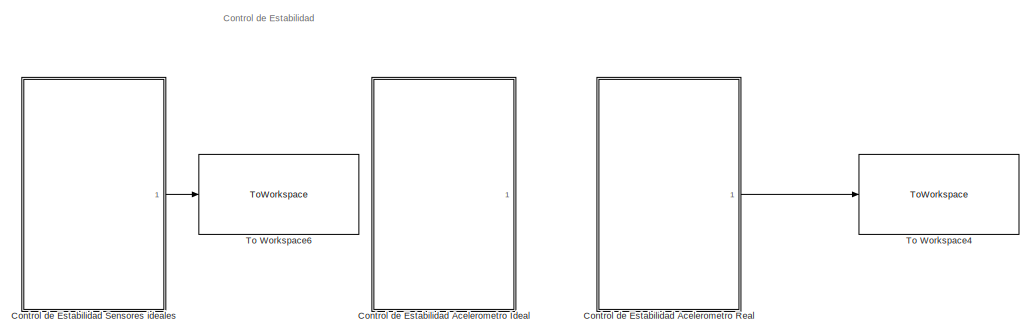
[diagram: root canvas - part 1/2, top left region]
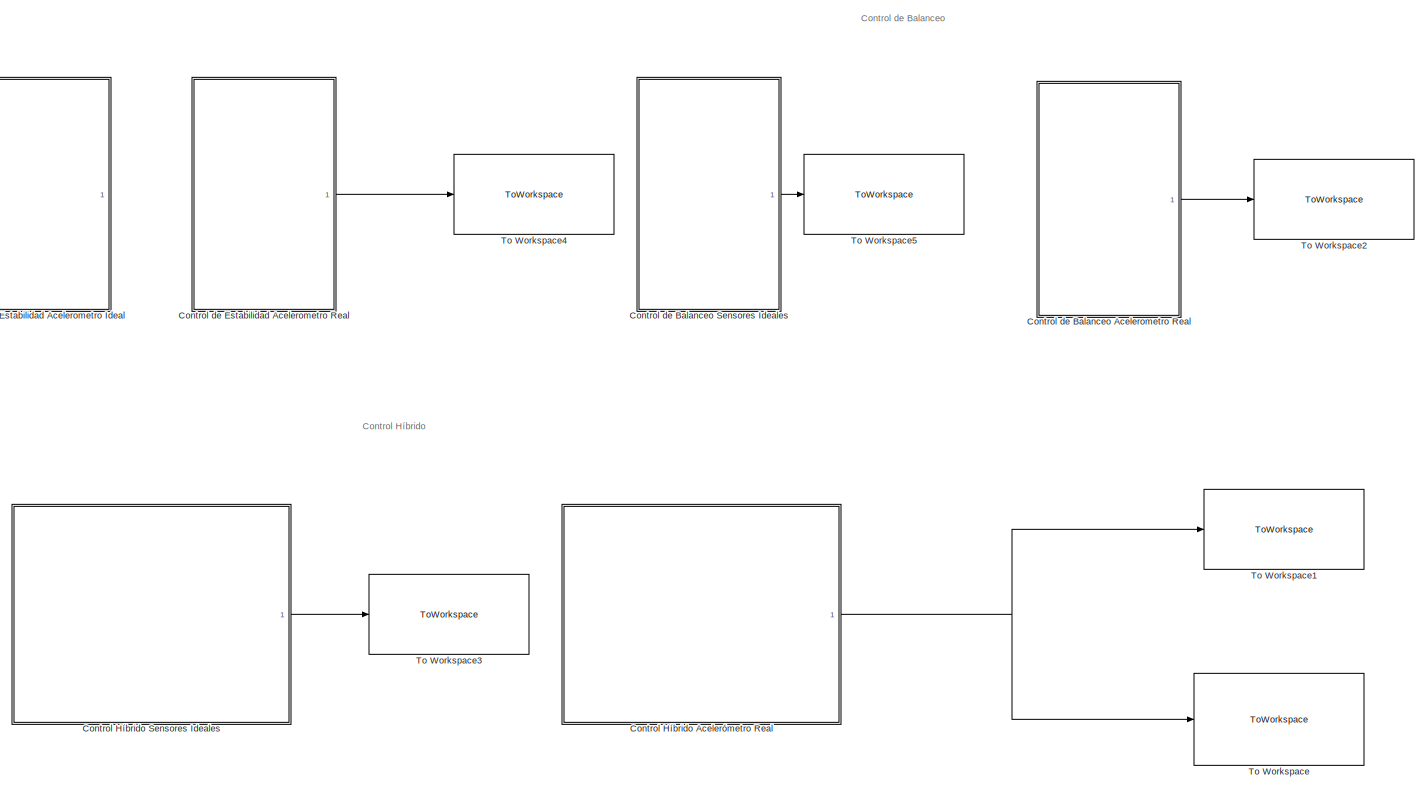
[diagram: root canvas - part 2/2, most of the canvas]
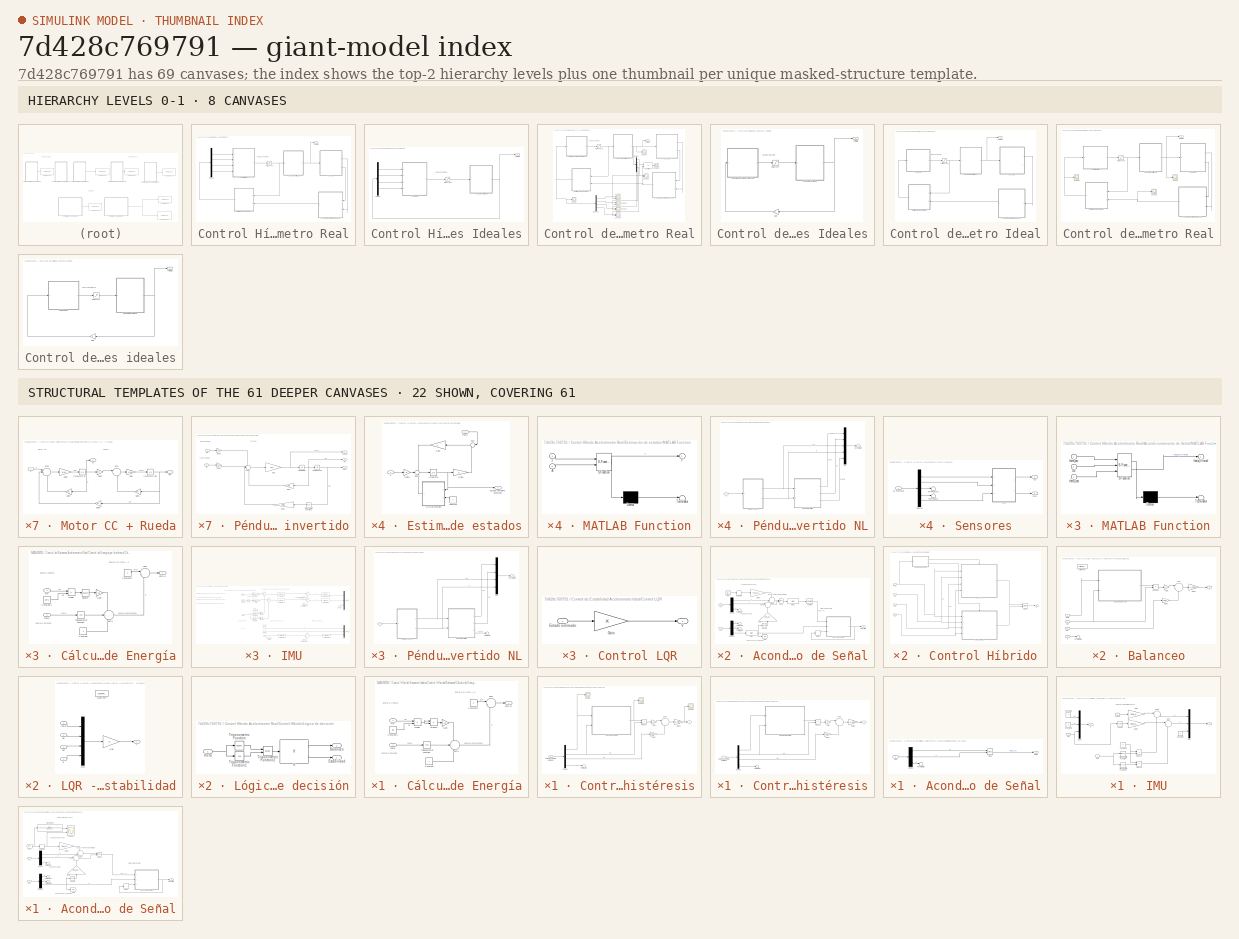
[diagram: thumbnail index - top-2 hierarchy levels (8 canvases) + 22 structural-template representatives of the remaining 61 canvases]
MODEL slx_7d428c769791
KIND model
CONFIG AbsTol = auto
CONFIG EnableMultiTasking = off
CONFIG FixedStep = 0.001
CONFIG MaxStep = 0.0001
CONFIG MinStep = auto
CONFIG RelTol = 1e-3
CONFIG SampleTimeConstraint = Unconstrained
CONFIG SolverName = VariableStepAuto
CONFIG StartTime = 0.0
CONFIG StopTime = 5
BLOCK [SubSystem] Control Híbrido Acelerómetro Real
  Ports = [0, 1]
  RequestExecContextInheritance = off
BLOCK [SubSystem] Control Híbrido Acelerómetro Real/Acondicionamiento de Señal
  Ports = [2, 1]
  RequestExecContextInheritance = off
BLOCK [Inport] Control Híbrido Acelerómetro Real/Acondicionamiento de Señal/Acc
  Port = 2
BLOCK [Trigonometry] Control Híbrido Acelerómetro Real/Acondicionamiento de Señal/Atan2
  Operator = atan2
  Ports = [2, 1]
BLOCK [Bias] Control Híbrido Acelerómetro Real/Acondicionamiento de Señal/Bias
  Bias = -gyro_bias
  SaturateOnIntegerOverflow = off
BLOCK [Bias] Control Híbrido Acelerómetro Real/Acondicionamiento de Señal/Bias1
  Bias = -acc_bias
  SaturateOnIntegerOverflow = off
BLOCK [Delay] Control Híbrido Acelerómetro Real/Acondicionamiento de Señal/Delay
  DelayLength = 1
  InitialCondition = x0_sw(1)
  InputPortMap = u0
  NameLocation = top
  Ports = [1, 1]
  SampleTime = 1/fs_IMU
BLOCK [Demux] Control Híbrido Acelerómetro Real/Acondicionamiento de Señal/Demux
  Outputs = 3
  Ports = [1, 3]
BLOCK [Demux] Control Híbrido Acelerómetro Real/Acondicionamiento de Señal/Demux1
  Outputs = 3
  Ports = [1, 3]
BLOCK [Derivative] Control Híbrido Acelerómetro Real/Acondicionamiento de Señal/Derivative
BLOCK [From] Control Híbrido Acelerómetro Real/Acondicionamiento de Señal/From
  GotoTag = Gz
BLOCK [Gain] Control Híbrido Acelerómetro Real/Acondicionamiento de Señal/Gain
  Gain = real_acc_height
  NameLocation = right
BLOCK [Gain] Control Híbrido Acelerómetro Real/Acondicionamiento de Señal/Gain3
  Gain = real_acc_height
BLOCK [Goto] Control Híbrido Acelerómetro Real/Acondicionamiento de Señal/Goto
  GotoTag = Gz
BLOCK [Inport] Control Híbrido Acelerómetro Real/Acondicionamiento de Señal/Gyro
BLOCK [SubSystem] Control Híbrido Acelerómetro Real/Acondicionamiento de Señal/MATLAB Function
  ErrorFcn = Stateflow.Translate.translate
  PermitHierarchicalResolution = ExplicitOnly
  Ports = [3, 1]
  RequestExecContextInheritance = off
  SFBlockType = MATLAB Function
  TreatAsAtomicUnit = on
BLOCK [Demux] Control Híbrido Acelerómetro Real/Acondicionamiento de Señal/MATLAB Function/ Demux 
  Outputs = 1
  Ports = [1, 1]
BLOCK [S-Function] Control Híbrido Acelerómetro Real/Acondicionamiento de Señal/MATLAB Function/ SFunction 
  EnableBusSupport = on
  FunctionName = sf_sfun
  PortCounts = [3 2]
  Ports = [3, 2]
  SFcnIsStateOwnerBlock = off
  SFunctionDeploymentMode = off
  Tag = Stateflow S-Function 6
BLOCK [Terminator] Control Híbrido Acelerómetro Real/Acondicionamiento de Señal/MATLAB Function/ Terminator 
BLOCK [Inport] Control Híbrido Acelerómetro Real/Acondicionamiento de Señal/MATLAB Function/Gz
  Port = 2
BLOCK [Inport] Control Híbrido Acelerómetro Real/Acondicionamiento de Señal/MATLAB Function/theta_acc
BLOCK [Outport] Control Híbrido Acelerómetro Real/Acondicionamiento de Señal/MATLAB Function/theta_filtered
BLOCK [Inport] Control Híbrido Acelerómetro Real/Acondicionamiento de Señal/MATLAB Function/theta_last
  Port = 3
BLOCK [Math] Control Híbrido Acelerómetro Real/Acondicionamiento de Señal/Square
  Operator = square
  Ports = [1, 1]
BLOCK [Sum] Control Híbrido Acelerómetro Real/Acondicionamiento de Señal/Sum
  Inputs = -+|
  Ports = [2, 1]
BLOCK [Sum] Control Híbrido Acelerómetro Real/Acondicionamiento de Señal/Sum1
  Inputs = |+-
  Ports = [2, 1]
BLOCK [Terminator] Control Híbrido Acelerómetro Real/Acondicionamiento de Señal/Terminator
BLOCK [Terminator] Control Híbrido Acelerómetro Real/Acondicionamiento de Señal/Terminator1
BLOCK [Terminator] Control Híbrido Acelerómetro Real/Acondicionamiento de Señal/Terminator2
BLOCK [Reference] Control Híbrido Acelerómetro Real/Acondicionamiento de Señal/Unwrap  REF=dspsigops/Unwrap
  Ports = [1, 1]
  SourceBlock = dspsigops/Unwrap
  SourceProductBaseCode = DS
  SourceType = Unwrap
  UserDataPersistent = on
BLOCK [Outport] Control Híbrido Acelerómetro Real/Acondicionamiento de Señal/theta_filter
BLOCK [SubSystem] Control Híbrido Acelerómetro Real/Control Híbrido
  Ports = [4, 1]
  RequestExecContextInheritance = off
BLOCK [SubSystem] Control Híbrido Acelerómetro Real/Control Híbrido/Balanceo
  Ports = [4, 1, 0, 0, 0, 0, 0, 1]
  RequestExecContextInheritance = off
BLOCK [ActionPort] Control Híbrido Acelerómetro Real/Control Híbrido/Balanceo/Action Port
  ActionPortLabel = if(u1 > 0.5 | u1 < -0.5)
BLOCK [SubSystem] Control Híbrido Acelerómetro Real/Control Híbrido/Balanceo/Cálculo de Energía
  Ports = [2, 1]
  RequestExecContextInheritance = off
BLOCK [Constant] Control Híbrido Acelerómetro Real/Control Híbrido/Balanceo/Cálculo de Energía/Constant
BLOCK [Constant] Control Híbrido Acelerómetro Real/Control Híbrido/Balanceo/Cálculo de Energía/Constant1
  Value = wn^2
BLOCK [Constant] Control Híbrido Acelerómetro Real/Control Híbrido/Balanceo/Cálculo de Energía/Constant2
  Value = 2
BLOCK [Product] Control Híbrido Acelerómetro Real/Control Híbrido/Balanceo/Cálculo de Energía/Divide
  Inputs = */
  Ports = [2, 1]
BLOCK [Outport] Control Híbrido Acelerómetro Real/Control Híbrido/Balanceo/Cálculo de Energía/Eref-E
BLOCK [Gain] Control Híbrido Acelerómetro Real/Control Híbrido/Balanceo/Cálculo de Energía/Gain
  Gain = 1/2
BLOCK [Math] Control Híbrido Acelerómetro Real/Control Híbrido/Balanceo/Cálculo de Energía/Square
  Operator = square
  Ports = [1, 1]
BLOCK [Sum] Control Híbrido Acelerómetro Real/Control Híbrido/Balanceo/Cálculo de Energía/Sum
  Inputs = |+-
  Ports = [2, 1]
BLOCK [Sum] Control Híbrido Acelerómetro Real/Control Híbrido/Balanceo/Cálculo de Energía/Sum1
  Inputs = +++
  Ports = [3, 1]
BLOCK [Trigonometry] Control Híbrido Acelerómetro Real/Control Híbrido/Balanceo/Cálculo de Energía/Trigonometric Function
  Operator = cos
  Ports = [1, 1]
BLOCK [Inport] Control Híbrido Acelerómetro Real/Control Híbrido/Balanceo/Cálculo de Energía/theta
BLOCK [Inport] Control Híbrido Acelerómetro Real/Control Híbrido/Balanceo/Cálculo de Energía/wp
  Port = 2
BLOCK [Gain] Control Híbrido Acelerómetro Real/Control Híbrido/Balanceo/Gain
BLOCK [Gain] Control Híbrido Acelerómetro Real/Control Híbrido/Balanceo/Gain1
  Gain = Ksw
BLOCK [Gain] Control Híbrido Acelerómetro Real/Control Híbrido/Balanceo/Gain2
  Gain = -V_nom
BLOCK [Product] Control Híbrido Acelerómetro Real/Control Híbrido/Balanceo/Product
  Ports = [2, 1]
BLOCK [Sum] Control Híbrido Acelerómetro Real/Control Híbrido/Balanceo/Sum
  Inputs = |+-
  Ports = [2, 1]
BLOCK [Terminator] Control Híbrido Acelerómetro Real/Control Híbrido/Balanceo/Terminator
BLOCK [Outport] Control Híbrido Acelerómetro Real/Control Híbrido/Balanceo/V
BLOCK [Inport] Control Híbrido Acelerómetro Real/Control Híbrido/Balanceo/ia
  OutDataTypeStr = double
  Port = 4
  PortDimensions = 1
  SignalType = real
  VarSizeSig = No
BLOCK [Inport] Control Híbrido Acelerómetro Real/Control Híbrido/Balanceo/theta
  OutDataTypeStr = double
  PortDimensions = 1
  SignalType = real
  VarSizeSig = No
BLOCK [Inport] Control Híbrido Acelerómetro Real/Control Híbrido/Balanceo/wm
  OutDataTypeStr = double
  Port = 3
  PortDimensions = 1
  SignalType = real
  VarSizeSig = No
BLOCK [Inport] Control Híbrido Acelerómetro Real/Control Híbrido/Balanceo/wp
  OutDataTypeStr = double
  Port = 2
  PortDimensions = 1
  SignalType = real
  VarSizeSig = No
BLOCK [SubSystem] Control Híbrido Acelerómetro Real/Control Híbrido/LQR - Estabilidad
  Ports = [4, 1, 0, 0, 0, 0, 0, 1]
  RequestExecContextInheritance = off
BLOCK [ActionPort] Control Híbrido Acelerómetro Real/Control Híbrido/LQR - Estabilidad/Action Port
  ActionPortLabel = else
BLOCK [Gain] Control Híbrido Acelerómetro Real/Control Híbrido/LQR - Estabilidad/Gain
  Gain = -K
  Multiplication = Matrix(K*u)
BLOCK [Mux] Control Híbrido Acelerómetro Real/Control Híbrido/LQR - Estabilidad/Mux
  DisplayOption = bar
  Ports = [4, 1]
BLOCK [Outport] Control Híbrido Acelerómetro Real/Control Híbrido/LQR - Estabilidad/V
BLOCK [Inport] Control Híbrido Acelerómetro Real/Control Híbrido/LQR - Estabilidad/ia
  Port = 4
BLOCK [Inport] Control Híbrido Acelerómetro Real/Control Híbrido/LQR - Estabilidad/theta
BLOCK [Inport] Control Híbrido Acelerómetro Real/Control Híbrido/LQR - Estabilidad/wm
  Port = 3
BLOCK [Inport] Control Híbrido Acelerómetro Real/Control Híbrido/LQR - Estabilidad/wp
  Port = 2
BLOCK [SubSystem] Control Híbrido Acelerómetro Real/Control Híbrido/Lógica de decisión
  Ports = [1, 2]
  RequestExecContextInheritance = off
BLOCK [Outport] Control Híbrido Acelerómetro Real/Control Híbrido/Lógica de decisión/Balanceo
BLOCK [Outport] Control Híbrido Acelerómetro Real/Control Híbrido/Lógica de decisión/Estabilidad
  Port = 2
BLOCK [If] Control Híbrido Acelerómetro Real/Control Híbrido/Lógica de decisión/If
  IfExpression = u1 > 0.5 | u1 < -0.5
  Ports = [1, 2]
BLOCK [Trigonometry] Control Híbrido Acelerómetro Real/Control Híbrido/Lógica de decisión/Trigonometric Function
  Ports = [1, 1]
BLOCK [Trigonometry] Control Híbrido Acelerómetro Real/Control Híbrido/Lógica de decisión/Trigonometric Function1
  Operator = cos
  Ports = [1, 1]
BLOCK [Trigonometry] Control Híbrido Acelerómetro Real/Control Híbrido/Lógica de decisión/Trigonometric Function2
  Operator = atan2
  Ports = [2, 1]
BLOCK [Inport] Control Híbrido Acelerómetro Real/Control Híbrido/Lógica de decisión/theta
BLOCK [Merge] Control Híbrido Acelerómetro Real/Control Híbrido/Merge
  Ports = [2, 1]
BLOCK [Outport] Control Híbrido Acelerómetro Real/Control Híbrido/V
BLOCK [Inport] Control Híbrido Acelerómetro Real/Control Híbrido/ia
  OutDataTypeStr = double
  Port = 4
  PortDimensions = 1
  SignalType = real
  VarSizeSig = No
BLOCK [Inport] Control Híbrido Acelerómetro Real/Control Híbrido/theta
  OutDataTypeStr = double
  PortDimensions = 1
  SignalType = real
  VarSizeSig = No
BLOCK [Inport] Control Híbrido Acelerómetro Real/Control Híbrido/wm
  OutDataTypeStr = double
  Port = 3
  PortDimensions = 1
  SignalType = real
  VarSizeSig = No
BLOCK [Inport] Control Híbrido Acelerómetro Real/Control Híbrido/wp
  OutDataTypeStr = double
  Port = 2
  PortDimensions = 1
  SignalType = real
  VarSizeSig = No
BLOCK [Demux] Control Híbrido Acelerómetro Real/Demux
  Ports = [1, 4]
BLOCK [SubSystem] Control Híbrido Acelerómetro Real/Estimación de estados
  Ports = [2, 1]
  RequestExecContextInheritance = off
BLOCK [Constant] Control Híbrido Acelerómetro Real/Estimación de estados/Constant
  Value = A
BLOCK [Outport] Control Híbrido Acelerómetro Real/Estimación de estados/Estado completo estimado
BLOCK [Gain] Control Híbrido Acelerómetro Real/Estimación de estados/Gain
  Gain = L
  Multiplication = Matrix(K*u)
BLOCK [Gain] Control Híbrido Acelerómetro Real/Estimación de estados/Gain1
  Gain = C
  Multiplication = Matrix(K*u)
BLOCK [Gain] Control Híbrido Acelerómetro Real/Estimación de estados/Gain3
  Gain = B
  Multiplication = Matrix(K*u)
BLOCK [Integrator] Control Híbrido Acelerómetro Real/Estimación de estados/Integrator
  InitialCondition = x0_sw
  Ports = [1, 1]
BLOCK [SubSystem] Control Híbrido Acelerómetro Real/Estimación de estados/MATLAB Function
  ErrorFcn = Stateflow.Translate.translate
  PermitHierarchicalResolution = ExplicitOnly
  Ports = [2, 1]
  RequestExecContextInheritance = off
  SFBlockType = MATLAB Function
  TreatAsAtomicUnit = on
BLOCK [Demux] Control Híbrido Acelerómetro Real/Estimación de estados/MATLAB Function/ Demux 
  Outputs = 1
  Ports = [1, 1]
BLOCK [S-Function] Control Híbrido Acelerómetro Real/Estimación de estados/MATLAB Function/ SFunction 
  EnableBusSupport = on
  FunctionName = sf_sfun
  PortCounts = [2 2]
  Ports = [2, 2]
  SFcnIsStateOwnerBlock = off
  SFunctionDeploymentMode = off
  Tag = Stateflow S-Function 7
BLOCK [Terminator] Control Híbrido Acelerómetro Real/Estimación de estados/MATLAB Function/ Terminator 
BLOCK [Inport] Control Híbrido Acelerómetro Real/Estimación de estados/MATLAB Function/A
  Port = 2
BLOCK [Outport] Control Híbrido Acelerómetro Real/Estimación de estados/MATLAB Function/F
BLOCK [Inport] Control Híbrido Acelerómetro Real/Estimación de estados/MATLAB Function/x
BLOCK [Sum] Control Híbrido Acelerómetro Real/Estimación de estados/Sum
  Inputs = |+-
  Ports = [2, 1]
BLOCK [Sum] Control Híbrido Acelerómetro Real/Estimación de estados/Sum1
  Inputs = +++
  Ports = [3, 1]
BLOCK [Inport] Control Híbrido Acelerómetro Real/Estimación de estados/V
BLOCK [Inport] Control Híbrido Acelerómetro Real/Estimación de estados/theta
  Port = 2
BLOCK [Outport] Control Híbrido Acelerómetro Real/FullState
BLOCK [SubSystem] Control Híbrido Acelerómetro Real/Péndulo invertido NL
  Ports = [1, 1]
  RequestExecContextInheritance = off
BLOCK [SubSystem] Control Híbrido Acelerómetro Real/Péndulo invertido NL/Motor CC + Rueda
  Ports = [1, 2]
  RequestExecContextInheritance = off
BLOCK [Gain] Control Híbrido Acelerómetro Real/Péndulo invertido NL/Motor CC + Rueda/Gain
  Gain = 1/Jw
BLOCK [Gain] Control Híbrido Acelerómetro Real/Péndulo invertido NL/Motor CC + Rueda/Gain1
  Gain = bm
BLOCK [Gain] Control Híbrido Acelerómetro Real/Péndulo invertido NL/Motor CC + Rueda/Gain2
  Gain = Kt
BLOCK [Gain] Control Híbrido Acelerómetro Real/Péndulo invertido NL/Motor CC + Rueda/Gain3
  Gain = 1/La
BLOCK [Gain] Control Híbrido Acelerómetro Real/Péndulo invertido NL/Motor CC + Rueda/Gain4
  Gain = Ra
BLOCK [Gain] Control Híbrido Acelerómetro Real/Péndulo invertido NL/Motor CC + Rueda/Gain5
  Gain = Ke
BLOCK [Integrator] Control Híbrido Acelerómetro Real/Péndulo invertido NL/Motor CC + Rueda/Integrator ia
  InitialCondition = x0_sw(4)
  Ports = [1, 1]
BLOCK [Integrator] Control Híbrido Acelerómetro Real/Péndulo invertido NL/Motor CC + Rueda/Integrator wm
  InitialCondition = x0_sw(3)
  Ports = [1, 1]
BLOCK [Sum] Control Híbrido Acelerómetro Real/Péndulo invertido NL/Motor CC + Rueda/Sum
  Inputs = |+-
  Ports = [2, 1]
BLOCK [Sum] Control Híbrido Acelerómetro Real/Péndulo invertido NL/Motor CC + Rueda/Sum1
  Inputs = |+--
  Ports = [3, 1]
BLOCK [Inport] Control Híbrido Acelerómetro Real/Péndulo invertido NL/Motor CC + Rueda/V
BLOCK [Outport] Control Híbrido Acelerómetro Real/Péndulo invertido NL/Motor CC + Rueda/ia
  Port = 2
BLOCK [Outport] Control Híbrido Acelerómetro Real/Péndulo invertido NL/Motor CC + Rueda/wm
BLOCK [Mux] Control Híbrido Acelerómetro Real/Péndulo invertido NL/Mux
  DisplayOption = bar
  Inputs = 5
  Ports = [5, 1]
BLOCK [Outport] Control Híbrido Acelerómetro Real/Péndulo invertido NL/NL Full State
BLOCK [SubSystem] Control Híbrido Acelerómetro Real/Péndulo invertido NL/Péndulo invertido
  Ports = [2, 3]
  RequestExecContextInheritance = off
BLOCK [Gain] Control Híbrido Acelerómetro Real/Péndulo invertido NL/Péndulo invertido/Gain
  Gain = 1/J1
BLOCK [Gain] Control Híbrido Acelerómetro Real/Péndulo invertido NL/Péndulo invertido/Gain1
  Gain = beta
BLOCK [Gain] Control Híbrido Acelerómetro Real/Péndulo invertido NL/Péndulo invertido/Gain2
  Gain = Kt
BLOCK [Gain] Control Híbrido Acelerómetro Real/Péndulo invertido NL/Péndulo invertido/Gain3
  Gain = bp
BLOCK [Gain] Control Híbrido Acelerómetro Real/Péndulo invertido NL/Péndulo invertido/Gain4
  Gain = bm
BLOCK [Integrator] Control Híbrido Acelerómetro Real/Péndulo invertido NL/Péndulo invertido/Integrator Theta
  InitialCondition = x0_sw(1)
  Ports = [1, 1]
  WrappedStateLowerValue = 0
  WrappedStateUpperValue = 2*pi
BLOCK [Integrator] Control Híbrido Acelerómetro Real/Péndulo invertido NL/Péndulo invertido/Integrator wp
  InitialCondition = x0_sw(2)
  Ports = [1, 1]
BLOCK [Sum] Control Híbrido Acelerómetro Real/Péndulo invertido NL/Péndulo invertido/Sum
  Inputs = +-+-
  Ports = [4, 1]
BLOCK [Trigonometry] Control Híbrido Acelerómetro Real/Péndulo invertido NL/Péndulo invertido/Trigonometric Function1
  Ports = [1, 1]
BLOCK [Outport] Control Híbrido Acelerómetro Real/Péndulo invertido NL/Péndulo invertido/d2theta
  Port = 3
BLOCK [Inport] Control Híbrido Acelerómetro Real/Péndulo invertido NL/Péndulo invertido/ia
  Port = 2
BLOCK [Outport] Control Híbrido Acelerómetro Real/Péndulo invertido NL/Péndulo invertido/theta
BLOCK [Inport] Control Híbrido Acelerómetro Real/Péndulo invertido NL/Péndulo invertido/wm
BLOCK [Outport] Control Híbrido Acelerómetro Real/Péndulo invertido NL/Péndulo invertido/wp
  Port = 2
BLOCK [Inport] Control Híbrido Acelerómetro Real/Péndulo invertido NL/V
BLOCK [SubSystem] Control Híbrido Acelerómetro Real/Sensores
  Ports = [1, 2]
  RequestExecContextInheritance = off
BLOCK [Outport] Control Híbrido Acelerómetro Real/Sensores/Acc
BLOCK [Demux] Control Híbrido Acelerómetro Real/Sensores/Demux
  Outputs = 5
  Ports = [1, 5]
BLOCK [Outport] Control Híbrido Acelerómetro Real/Sensores/Gyro
  Port = 2
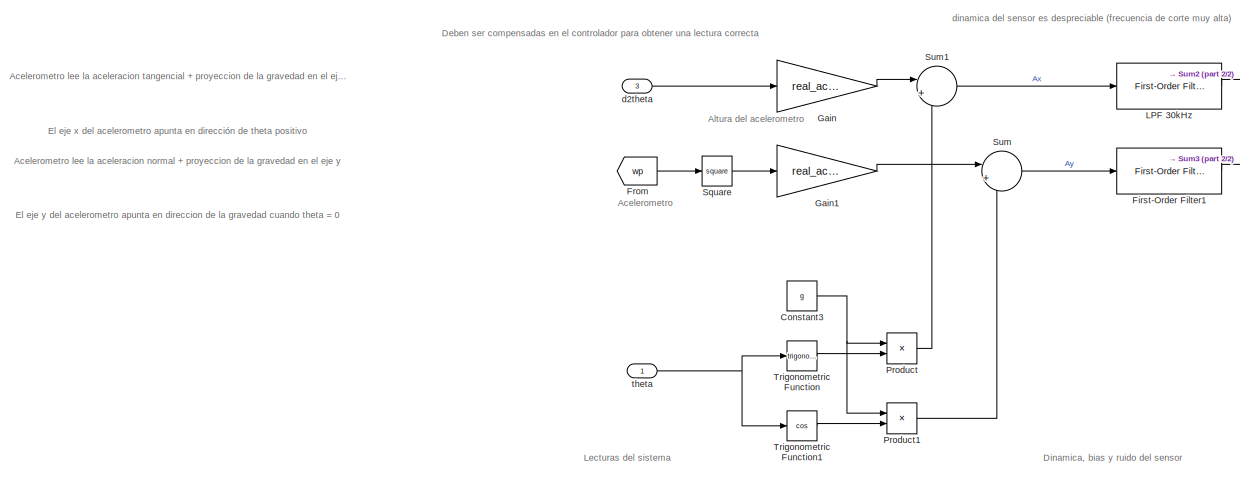
[diagram: Control Híbrido Acelerómetro Real/Sensores/IMU - part 1/2, top left region]
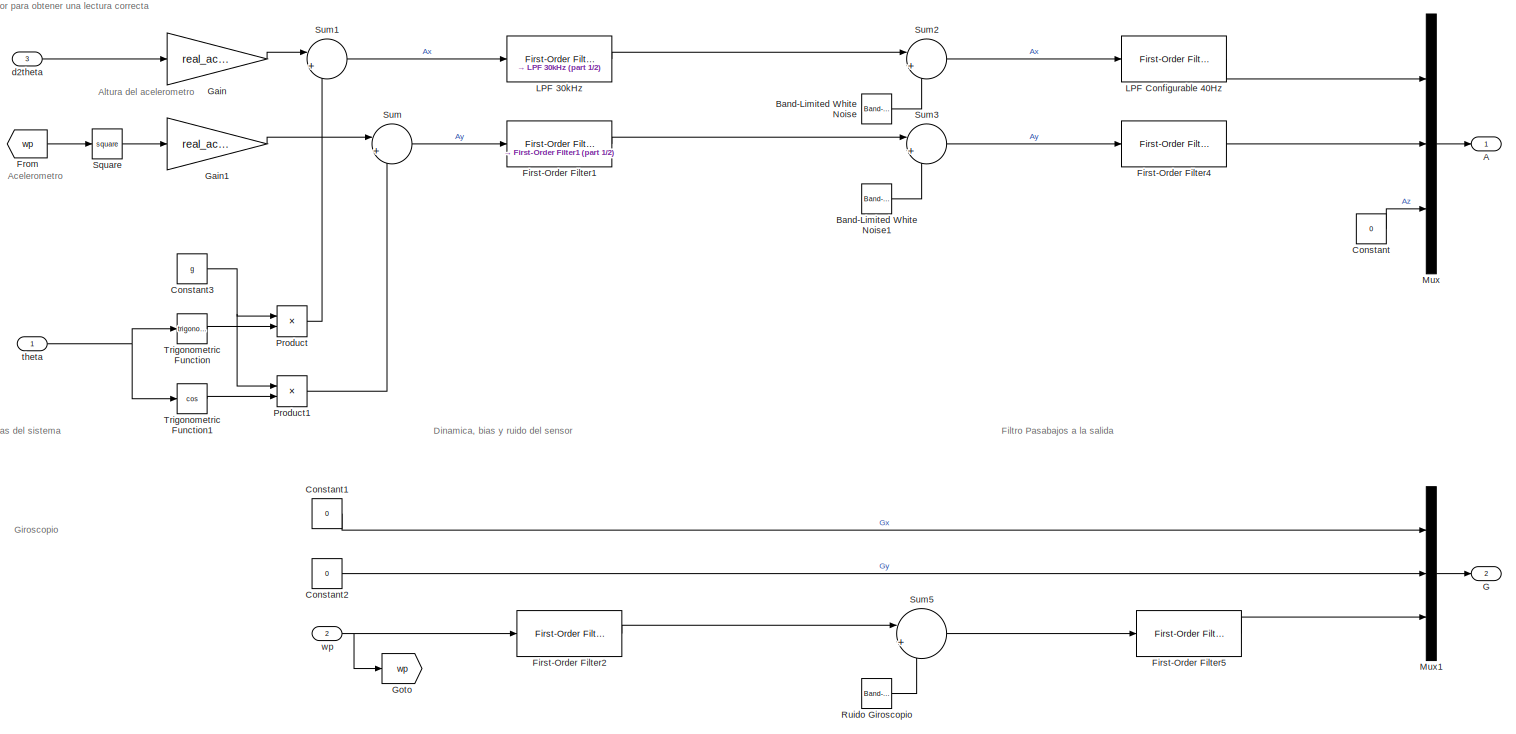
[diagram: Control Híbrido Acelerómetro Real/Sensores/IMU - part 2/2, center side, full height]
BLOCK [SubSystem] Control Híbrido Acelerómetro Real/Sensores/IMU
  Ports = [3, 2]
  RequestExecContextInheritance = off
BLOCK [Outport] Control Híbrido Acelerómetro Real/Sensores/IMU/A
BLOCK [Reference] Control Híbrido Acelerómetro Real/Sensores/IMU/Band-Limited White Noise  REF=simulink/Sources/Band-Limited
White Noise
  Ports = [0, 1]
  SourceBlock = simulink/Sources/Band-Limited\nWhite Noise
  SourceProductBaseCode = SL
  SourceType = Band-Limited White Noise.
BLOCK [Reference] Control Híbrido Acelerómetro Real/Sensores/IMU/Band-Limited White Noise1  REF=simulink/Sources/Band-Limited
White Noise
  Ports = [0, 1]
  SourceBlock = simulink/Sources/Band-Limited\nWhite Noise
  SourceProductBaseCode = SL
  SourceType = Band-Limited White Noise.
BLOCK [Constant] Control Híbrido Acelerómetro Real/Sensores/IMU/Constant
  Value = 0
BLOCK [Constant] Control Híbrido Acelerómetro Real/Sensores/IMU/Constant1
  Value = 0
BLOCK [Constant] Control Híbrido Acelerómetro Real/Sensores/IMU/Constant2
  Value = 0
BLOCK [Constant] Control Híbrido Acelerómetro Real/Sensores/IMU/Constant3
  Value = g
BLOCK [Reference] Control Híbrido Acelerómetro Real/Sensores/IMU/First-Order Filter1  REF=spsFirstOrderFilterLib/First-Order
Filter
  Ports = [1, 1]
  SourceBlock = spsFirstOrderFilterLib/First-Order\nFilter
  SourceProductBaseCode = PS
  SourceType = First-Order Filter
BLOCK [Reference] Control Híbrido Acelerómetro Real/Sensores/IMU/First-Order Filter2  REF=spsFirstOrderFilterLib/First-Order
Filter
  Ports = [1, 1]
  SourceBlock = spsFirstOrderFilterLib/First-Order\nFilter
  SourceProductBaseCode = PS
  SourceType = First-Order Filter
BLOCK [Reference] Control Híbrido Acelerómetro Real/Sensores/IMU/First-Order Filter4  REF=spsFirstOrderFilterLib/First-Order
Filter
  Ports = [1, 1]
  SourceBlock = spsFirstOrderFilterLib/First-Order\nFilter
  SourceProductBaseCode = PS
  SourceType = First-Order Filter
BLOCK [Reference] Control Híbrido Acelerómetro Real/Sensores/IMU/First-Order Filter5  REF=spsFirstOrderFilterLib/First-Order
Filter
  Ports = [1, 1]
  SourceBlock = spsFirstOrderFilterLib/First-Order\nFilter
  SourceProductBaseCode = PS
  SourceType = First-Order Filter
BLOCK [From] Control Híbrido Acelerómetro Real/Sensores/IMU/From
  GotoTag = wp
BLOCK [Outport] Control Híbrido Acelerómetro Real/Sensores/IMU/G
  Port = 2
BLOCK [Gain] Control Híbrido Acelerómetro Real/Sensores/IMU/Gain
  Gain = real_acc_height
BLOCK [Gain] Control Híbrido Acelerómetro Real/Sensores/IMU/Gain1
  Gain = real_acc_height
BLOCK [Goto] Control Híbrido Acelerómetro Real/Sensores/IMU/Goto
  GotoTag = wp
BLOCK [Reference] Control Híbrido Acelerómetro Real/Sensores/IMU/LPF 30kHz  REF=spsFirstOrderFilterLib/First-Order
Filter
  Ports = [1, 1]
  SourceBlock = spsFirstOrderFilterLib/First-Order\nFilter
  SourceProductBaseCode = PS
  SourceType = First-Order Filter
BLOCK [Reference] Control Híbrido Acelerómetro Real/Sensores/IMU/LPF Configurable 40Hz  REF=spsFirstOrderFilterLib/First-Order
Filter
  Ports = [1, 1]
  SourceBlock = spsFirstOrderFilterLib/First-Order\nFilter
  SourceProductBaseCode = PS
  SourceType = First-Order Filter
BLOCK [Mux] Control Híbrido Acelerómetro Real/Sensores/IMU/Mux
  DisplayOption = bar
  Inputs = 3
  Ports = [3, 1]
BLOCK [Mux] Control Híbrido Acelerómetro Real/Sensores/IMU/Mux1
  DisplayOption = bar
  Inputs = 3
  Ports = [3, 1]
BLOCK [Product] Control Híbrido Acelerómetro Real/Sensores/IMU/Product
  Ports = [2, 1]
BLOCK [Product] Control Híbrido Acelerómetro Real/Sensores/IMU/Product1
  Ports = [2, 1]
BLOCK [Reference] Control Híbrido Acelerómetro Real/Sensores/IMU/Ruido Giroscopio  REF=simulink/Sources/Band-Limited
White Noise
  Ports = [0, 1]
  SourceBlock = simulink/Sources/Band-Limited\nWhite Noise
  SourceProductBaseCode = SL
  SourceType = Band-Limited White Noise.
BLOCK [Math] Control Híbrido Acelerómetro Real/Sensores/IMU/Square
  Operator = square
  Ports = [1, 1]
BLOCK [Sum] Control Híbrido Acelerómetro Real/Sensores/IMU/Sum
  Inputs = |++
  Ports = [2, 1]
BLOCK [Sum] Control Híbrido Acelerómetro Real/Sensores/IMU/Sum1
  Inputs = |++
  Ports = [2, 1]
BLOCK [Sum] Control Híbrido Acelerómetro Real/Sensores/IMU/Sum2
  Inputs = |++
  Ports = [2, 1]
BLOCK [Sum] Control Híbrido Acelerómetro Real/Sensores/IMU/Sum3
  Inputs = |++
  Ports = [2, 1]
BLOCK [Sum] Control Híbrido Acelerómetro Real/Sensores/IMU/Sum5
  Inputs = |++
  Ports = [2, 1]
BLOCK [Trigonometry] Control Híbrido Acelerómetro Real/Sensores/IMU/Trigonometric Function
  Ports = [1, 1]
BLOCK [Trigonometry] Control Híbrido Acelerómetro Real/Sensores/IMU/Trigonometric Function1
  Operator = cos
  Ports = [1, 1]
BLOCK [Inport] Control Híbrido Acelerómetro Real/Sensores/IMU/d2theta
  Port = 3
BLOCK [Inport] Control Híbrido Acelerómetro Real/Sensores/IMU/theta
BLOCK [Inport] Control Híbrido Acelerómetro Real/Sensores/IMU/wp
  Port = 2
BLOCK [Inport] Control Híbrido Acelerómetro Real/Sensores/NL Full State
BLOCK [Terminator] Control Híbrido Acelerómetro Real/Sensores/Terminator
BLOCK [Terminator] Control Híbrido Acelerómetro Real/Sensores/Terminator1
BLOCK [Saturate] Control Híbrido Acelerómetro Real/Vmax = 24V
  LowerLimit = -V_nom
  UpperLimit = V_nom
BLOCK [SubSystem] Control Híbrido Sensores Ideales
  Ports = [0, 1]
  RequestExecContextInheritance = off
BLOCK [SubSystem] Control Híbrido Sensores Ideales/Control Híbrido
  Ports = [4, 1]
  RequestExecContextInheritance = off
BLOCK [SubSystem] Control Híbrido Sensores Ideales/Control Híbrido/Balanceo
  Ports = [4, 1, 0, 0, 0, 0, 0, 1]
  RequestExecContextInheritance = off
BLOCK [ActionPort] Control Híbrido Sensores Ideales/Control Híbrido/Balanceo/Action Port
  ActionPortLabel = if(u1 > 0.5 | u1 < -0.5)
BLOCK [SubSystem] Control Híbrido Sensores Ideales/Control Híbrido/Balanceo/Cálculo de Energía
  Ports = [2, 1]
  RequestExecContextInheritance = off
BLOCK [Constant] Control Híbrido Sensores Ideales/Control Híbrido/Balanceo/Cálculo de Energía/Constant
BLOCK [Constant] Control Híbrido Sensores Ideales/Control Híbrido/Balanceo/Cálculo de Energía/Constant1
  Value = wn
BLOCK [Constant] Control Híbrido Sensores Ideales/Control Híbrido/Balanceo/Cálculo de Energía/Constant2
  Value = 2
BLOCK [Product] Control Híbrido Sensores Ideales/Control Híbrido/Balanceo/Cálculo de Energía/Divide
  Inputs = */
  Ports = [2, 1]
BLOCK [Outport] Control Híbrido Sensores Ideales/Control Híbrido/Balanceo/Cálculo de Energía/Eref-E
BLOCK [Gain] Control Híbrido Sensores Ideales/Control Híbrido/Balanceo/Cálculo de Energía/Gain
  Gain = 1/2
BLOCK [Product] Control Híbrido Sensores Ideales/Control Híbrido/Balanceo/Cálculo de Energía/Product
  Ports = [2, 1]
BLOCK [Sum] Control Híbrido Sensores Ideales/Control Híbrido/Balanceo/Cálculo de Energía/Sum
  Inputs = |+-
  Ports = [2, 1]
BLOCK [Sum] Control Híbrido Sensores Ideales/Control Híbrido/Balanceo/Cálculo de Energía/Sum1
  Inputs = +++
  Ports = [3, 1]
BLOCK [Trigonometry] Control Híbrido Sensores Ideales/Control Híbrido/Balanceo/Cálculo de Energía/Trigonometric Function
  Operator = cos
  Ports = [1, 1]
BLOCK [Inport] Control Híbrido Sensores Ideales/Control Híbrido/Balanceo/Cálculo de Energía/theta
BLOCK [Inport] Control Híbrido Sensores Ideales/Control Híbrido/Balanceo/Cálculo de Energía/wp
  Port = 2
BLOCK [Gain] Control Híbrido Sensores Ideales/Control Híbrido/Balanceo/Gain
BLOCK [Gain] Control Híbrido Sensores Ideales/Control Híbrido/Balanceo/Gain1
  Gain = Ksw
BLOCK [Gain] Control Híbrido Sensores Ideales/Control Híbrido/Balanceo/Gain2
  Gain = -V_nom
BLOCK [Product] Control Híbrido Sensores Ideales/Control Híbrido/Balanceo/Product
  Ports = [2, 1]
BLOCK [Sum] Control Híbrido Sensores Ideales/Control Híbrido/Balanceo/Sum
  Inputs = |+-
  Ports = [2, 1]
BLOCK [Terminator] Control Híbrido Sensores Ideales/Control Híbrido/Balanceo/Terminator
BLOCK [Outport] Control Híbrido Sensores Ideales/Control Híbrido/Balanceo/V
BLOCK [Inport] Control Híbrido Sensores Ideales/Control Híbrido/Balanceo/ia
  OutDataTypeStr = double
  Port = 4
  PortDimensions = 1
  SignalType = real
  VarSizeSig = No
BLOCK [Inport] Control Híbrido Sensores Ideales/Control Híbrido/Balanceo/theta
  OutDataTypeStr = double
  PortDimensions = 1
  SignalType = real
  VarSizeSig = No
BLOCK [Inport] Control Híbrido Sensores Ideales/Control Híbrido/Balanceo/wm
  OutDataTypeStr = double
  Port = 3
  PortDimensions = 1
  SignalType = real
  VarSizeSig = No
BLOCK [Inport] Control Híbrido Sensores Ideales/Control Híbrido/Balanceo/wp
  OutDataTypeStr = double
  Port = 2
  PortDimensions = 1
  SignalType = real
  VarSizeSig = No
BLOCK [SubSystem] Control Híbrido Sensores Ideales/Control Híbrido/LQR - Estabilidad
  Ports = [4, 1, 0, 0, 0, 0, 0, 1]
  RequestExecContextInheritance = off
BLOCK [ActionPort] Control Híbrido Sensores Ideales/Control Híbrido/LQR - Estabilidad/Action Port
  ActionPortLabel = else
BLOCK [Gain] Control Híbrido Sensores Ideales/Control Híbrido/LQR - Estabilidad/Gain
  Gain = -K
  Multiplication = Matrix(K*u)
BLOCK [Mux] Control Híbrido Sensores Ideales/Control Híbrido/LQR - Estabilidad/Mux
  DisplayOption = bar
  Ports = [4, 1]
BLOCK [Outport] Control Híbrido Sensores Ideales/Control Híbrido/LQR - Estabilidad/V
BLOCK [Inport] Control Híbrido Sensores Ideales/Control Híbrido/LQR - Estabilidad/ia
  Port = 4
BLOCK [Inport] Control Híbrido Sensores Ideales/Control Híbrido/LQR - Estabilidad/theta
BLOCK [Inport] Control Híbrido Sensores Ideales/Control Híbrido/LQR - Estabilidad/wm
  Port = 3
BLOCK [Inport] Control Híbrido Sensores Ideales/Control Híbrido/LQR - Estabilidad/wp
  Port = 2
BLOCK [SubSystem] Control Híbrido Sensores Ideales/Control Híbrido/Lógica de decisión
  Ports = [1, 2]
  RequestExecContextInheritance = off
BLOCK [Outport] Control Híbrido Sensores Ideales/Control Híbrido/Lógica de decisión/Balanceo
BLOCK [Outport] Control Híbrido Sensores Ideales/Control Híbrido/Lógica de decisión/Estabilidad
  Port = 2
BLOCK [If] Control Híbrido Sensores Ideales/Control Híbrido/Lógica de decisión/If
  IfExpression = u1 > 0.5 | u1 < -0.5
  Ports = [1, 2]
BLOCK [Trigonometry] Control Híbrido Sensores Ideales/Control Híbrido/Lógica de decisión/Trigonometric Function
  Ports = [1, 1]
BLOCK [Trigonometry] Control Híbrido Sensores Ideales/Control Híbrido/Lógica de decisión/Trigonometric Function1
  Operator = cos
  Ports = [1, 1]
BLOCK [Trigonometry] Control Híbrido Sensores Ideales/Control Híbrido/Lógica de decisión/Trigonometric Function2
  Operator = atan2
  Ports = [2, 1]
BLOCK [Inport] Control Híbrido Sensores Ideales/Control Híbrido/Lógica de decisión/theta
BLOCK [Merge] Control Híbrido Sensores Ideales/Control Híbrido/Merge
  Ports = [2, 1]
BLOCK [Outport] Control Híbrido Sensores Ideales/Control Híbrido/V
BLOCK [Inport] Control Híbrido Sensores Ideales/Control Híbrido/ia
  OutDataTypeStr = double
  Port = 4
  PortDimensions = 1
  SignalType = real
  VarSizeSig = No
BLOCK [Inport] Control Híbrido Sensores Ideales/Control Híbrido/theta
  OutDataTypeStr = double
  PortDimensions = 1
  SignalType = real
  VarSizeSig = No
BLOCK [Inport] Control Híbrido Sensores Ideales/Control Híbrido/wm
  OutDataTypeStr = double
  Port = 3
  PortDimensions = 1
  SignalType = real
  VarSizeSig = No
BLOCK [Inport] Control Híbrido Sensores Ideales/Control Híbrido/wp
  OutDataTypeStr = double
  Port = 2
  PortDimensions = 1
  SignalType = real
  VarSizeSig = No
BLOCK [Demux] Control Híbrido Sensores Ideales/Demux
  Ports = [1, 4]
BLOCK [Outport] Control Híbrido Sensores Ideales/FullState
BLOCK [SubSystem] Control Híbrido Sensores Ideales/Péndulo invertido NL
  Ports = [1, 1]
  RequestExecContextInheritance = off
BLOCK [SubSystem] Control Híbrido Sensores Ideales/Péndulo invertido NL/Motor CC + Rueda
  Ports = [1, 2]
  RequestExecContextInheritance = off
BLOCK [Gain] Control Híbrido Sensores Ideales/Péndulo invertido NL/Motor CC + Rueda/Gain
  Gain = 1/Jw
BLOCK [Gain] Control Híbrido Sensores Ideales/Péndulo invertido NL/Motor CC + Rueda/Gain1
  Gain = bm
BLOCK [Gain] Control Híbrido Sensores Ideales/Péndulo invertido NL/Motor CC + Rueda/Gain2
  Gain = Kt
BLOCK [Gain] Control Híbrido Sensores Ideales/Péndulo invertido NL/Motor CC + Rueda/Gain3
  Gain = 1/La
BLOCK [Gain] Control Híbrido Sensores Ideales/Péndulo invertido NL/Motor CC + Rueda/Gain4
  Gain = Ra
BLOCK [Gain] Control Híbrido Sensores Ideales/Péndulo invertido NL/Motor CC + Rueda/Gain5
  Gain = Ke
BLOCK [Integrator] Control Híbrido Sensores Ideales/Péndulo invertido NL/Motor CC + Rueda/Integrator ia
  InitialCondition = x0_sw(4)
  Ports = [1, 1]
BLOCK [Integrator] Control Híbrido Sensores Ideales/Péndulo invertido NL/Motor CC + Rueda/Integrator wm
  InitialCondition = x0_sw(3)
  Ports = [1, 1]
BLOCK [Sum] Control Híbrido Sensores Ideales/Péndulo invertido NL/Motor CC + Rueda/Sum
  Inputs = |+-
  Ports = [2, 1]
BLOCK [Sum] Control Híbrido Sensores Ideales/Péndulo invertido NL/Motor CC + Rueda/Sum1
  Inputs = |+--
  Ports = [3, 1]
BLOCK [Inport] Control Híbrido Sensores Ideales/Péndulo invertido NL/Motor CC + Rueda/V
BLOCK [Outport] Control Híbrido Sensores Ideales/Péndulo invertido NL/Motor CC + Rueda/ia
  Port = 2
BLOCK [Outport] Control Híbrido Sensores Ideales/Péndulo invertido NL/Motor CC + Rueda/wm
BLOCK [Mux] Control Híbrido Sensores Ideales/Péndulo invertido NL/Mux
  DisplayOption = bar
  Ports = [4, 1]
BLOCK [Outport] Control Híbrido Sensores Ideales/Péndulo invertido NL/NL Full State
BLOCK [SubSystem] Control Híbrido Sensores Ideales/Péndulo invertido NL/Péndulo invertido
  Ports = [2, 3]
  RequestExecContextInheritance = off
BLOCK [Gain] Control Híbrido Sensores Ideales/Péndulo invertido NL/Péndulo invertido/Gain
  Gain = 1/J1
BLOCK [Gain] Control Híbrido Sensores Ideales/Péndulo invertido NL/Péndulo invertido/Gain1
  Gain = beta
BLOCK [Gain] Control Híbrido Sensores Ideales/Péndulo invertido NL/Péndulo invertido/Gain2
  Gain = Kt
BLOCK [Gain] Control Híbrido Sensores Ideales/Péndulo invertido NL/Péndulo invertido/Gain3
  Gain = bp
BLOCK [Gain] Control Híbrido Sensores Ideales/Péndulo invertido NL/Péndulo invertido/Gain4
  Gain = bm
BLOCK [Integrator] Control Híbrido Sensores Ideales/Péndulo invertido NL/Péndulo invertido/Integrator Theta
  InitialCondition = x0_sw(1)
  Ports = [1, 1]
  WrappedStateLowerValue = 0
  WrappedStateUpperValue = 2*pi
BLOCK [Integrator] Control Híbrido Sensores Ideales/Péndulo invertido NL/Péndulo invertido/Integrator wp
  InitialCondition = x0_sw(2)
  Ports = [1, 1]
BLOCK [Sum] Control Híbrido Sensores Ideales/Péndulo invertido NL/Péndulo invertido/Sum
  Inputs = +-+-
  Ports = [4, 1]
BLOCK [Trigonometry] Control Híbrido Sensores Ideales/Péndulo invertido NL/Péndulo invertido/Trigonometric Function1
  Ports = [1, 1]
BLOCK [Outport] Control Híbrido Sensores Ideales/Péndulo invertido NL/Péndulo invertido/d2theta
  Port = 3
BLOCK [Inport] Control Híbrido Sensores Ideales/Péndulo invertido NL/Péndulo invertido/ia
  Port = 2
BLOCK [Outport] Control Híbrido Sensores Ideales/Péndulo invertido NL/Péndulo invertido/theta
BLOCK [Inport] Control Híbrido Sensores Ideales/Péndulo invertido NL/Péndulo invertido/wm
BLOCK [Outport] Control Híbrido Sensores Ideales/Péndulo invertido NL/Péndulo invertido/wp
  Port = 2
BLOCK [Terminator] Control Híbrido Sensores Ideales/Péndulo invertido NL/Terminator
BLOCK [Inport] Control Híbrido Sensores Ideales/Péndulo invertido NL/V
BLOCK [Saturate] Control Híbrido Sensores Ideales/Vmax = 24V
  LowerLimit = -V_nom
  UpperLimit = V_nom
BLOCK [SubSystem] Control de Balanceo Acelerometro Real
  Ports = [0, 1]
  RequestExecContextInheritance = off
BLOCK [SubSystem] Control de Balanceo Acelerometro Real/Acondicionamiento de Señal
  Ports = [2, 1]
  RequestExecContextInheritance = off
BLOCK [Inport] Control de Balanceo Acelerometro Real/Acondicionamiento de Señal/Acc
  Port = 2
BLOCK [Trigonometry] Control de Balanceo Acelerometro Real/Acondicionamiento de Señal/Atan2
  Operator = atan2
  Ports = [2, 1]
BLOCK [Bias] Control de Balanceo Acelerometro Real/Acondicionamiento de Señal/Bias
  Bias = -gyro_bias
  SaturateOnIntegerOverflow = off
BLOCK [Bias] Control de Balanceo Acelerometro Real/Acondicionamiento de Señal/Bias1
  Bias = -acc_bias
  SaturateOnIntegerOverflow = off
BLOCK [Delay] Control de Balanceo Acelerometro Real/Acondicionamiento de Señal/Delay
  DelayLength = 1
  InitialCondition = x0_sw(1)
  InputPortMap = u0
  NameLocation = top
  Ports = [1, 1]
  SampleTime = 1/fs_IMU
BLOCK [Demux] Control de Balanceo Acelerometro Real/Acondicionamiento de Señal/Demux
  Outputs = 3
  Ports = [1, 3]
BLOCK [Demux] Control de Balanceo Acelerometro Real/Acondicionamiento de Señal/Demux1
  Outputs = 3
  Ports = [1, 3]
BLOCK [Derivative] Control de Balanceo Acelerometro Real/Acondicionamiento de Señal/Derivative
BLOCK [From] Control de Balanceo Acelerometro Real/Acondicionamiento de Señal/From
  GotoTag = Gz
BLOCK [Gain] Control de Balanceo Acelerometro Real/Acondicionamiento de Señal/Gain
  Gain = real_acc_height
  NameLocation = right
BLOCK [Gain] Control de Balanceo Acelerometro Real/Acondicionamiento de Señal/Gain3
  Gain = real_acc_height
BLOCK [Goto] Control de Balanceo Acelerometro Real/Acondicionamiento de Señal/Goto
  GotoTag = Gz
BLOCK [Inport] Control de Balanceo Acelerometro Real/Acondicionamiento de Señal/Gyro
BLOCK [SubSystem] Control de Balanceo Acelerometro Real/Acondicionamiento de Señal/MATLAB Function
  ErrorFcn = Stateflow.Translate.translate
  PermitHierarchicalResolution = ExplicitOnly
  Ports = [3, 1]
  RequestExecContextInheritance = off
  SFBlockType = MATLAB Function
  TreatAsAtomicUnit = on
BLOCK [Demux] Control de Balanceo Acelerometro Real/Acondicionamiento de Señal/MATLAB Function/ Demux 
  Outputs = 1
  Ports = [1, 1]
BLOCK [S-Function] Control de Balanceo Acelerometro Real/Acondicionamiento de Señal/MATLAB Function/ SFunction 
  EnableBusSupport = on
  FunctionName = sf_sfun
  PortCounts = [3 2]
  Ports = [3, 2]
  SFcnIsStateOwnerBlock = off
  SFunctionDeploymentMode = off
  Tag = Stateflow S-Function 3
BLOCK [Terminator] Control de Balanceo Acelerometro Real/Acondicionamiento de Señal/MATLAB Function/ Terminator 
BLOCK [Inport] Control de Balanceo Acelerometro Real/Acondicionamiento de Señal/MATLAB Function/Gz
  Port = 2
BLOCK [Inport] Control de Balanceo Acelerometro Real/Acondicionamiento de Señal/MATLAB Function/theta_acc
BLOCK [Outport] Control de Balanceo Acelerometro Real/Acondicionamiento de Señal/MATLAB Function/theta_filtered
BLOCK [Inport] Control de Balanceo Acelerometro Real/Acondicionamiento de Señal/MATLAB Function/theta_last
  Port = 3
BLOCK [Math] Control de Balanceo Acelerometro Real/Acondicionamiento de Señal/Square
  Operator = square
  Ports = [1, 1]
BLOCK [Sum] Control de Balanceo Acelerometro Real/Acondicionamiento de Señal/Sum
  Inputs = -+|
  Ports = [2, 1]
BLOCK [Sum] Control de Balanceo Acelerometro Real/Acondicionamiento de Señal/Sum1
  Inputs = |+-
  Ports = [2, 1]
BLOCK [Terminator] Control de Balanceo Acelerometro Real/Acondicionamiento de Señal/Terminator
BLOCK [Terminator] Control de Balanceo Acelerometro Real/Acondicionamiento de Señal/Terminator1
BLOCK [Terminator] Control de Balanceo Acelerometro Real/Acondicionamiento de Señal/Terminator2
BLOCK [Reference] Control de Balanceo Acelerometro Real/Acondicionamiento de Señal/Unwrap  REF=dspsigops/Unwrap
  Ports = [1, 1]
  SourceBlock = dspsigops/Unwrap
  SourceProductBaseCode = DS
  SourceType = Unwrap
  UserDataPersistent = on
BLOCK [Outport] Control de Balanceo Acelerometro Real/Acondicionamiento de Señal/theta_filter
BLOCK [SubSystem] Control de Balanceo Acelerometro Real/Control de Energía por histéresis
  Ports = [1, 1]
  RequestExecContextInheritance = off
BLOCK [SubSystem] Control de Balanceo Acelerometro Real/Control de Energía por histéresis/Cálculo de Energía
  Ports = [2, 1]
  RequestExecContextInheritance = off
BLOCK [Constant] Control de Balanceo Acelerometro Real/Control de Energía por histéresis/Cálculo de Energía/Constant
BLOCK [Constant] Control de Balanceo Acelerometro Real/Control de Energía por histéresis/Cálculo de Energía/Constant1
  Value = wn^2
BLOCK [Constant] Control de Balanceo Acelerometro Real/Control de Energía por histéresis/Cálculo de Energía/Constant2
  Value = 2
BLOCK [Product] Control de Balanceo Acelerometro Real/Control de Energía por histéresis/Cálculo de Energía/Divide
  Inputs = */
  Ports = [2, 1]
BLOCK [Outport] Control de Balanceo Acelerometro Real/Control de Energía por histéresis/Cálculo de Energía/Eref-E
BLOCK [Gain] Control de Balanceo Acelerometro Real/Control de Energía por histéresis/Cálculo de Energía/Gain
  Gain = 1/2
BLOCK [Math] Control de Balanceo Acelerometro Real/Control de Energía por histéresis/Cálculo de Energía/Square
  Operator = square
  Ports = [1, 1]
BLOCK [Sum] Control de Balanceo Acelerometro Real/Control de Energía por histéresis/Cálculo de Energía/Sum
  Inputs = |+-
  Ports = [2, 1]
BLOCK [Sum] Control de Balanceo Acelerometro Real/Control de Energía por histéresis/Cálculo de Energía/Sum1
  Inputs = +++
  Ports = [3, 1]
BLOCK [Trigonometry] Control de Balanceo Acelerometro Real/Control de Energía por histéresis/Cálculo de Energía/Trigonometric Function
  Operator = cos
  Ports = [1, 1]
BLOCK [Inport] Control de Balanceo Acelerometro Real/Control de Energía por histéresis/Cálculo de Energía/theta
BLOCK [Inport] Control de Balanceo Acelerometro Real/Control de Energía por histéresis/Cálculo de Energía/wp
  Port = 2
BLOCK [Demux] Control de Balanceo Acelerometro Real/Control de Energía por histéresis/Demux
  Ports = [1, 4]
BLOCK [Inport] Control de Balanceo Acelerometro Real/Control de Energía por histéresis/Estado completo estimado
BLOCK [Gain] Control de Balanceo Acelerometro Real/Control de Energía por histéresis/Gain
BLOCK [Gain] Control de Balanceo Acelerometro Real/Control de Energía por histéresis/Gain1
  Gain = Ksw
BLOCK [Gain] Control de Balanceo Acelerometro Real/Control de Energía por histéresis/Gain2
  Gain = -V_nom
BLOCK [Product] Control de Balanceo Acelerometro Real/Control de Energía por histéresis/Product
  Ports = [2, 1]
BLOCK [Scope] Control de Balanceo Acelerometro Real/Control de Energía por histéresis/Scope
  Floating = off
  NumInputPorts = 1
  Ports = [1]
  ScopeSpecificationString = Simulink.scopes.TimeScopeBlockCfg('CurrentConfiguration', extmgr.ConfigurationSet(extmgr.Configuration('Core','General UI',true),extmgr.Configuration('Core','Source UI',true),extmgr.Configuration('Sources','WiredSimulink',true,'DataLoggingVariableName','ScopeData1'),extmgr.Configuration('Visuals','Time Domain',true,'SerializedDisplays',{struct('MinYLimReal','2.73558','MaxYLimReal','6.79567','YLabe...<+1483ch>
BLOCK [Scope] Control de Balanceo Acelerometro Real/Control de Energía por histéresis/Scope1
  Floating = off
  NumInputPorts = 1
  Ports = [1]
  ScopeSpecificationString = Simulink.scopes.TimeScopeBlockCfg('CurrentConfiguration', extmgr.ConfigurationSet(extmgr.Configuration('Core','General UI',true),extmgr.Configuration('Core','Source UI',true),extmgr.Configuration('Sources','WiredSimulink',true,'DataLoggingVariableName','ScopeData2'),extmgr.Configuration('Visuals','Time Domain',true,'SerializedDisplays',{struct('MinYLimReal','-2.38285','MaxYLimReal','2.48698','YLab...<+1496ch>
BLOCK [Scope] Control de Balanceo Acelerometro Real/Control de Energía por histéresis/Scope2
  Floating = off
  NumInputPorts = 1
  Ports = [1]
  ScopeSpecificationString = Simulink.scopes.TimeScopeBlockCfg('CurrentConfiguration', extmgr.ConfigurationSet(extmgr.Configuration('Core','General UI',true),extmgr.Configuration('Core','Source UI',true),extmgr.Configuration('Sources','WiredSimulink',true,'DataLoggingVariableName','ScopeData3'),extmgr.Configuration('Visuals','Time Domain',true,'SerializedDisplays',{struct('MinYLimReal','-761.14954','MaxYLimReal','1776.71963',...<+1417ch>
BLOCK [Sum] Control de Balanceo Acelerometro Real/Control de Energía por histéresis/Sum
  Inputs = |+-
  Ports = [2, 1]
BLOCK [Terminator] Control de Balanceo Acelerometro Real/Control de Energía por histéresis/Terminator
BLOCK [Outport] Control de Balanceo Acelerometro Real/Control de Energía por histéresis/V
BLOCK [Demux] Control de Balanceo Acelerometro Real/Demux
  Outputs = 5
  Ports = [1, 5]
BLOCK [Demux] Control de Balanceo Acelerometro Real/Demux1
  Ports = [1, 4]
BLOCK [SubSystem] Control de Balanceo Acelerometro Real/Estimación de estados
  Ports = [2, 1]
  RequestExecContextInheritance = off
BLOCK [Constant] Control de Balanceo Acelerometro Real/Estimación de estados/Constant
  Value = A
BLOCK [Outport] Control de Balanceo Acelerometro Real/Estimación de estados/Estado completo estimado
BLOCK [Gain] Control de Balanceo Acelerometro Real/Estimación de estados/Gain
  Gain = L
  Multiplication = Matrix(K*u)
BLOCK [Gain] Control de Balanceo Acelerometro Real/Estimación de estados/Gain1
  Gain = C
  Multiplication = Matrix(K*u)
BLOCK [Gain] Control de Balanceo Acelerometro Real/Estimación de estados/Gain3
  Gain = B
  Multiplication = Matrix(K*u)
BLOCK [Integrator] Control de Balanceo Acelerometro Real/Estimación de estados/Integrator
  InitialCondition = x0_sw
  Ports = [1, 1]
BLOCK [SubSystem] Control de Balanceo Acelerometro Real/Estimación de estados/MATLAB Function
  ErrorFcn = Stateflow.Translate.translate
  PermitHierarchicalResolution = ExplicitOnly
  Ports = [2, 1]
  RequestExecContextInheritance = off
  SFBlockType = MATLAB Function
  TreatAsAtomicUnit = on
BLOCK [Demux] Control de Balanceo Acelerometro Real/Estimación de estados/MATLAB Function/ Demux 
  Outputs = 1
  Ports = [1, 1]
BLOCK [S-Function] Control de Balanceo Acelerometro Real/Estimación de estados/MATLAB Function/ SFunction 
  EnableBusSupport = on
  FunctionName = sf_sfun
  PortCounts = [2 2]
  Ports = [2, 2]
  SFcnIsStateOwnerBlock = off
  SFunctionDeploymentMode = off
  Tag = Stateflow S-Function 1
BLOCK [Terminator] Control de Balanceo Acelerometro Real/Estimación de estados/MATLAB Function/ Terminator 
BLOCK [Inport] Control de Balanceo Acelerometro Real/Estimación de estados/MATLAB Function/A
  Port = 2
BLOCK [Outport] Control de Balanceo Acelerometro Real/Estimación de estados/MATLAB Function/F
BLOCK [Inport] Control de Balanceo Acelerometro Real/Estimación de estados/MATLAB Function/x
BLOCK [Sum] Control de Balanceo Acelerometro Real/Estimación de estados/Sum
  Inputs = |+-
  Ports = [2, 1]
BLOCK [Sum] Control de Balanceo Acelerometro Real/Estimación de estados/Sum1
  Inputs = +++
  Ports = [3, 1]
BLOCK [Inport] Control de Balanceo Acelerometro Real/Estimación de estados/V
BLOCK [Inport] Control de Balanceo Acelerometro Real/Estimación de estados/theta
  Port = 2
BLOCK [Outport] Control de Balanceo Acelerometro Real/FullState
BLOCK [SubSystem] Control de Balanceo Acelerometro Real/Péndulo invertido NL
  Ports = [1, 1]
  RequestExecContextInheritance = off
BLOCK [SubSystem] Control de Balanceo Acelerometro Real/Péndulo invertido NL/Motor CC + Rueda
  Ports = [1, 2]
  RequestExecContextInheritance = off
BLOCK [Gain] Control de Balanceo Acelerometro Real/Péndulo invertido NL/Motor CC + Rueda/Gain
  Gain = 1/Jw
BLOCK [Gain] Control de Balanceo Acelerometro Real/Péndulo invertido NL/Motor CC + Rueda/Gain1
  Gain = bm
BLOCK [Gain] Control de Balanceo Acelerometro Real/Péndulo invertido NL/Motor CC + Rueda/Gain2
  Gain = Kt
BLOCK [Gain] Control de Balanceo Acelerometro Real/Péndulo invertido NL/Motor CC + Rueda/Gain3
  Gain = 1/La
BLOCK [Gain] Control de Balanceo Acelerometro Real/Péndulo invertido NL/Motor CC + Rueda/Gain4
  Gain = Ra
BLOCK [Gain] Control de Balanceo Acelerometro Real/Péndulo invertido NL/Motor CC + Rueda/Gain5
  Gain = Ke
BLOCK [Integrator] Control de Balanceo Acelerometro Real/Péndulo invertido NL/Motor CC + Rueda/Integrator ia
  InitialCondition = x0_sw(4)
  Ports = [1, 1]
BLOCK [Integrator] Control de Balanceo Acelerometro Real/Péndulo invertido NL/Motor CC + Rueda/Integrator wm
  InitialCondition = x0_sw(3)
  Ports = [1, 1]
BLOCK [Sum] Control de Balanceo Acelerometro Real/Péndulo invertido NL/Motor CC + Rueda/Sum
  Inputs = |+-
  Ports = [2, 1]
BLOCK [Sum] Control de Balanceo Acelerometro Real/Péndulo invertido NL/Motor CC + Rueda/Sum1
  Inputs = |+--
  Ports = [3, 1]
BLOCK [Inport] Control de Balanceo Acelerometro Real/Péndulo invertido NL/Motor CC + Rueda/V
BLOCK [Outport] Control de Balanceo Acelerometro Real/Péndulo invertido NL/Motor CC + Rueda/ia
  Port = 2
BLOCK [Outport] Control de Balanceo Acelerometro Real/Péndulo invertido NL/Motor CC + Rueda/wm
BLOCK [Mux] Control de Balanceo Acelerometro Real/Péndulo invertido NL/Mux
  DisplayOption = bar
  Inputs = 5
  Ports = [5, 1]
BLOCK [Outport] Control de Balanceo Acelerometro Real/Péndulo invertido NL/NL Full State
BLOCK [SubSystem] Control de Balanceo Acelerometro Real/Péndulo invertido NL/Péndulo invertido
  Ports = [2, 3]
  RequestExecContextInheritance = off
BLOCK [Gain] Control de Balanceo Acelerometro Real/Péndulo invertido NL/Péndulo invertido/Gain
  Gain = 1/J1
BLOCK [Gain] Control de Balanceo Acelerometro Real/Péndulo invertido NL/Péndulo invertido/Gain1
  Gain = beta
BLOCK [Gain] Control de Balanceo Acelerometro Real/Péndulo invertido NL/Péndulo invertido/Gain2
  Gain = Kt
BLOCK [Gain] Control de Balanceo Acelerometro Real/Péndulo invertido NL/Péndulo invertido/Gain3
  Gain = bp
BLOCK [Gain] Control de Balanceo Acelerometro Real/Péndulo invertido NL/Péndulo invertido/Gain4
  Gain = bm
BLOCK [Integrator] Control de Balanceo Acelerometro Real/Péndulo invertido NL/Péndulo invertido/Integrator Theta
  InitialCondition = x0_sw(1)
  Ports = [1, 1]
  WrappedStateLowerValue = 0
  WrappedStateUpperValue = 2*pi
BLOCK [Integrator] Control de Balanceo Acelerometro Real/Péndulo invertido NL/Péndulo invertido/Integrator wp
  InitialCondition = x0_sw(2)
  Ports = [1, 1]
BLOCK [Sum] Control de Balanceo Acelerometro Real/Péndulo invertido NL/Péndulo invertido/Sum
  Inputs = +-+-
  Ports = [4, 1]
BLOCK [Trigonometry] Control de Balanceo Acelerometro Real/Péndulo invertido NL/Péndulo invertido/Trigonometric Function1
  Ports = [1, 1]
BLOCK [Outport] Control de Balanceo Acelerometro Real/Péndulo invertido NL/Péndulo invertido/d2theta
  Port = 3
BLOCK [Inport] Control de Balanceo Acelerometro Real/Péndulo invertido NL/Péndulo invertido/ia
  Port = 2
BLOCK [Outport] Control de Balanceo Acelerometro Real/Péndulo invertido NL/Péndulo invertido/theta
BLOCK [Inport] Control de Balanceo Acelerometro Real/Péndulo invertido NL/Péndulo invertido/wm
BLOCK [Outport] Control de Balanceo Acelerometro Real/Péndulo invertido NL/Péndulo invertido/wp
  Port = 2
BLOCK [Inport] Control de Balanceo Acelerometro Real/Péndulo invertido NL/V
BLOCK [Scope] Control de Balanceo Acelerometro Real/Scope
  Floating = off
  NumInputPorts = 1
  Ports = [1]
  ScopeSpecificationString = Simulink.scopes.TimeScopeBlockCfg('CurrentConfiguration', extmgr.ConfigurationSet(extmgr.Configuration('Core','General UI',true),extmgr.Configuration('Core','Source UI',true),extmgr.Configuration('Sources','WiredSimulink',true,'DataLoggingVariableName','ScopeData4'),extmgr.Configuration('Visuals','Time Domain',true,'SerializedDisplays',{struct('MinYLimReal','-39.81039','MaxYLimReal','39.8663','YLa...<+1543ch>
BLOCK [Scope] Control de Balanceo Acelerometro Real/Scope1
  Floating = off
  NumInputPorts = 1
  Ports = [1]
  ScopeSpecificationString = Simulink.scopes.TimeScopeBlockCfg('CurrentConfiguration', extmgr.ConfigurationSet(extmgr.Configuration('Core','General UI',true),extmgr.Configuration('Core','Source UI',true),extmgr.Configuration('Sources','WiredSimulink',true,'DataLoggingVariableName','ScopeData5'),extmgr.Configuration('Visuals','Time Domain',true,'SerializedDisplays',{struct('MinYLimReal','-39.90233','MaxYLimReal','41.72971','YL...<+1683ch>
BLOCK [Scope] Control de Balanceo Acelerometro Real/Scope2
  Floating = off
  NumInputPorts = 1
  Ports = [1]
  ScopeSpecificationString = Simulink.scopes.TimeScopeBlockCfg('CurrentConfiguration', extmgr.ConfigurationSet(extmgr.Configuration('Core','General UI',true),extmgr.Configuration('Core','Source UI',true),extmgr.Configuration('Sources','WiredSimulink',true,'DataLoggingVariableName','ScopeData6'),extmgr.Configuration('Visuals','Time Domain',true,'SerializedDisplays',{struct('MinYLimReal','-0.34534','MaxYLimReal','0.35288','YLab...<+1365ch>
BLOCK [Scope] Control de Balanceo Acelerometro Real/Scope3
  Floating = off
  NumInputPorts = 2
  Ports = [2]
  ScopeSpecificationString = Simulink.scopes.TimeScopeBlockCfg('CurrentConfiguration', extmgr.ConfigurationSet(extmgr.Configuration('Core','General UI',true),extmgr.Configuration('Core','Source UI',true),extmgr.Configuration('Sources','WiredSimulink',true,'DataLoggingVariableName','ScopeData7'),extmgr.Configuration('Visuals','Time Domain',true,'SerializedDisplays',{struct('MinYLimReal','-1.05405','MaxYLimReal','13.49646','YLa...<+1525ch>
BLOCK [Scope] Control de Balanceo Acelerometro Real/Scope4
  Floating = off
  NumInputPorts = 2
  Ports = [2]
  ScopeSpecificationString = Simulink.scopes.TimeScopeBlockCfg('CurrentConfiguration', extmgr.ConfigurationSet(extmgr.Configuration('Core','General UI',true),extmgr.Configuration('Core','Source UI',true),extmgr.Configuration('Sources','WiredSimulink',true,'DataLoggingVariableName','ScopeData1'),extmgr.Configuration('Visuals','Time Domain',true,'SerializedDisplays',{struct('MinYLimReal','-1.05353','MaxYLimReal','13.49177','YLa...<+1479ch>
BLOCK [Scope] Control de Balanceo Acelerometro Real/Scope5
  Floating = off
  NumInputPorts = 2
  Ports = [2]
  ScopeSpecificationString = Simulink.scopes.TimeScopeBlockCfg('CurrentConfiguration', extmgr.ConfigurationSet(extmgr.Configuration('Core','General UI',true),extmgr.Configuration('Core','Source UI',true),extmgr.Configuration('Sources','WiredSimulink',true,'DataLoggingVariableName','ScopeData2'),extmgr.Configuration('Visuals','Time Domain',true,'SerializedDisplays',{struct('MinYLimReal','-17.55637','MaxYLimReal','17.75462','YL...<+1464ch>
BLOCK [Scope] Control de Balanceo Acelerometro Real/Scope6
  Floating = off
  NumInputPorts = 2
  Ports = [2]
  ScopeSpecificationString = Simulink.scopes.TimeScopeBlockCfg('CurrentConfiguration', extmgr.ConfigurationSet(extmgr.Configuration('Core','General UI',true),extmgr.Configuration('Core','Source UI',true),extmgr.Configuration('Sources','WiredSimulink',true,'DataLoggingVariableName','ScopeData3'),extmgr.Configuration('Visuals','Time Domain',true,'SerializedDisplays',{struct('MinYLimReal','-39.81039','MaxYLimReal','39.8663','YLa...<+1447ch>
BLOCK [Scope] Control de Balanceo Acelerometro Real/Scope7
  Floating = off
  NumInputPorts = 2
  Ports = [2]
  ScopeSpecificationString = Simulink.scopes.TimeScopeBlockCfg('CurrentConfiguration', extmgr.ConfigurationSet(extmgr.Configuration('Core','General UI',true),extmgr.Configuration('Core','Source UI',true),extmgr.Configuration('Sources','WiredSimulink',true,'DataLoggingVariableName','ScopeData4'),extmgr.Configuration('Visuals','Time Domain',true,'SerializedDisplays',{struct('MinYLimReal','-0.74502','MaxYLimReal','0.74462','YLab...<+1377ch>
BLOCK [SubSystem] Control de Balanceo Acelerometro Real/Sensores
  Ports = [1, 2]
  RequestExecContextInheritance = off
BLOCK [Outport] Control de Balanceo Acelerometro Real/Sensores/Acc
BLOCK [Demux] Control de Balanceo Acelerometro Real/Sensores/Demux
  Outputs = 5
  Ports = [1, 5]
BLOCK [Outport] Control de Balanceo Acelerometro Real/Sensores/Gyro
  Port = 2
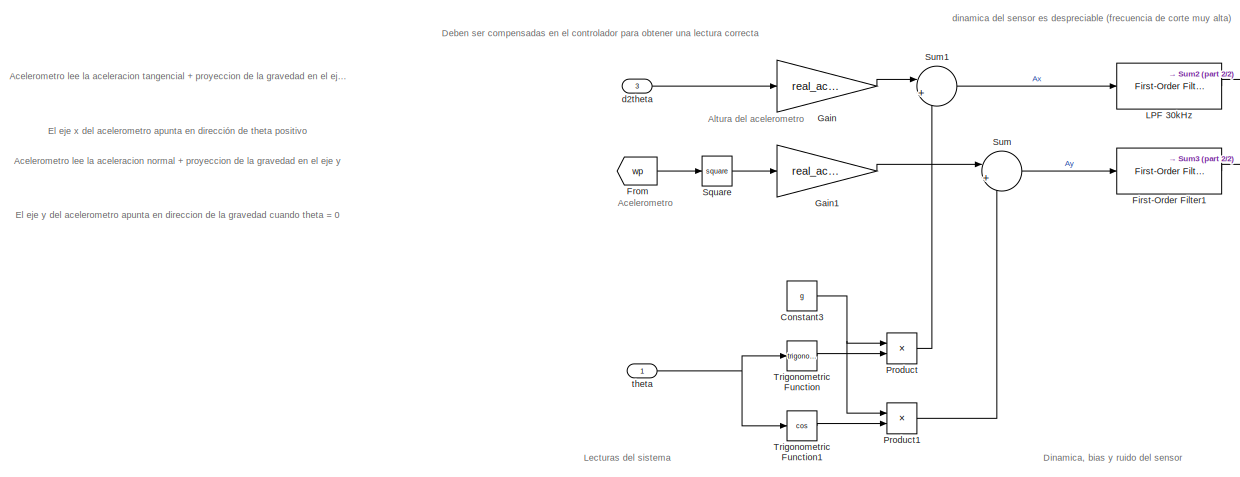
[diagram: Control de Balanceo Acelerometro Real/Sensores/IMU - part 1/2, top left region]
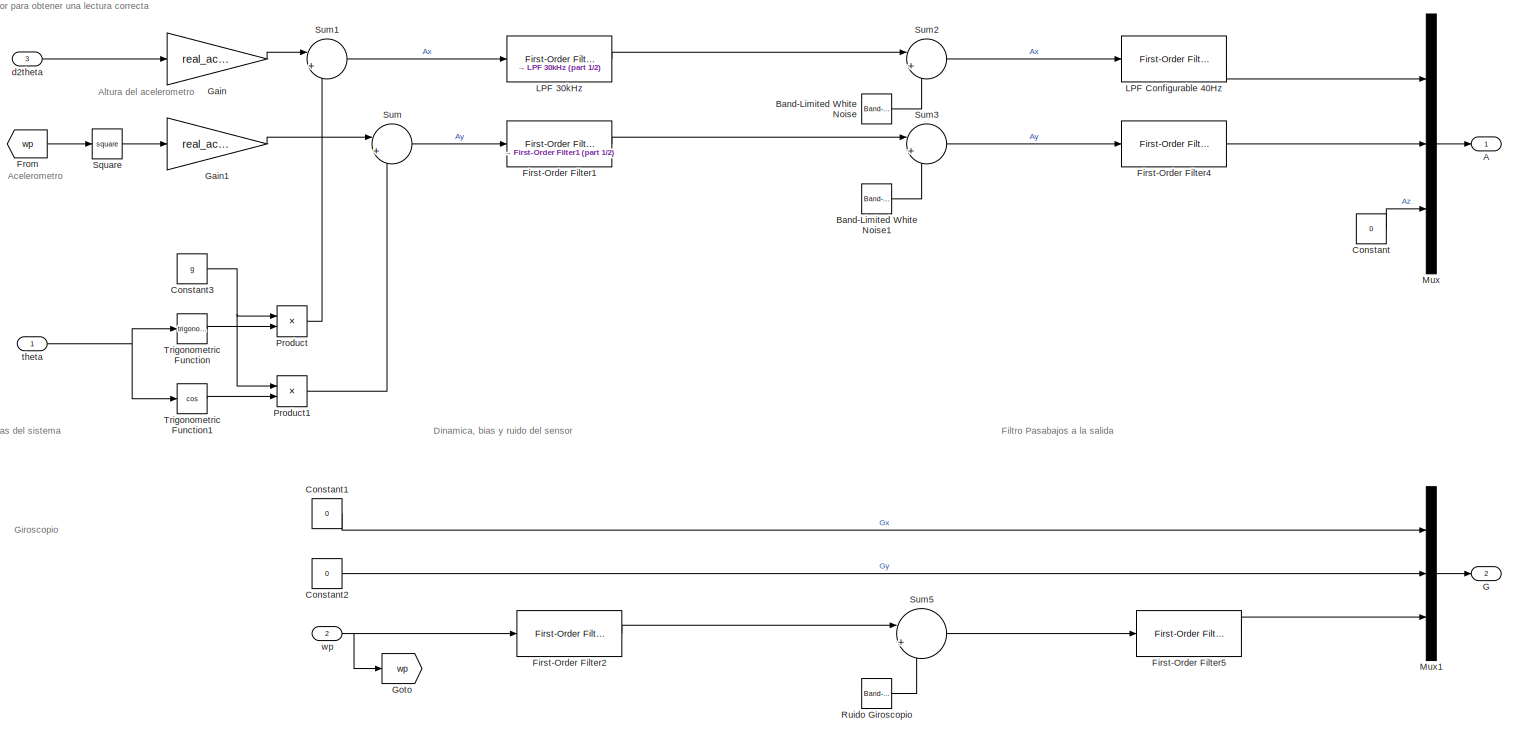
[diagram: Control de Balanceo Acelerometro Real/Sensores/IMU - part 2/2, center side, full height]
BLOCK [SubSystem] Control de Balanceo Acelerometro Real/Sensores/IMU
  Ports = [3, 2]
  RequestExecContextInheritance = off
BLOCK [Outport] Control de Balanceo Acelerometro Real/Sensores/IMU/A
BLOCK [Reference] Control de Balanceo Acelerometro Real/Sensores/IMU/Band-Limited White Noise  REF=simulink/Sources/Band-Limited
White Noise
  Ports = [0, 1]
  SourceBlock = simulink/Sources/Band-Limited\nWhite Noise
  SourceProductBaseCode = SL
  SourceType = Band-Limited White Noise.
BLOCK [Reference] Control de Balanceo Acelerometro Real/Sensores/IMU/Band-Limited White Noise1  REF=simulink/Sources/Band-Limited
White Noise
  Ports = [0, 1]
  SourceBlock = simulink/Sources/Band-Limited\nWhite Noise
  SourceProductBaseCode = SL
  SourceType = Band-Limited White Noise.
BLOCK [Constant] Control de Balanceo Acelerometro Real/Sensores/IMU/Constant
  Value = 0
BLOCK [Constant] Control de Balanceo Acelerometro Real/Sensores/IMU/Constant1
  Value = 0
BLOCK [Constant] Control de Balanceo Acelerometro Real/Sensores/IMU/Constant2
  Value = 0
BLOCK [Constant] Control de Balanceo Acelerometro Real/Sensores/IMU/Constant3
  Value = g
BLOCK [Reference] Control de Balanceo Acelerometro Real/Sensores/IMU/First-Order Filter1  REF=spsFirstOrderFilterLib/First-Order
Filter
  Ports = [1, 1]
  SourceBlock = spsFirstOrderFilterLib/First-Order\nFilter
  SourceProductBaseCode = PS
  SourceType = First-Order Filter
BLOCK [Reference] Control de Balanceo Acelerometro Real/Sensores/IMU/First-Order Filter2  REF=spsFirstOrderFilterLib/First-Order
Filter
  Ports = [1, 1]
  SourceBlock = spsFirstOrderFilterLib/First-Order\nFilter
  SourceProductBaseCode = PS
  SourceType = First-Order Filter
BLOCK [Reference] Control de Balanceo Acelerometro Real/Sensores/IMU/First-Order Filter4  REF=spsFirstOrderFilterLib/First-Order
Filter
  Ports = [1, 1]
  SourceBlock = spsFirstOrderFilterLib/First-Order\nFilter
  SourceProductBaseCode = PS
  SourceType = First-Order Filter
BLOCK [Reference] Control de Balanceo Acelerometro Real/Sensores/IMU/First-Order Filter5  REF=spsFirstOrderFilterLib/First-Order
Filter
  Ports = [1, 1]
  SourceBlock = spsFirstOrderFilterLib/First-Order\nFilter
  SourceProductBaseCode = PS
  SourceType = First-Order Filter
BLOCK [From] Control de Balanceo Acelerometro Real/Sensores/IMU/From
  GotoTag = wp
BLOCK [Outport] Control de Balanceo Acelerometro Real/Sensores/IMU/G
  Port = 2
BLOCK [Gain] Control de Balanceo Acelerometro Real/Sensores/IMU/Gain
  Gain = real_acc_height
BLOCK [Gain] Control de Balanceo Acelerometro Real/Sensores/IMU/Gain1
  Gain = real_acc_height
BLOCK [Goto] Control de Balanceo Acelerometro Real/Sensores/IMU/Goto
  GotoTag = wp
BLOCK [Reference] Control de Balanceo Acelerometro Real/Sensores/IMU/LPF 30kHz  REF=spsFirstOrderFilterLib/First-Order
Filter
  Ports = [1, 1]
  SourceBlock = spsFirstOrderFilterLib/First-Order\nFilter
  SourceProductBaseCode = PS
  SourceType = First-Order Filter
BLOCK [Reference] Control de Balanceo Acelerometro Real/Sensores/IMU/LPF Configurable 40Hz  REF=spsFirstOrderFilterLib/First-Order
Filter
  Ports = [1, 1]
  SourceBlock = spsFirstOrderFilterLib/First-Order\nFilter
  SourceProductBaseCode = PS
  SourceType = First-Order Filter
BLOCK [Mux] Control de Balanceo Acelerometro Real/Sensores/IMU/Mux
  DisplayOption = bar
  Inputs = 3
  Ports = [3, 1]
BLOCK [Mux] Control de Balanceo Acelerometro Real/Sensores/IMU/Mux1
  DisplayOption = bar
  Inputs = 3
  Ports = [3, 1]
BLOCK [Product] Control de Balanceo Acelerometro Real/Sensores/IMU/Product
  Ports = [2, 1]
BLOCK [Product] Control de Balanceo Acelerometro Real/Sensores/IMU/Product1
  Ports = [2, 1]
BLOCK [Reference] Control de Balanceo Acelerometro Real/Sensores/IMU/Ruido Giroscopio  REF=simulink/Sources/Band-Limited
White Noise
  Ports = [0, 1]
  SourceBlock = simulink/Sources/Band-Limited\nWhite Noise
  SourceProductBaseCode = SL
  SourceType = Band-Limited White Noise.
BLOCK [Math] Control de Balanceo Acelerometro Real/Sensores/IMU/Square
  Operator = square
  Ports = [1, 1]
BLOCK [Sum] Control de Balanceo Acelerometro Real/Sensores/IMU/Sum
  Inputs = |++
  Ports = [2, 1]
BLOCK [Sum] Control de Balanceo Acelerometro Real/Sensores/IMU/Sum1
  Inputs = |++
  Ports = [2, 1]
BLOCK [Sum] Control de Balanceo Acelerometro Real/Sensores/IMU/Sum2
  Inputs = |++
  Ports = [2, 1]
BLOCK [Sum] Control de Balanceo Acelerometro Real/Sensores/IMU/Sum3
  Inputs = |++
  Ports = [2, 1]
BLOCK [Sum] Control de Balanceo Acelerometro Real/Sensores/IMU/Sum5
  Inputs = |++
  Ports = [2, 1]
BLOCK [Trigonometry] Control de Balanceo Acelerometro Real/Sensores/IMU/Trigonometric Function
  Ports = [1, 1]
BLOCK [Trigonometry] Control de Balanceo Acelerometro Real/Sensores/IMU/Trigonometric Function1
  Operator = cos
  Ports = [1, 1]
BLOCK [Inport] Control de Balanceo Acelerometro Real/Sensores/IMU/d2theta
  Port = 3
BLOCK [Inport] Control de Balanceo Acelerometro Real/Sensores/IMU/theta
BLOCK [Inport] Control de Balanceo Acelerometro Real/Sensores/IMU/wp
  Port = 2
BLOCK [Inport] Control de Balanceo Acelerometro Real/Sensores/NL Full State
BLOCK [Terminator] Control de Balanceo Acelerometro Real/Sensores/Terminator
BLOCK [Terminator] Control de Balanceo Acelerometro Real/Sensores/Terminator1
BLOCK [Sum] Control de Balanceo Acelerometro Real/Subtract
  IconShape = rectangular
  Inputs = +-
  Ports = [2, 1]
BLOCK [Saturate] Control de Balanceo Acelerometro Real/Vmax = 24V
  LowerLimit = -V_nom
  UpperLimit = V_nom
BLOCK [SubSystem] Control de Balanceo Sensores Ideales
  Ports = [0, 1]
  RequestExecContextInheritance = off
BLOCK [SubSystem] Control de Balanceo Sensores Ideales/Control de Energía por histéresis
  Ports = [1, 1]
  RequestExecContextInheritance = off
BLOCK [SubSystem] Control de Balanceo Sensores Ideales/Control de Energía por histéresis/Cálculo de Energía
  Ports = [2, 1]
  RequestExecContextInheritance = off
BLOCK [Constant] Control de Balanceo Sensores Ideales/Control de Energía por histéresis/Cálculo de Energía/Constant
BLOCK [Constant] Control de Balanceo Sensores Ideales/Control de Energía por histéresis/Cálculo de Energía/Constant1
  Value = wn^2
BLOCK [Constant] Control de Balanceo Sensores Ideales/Control de Energía por histéresis/Cálculo de Energía/Constant2
  Value = 2
BLOCK [Product] Control de Balanceo Sensores Ideales/Control de Energía por histéresis/Cálculo de Energía/Divide
  Inputs = */
  Ports = [2, 1]
BLOCK [Outport] Control de Balanceo Sensores Ideales/Control de Energía por histéresis/Cálculo de Energía/Eref-E
BLOCK [Gain] Control de Balanceo Sensores Ideales/Control de Energía por histéresis/Cálculo de Energía/Gain
  Gain = 1/2
BLOCK [Math] Control de Balanceo Sensores Ideales/Control de Energía por histéresis/Cálculo de Energía/Square
  Operator = square
  Ports = [1, 1]
BLOCK [Sum] Control de Balanceo Sensores Ideales/Control de Energía por histéresis/Cálculo de Energía/Sum
  Inputs = |+-
  Ports = [2, 1]
BLOCK [Sum] Control de Balanceo Sensores Ideales/Control de Energía por histéresis/Cálculo de Energía/Sum1
  Inputs = +++
  Ports = [3, 1]
BLOCK [Trigonometry] Control de Balanceo Sensores Ideales/Control de Energía por histéresis/Cálculo de Energía/Trigonometric Function
  Operator = cos
  Ports = [1, 1]
BLOCK [Inport] Control de Balanceo Sensores Ideales/Control de Energía por histéresis/Cálculo de Energía/theta
BLOCK [Inport] Control de Balanceo Sensores Ideales/Control de Energía por histéresis/Cálculo de Energía/wp
  Port = 2
BLOCK [Demux] Control de Balanceo Sensores Ideales/Control de Energía por histéresis/Demux
  Ports = [1, 4]
BLOCK [Inport] Control de Balanceo Sensores Ideales/Control de Energía por histéresis/Estado completo estimado
BLOCK [Gain] Control de Balanceo Sensores Ideales/Control de Energía por histéresis/Gain
BLOCK [Gain] Control de Balanceo Sensores Ideales/Control de Energía por histéresis/Gain1
  Gain = Ksw
BLOCK [Gain] Control de Balanceo Sensores Ideales/Control de Energía por histéresis/Gain2
  Gain = -V_nom
BLOCK [Product] Control de Balanceo Sensores Ideales/Control de Energía por histéresis/Product
  Ports = [2, 1]
BLOCK [Sum] Control de Balanceo Sensores Ideales/Control de Energía por histéresis/Sum
  Inputs = |+-
  Ports = [2, 1]
BLOCK [Terminator] Control de Balanceo Sensores Ideales/Control de Energía por histéresis/Terminator
BLOCK [Outport] Control de Balanceo Sensores Ideales/Control de Energía por histéresis/V
BLOCK [Outport] Control de Balanceo Sensores Ideales/FullState
BLOCK [Gain] Control de Balanceo Sensores Ideales/Gain
BLOCK [SubSystem] Control de Balanceo Sensores Ideales/Péndulo invertido NL
  Ports = [1, 1]
  RequestExecContextInheritance = off
BLOCK [SubSystem] Control de Balanceo Sensores Ideales/Péndulo invertido NL/Motor CC + Rueda
  Ports = [1, 2]
  RequestExecContextInheritance = off
BLOCK [Gain] Control de Balanceo Sensores Ideales/Péndulo invertido NL/Motor CC + Rueda/Gain
  Gain = 1/Jw
BLOCK [Gain] Control de Balanceo Sensores Ideales/Péndulo invertido NL/Motor CC + Rueda/Gain1
  Gain = bm
BLOCK [Gain] Control de Balanceo Sensores Ideales/Péndulo invertido NL/Motor CC + Rueda/Gain2
  Gain = Kt
BLOCK [Gain] Control de Balanceo Sensores Ideales/Péndulo invertido NL/Motor CC + Rueda/Gain3
  Gain = 1/La
BLOCK [Gain] Control de Balanceo Sensores Ideales/Péndulo invertido NL/Motor CC + Rueda/Gain4
  Gain = Ra
BLOCK [Gain] Control de Balanceo Sensores Ideales/Péndulo invertido NL/Motor CC + Rueda/Gain5
  Gain = Ke
BLOCK [Integrator] Control de Balanceo Sensores Ideales/Péndulo invertido NL/Motor CC + Rueda/Integrator ia
  InitialCondition = x0_sw(4)
  Ports = [1, 1]
BLOCK [Integrator] Control de Balanceo Sensores Ideales/Péndulo invertido NL/Motor CC + Rueda/Integrator wm
  InitialCondition = x0_sw(3)
  Ports = [1, 1]
BLOCK [Sum] Control de Balanceo Sensores Ideales/Péndulo invertido NL/Motor CC + Rueda/Sum
  Inputs = |+-
  Ports = [2, 1]
BLOCK [Sum] Control de Balanceo Sensores Ideales/Péndulo invertido NL/Motor CC + Rueda/Sum1
  Inputs = |+--
  Ports = [3, 1]
BLOCK [Inport] Control de Balanceo Sensores Ideales/Péndulo invertido NL/Motor CC + Rueda/V
BLOCK [Outport] Control de Balanceo Sensores Ideales/Péndulo invertido NL/Motor CC + Rueda/ia
  Port = 2
BLOCK [Outport] Control de Balanceo Sensores Ideales/Péndulo invertido NL/Motor CC + Rueda/wm
BLOCK [Mux] Control de Balanceo Sensores Ideales/Péndulo invertido NL/Mux
  DisplayOption = bar
  Ports = [4, 1]
BLOCK [Outport] Control de Balanceo Sensores Ideales/Péndulo invertido NL/NL Full State
BLOCK [SubSystem] Control de Balanceo Sensores Ideales/Péndulo invertido NL/Péndulo invertido
  Ports = [2, 3]
  RequestExecContextInheritance = off
BLOCK [Gain] Control de Balanceo Sensores Ideales/Péndulo invertido NL/Péndulo invertido/Gain
  Gain = 1/J1
BLOCK [Gain] Control de Balanceo Sensores Ideales/Péndulo invertido NL/Péndulo invertido/Gain1
  Gain = beta
BLOCK [Gain] Control de Balanceo Sensores Ideales/Péndulo invertido NL/Péndulo invertido/Gain2
  Gain = Kt
BLOCK [Gain] Control de Balanceo Sensores Ideales/Péndulo invertido NL/Péndulo invertido/Gain3
  Gain = bp
BLOCK [Gain] Control de Balanceo Sensores Ideales/Péndulo invertido NL/Péndulo invertido/Gain4
  Gain = bm
BLOCK [Integrator] Control de Balanceo Sensores Ideales/Péndulo invertido NL/Péndulo invertido/Integrator Theta
  InitialCondition = x0_sw(1)
  Ports = [1, 1]
  WrappedStateLowerValue = 0
  WrappedStateUpperValue = 2*pi
BLOCK [Integrator] Control de Balanceo Sensores Ideales/Péndulo invertido NL/Péndulo invertido/Integrator wp
  InitialCondition = x0_sw(2)
  Ports = [1, 1]
BLOCK [Sum] Control de Balanceo Sensores Ideales/Péndulo invertido NL/Péndulo invertido/Sum
  Inputs = +-+-
  Ports = [4, 1]
BLOCK [Trigonometry] Control de Balanceo Sensores Ideales/Péndulo invertido NL/Péndulo invertido/Trigonometric Function1
  Ports = [1, 1]
BLOCK [Outport] Control de Balanceo Sensores Ideales/Péndulo invertido NL/Péndulo invertido/d2theta
  Port = 3
BLOCK [Inport] Control de Balanceo Sensores Ideales/Péndulo invertido NL/Péndulo invertido/ia
  Port = 2
BLOCK [Outport] Control de Balanceo Sensores Ideales/Péndulo invertido NL/Péndulo invertido/theta
BLOCK [Inport] Control de Balanceo Sensores Ideales/Péndulo invertido NL/Péndulo invertido/wm
BLOCK [Outport] Control de Balanceo Sensores Ideales/Péndulo invertido NL/Péndulo invertido/wp
  Port = 2
BLOCK [Terminator] Control de Balanceo Sensores Ideales/Péndulo invertido NL/Terminator
BLOCK [Inport] Control de Balanceo Sensores Ideales/Péndulo invertido NL/V
BLOCK [Saturate] Control de Balanceo Sensores Ideales/Vmax = 24V
  LowerLimit = -V_nom
  UpperLimit = V_nom
BLOCK [SubSystem] Control de Estabilidad Acelerometro Ideal
  Ports = [0, 1]
  RequestExecContextInheritance = off
BLOCK [SubSystem] Control de Estabilidad Acelerometro Ideal/Acondicionamiento de Señal
  Ports = [1, 1]
  RequestExecContextInheritance = off
BLOCK [Inport] Control de Estabilidad Acelerometro Ideal/Acondicionamiento de Señal/Acc
BLOCK [Trigonometry] Control de Estabilidad Acelerometro Ideal/Acondicionamiento de Señal/Atan2
  Operator = atan2
  Ports = [2, 1]
BLOCK [Demux] Control de Estabilidad Acelerometro Ideal/Acondicionamiento de Señal/Demux
  Outputs = 3
  Ports = [1, 3]
BLOCK [Terminator] Control de Estabilidad Acelerometro Ideal/Acondicionamiento de Señal/Terminator
BLOCK [Outport] Control de Estabilidad Acelerometro Ideal/Acondicionamiento de Señal/theta
BLOCK [SubSystem] Control de Estabilidad Acelerometro Ideal/Control LQR
  Ports = [1, 1]
  RequestExecContextInheritance = off
BLOCK [Inport] Control de Estabilidad Acelerometro Ideal/Control LQR/Estado estimado
BLOCK [Gain] Control de Estabilidad Acelerometro Ideal/Control LQR/Gain
  Gain = -K
  Multiplication = Matrix(K*u)
BLOCK [Outport] Control de Estabilidad Acelerometro Ideal/Control LQR/V
BLOCK [SubSystem] Control de Estabilidad Acelerometro Ideal/Estimación de estados
  Ports = [2, 1]
  RequestExecContextInheritance = off
BLOCK [Constant] Control de Estabilidad Acelerometro Ideal/Estimación de estados/Constant
  Value = A
BLOCK [Outport] Control de Estabilidad Acelerometro Ideal/Estimación de estados/Estado completo estimado
BLOCK [Gain] Control de Estabilidad Acelerometro Ideal/Estimación de estados/Gain
  Gain = L
  Multiplication = Matrix(K*u)
BLOCK [Gain] Control de Estabilidad Acelerometro Ideal/Estimación de estados/Gain1
  Gain = C
  Multiplication = Matrix(K*u)
BLOCK [Gain] Control de Estabilidad Acelerometro Ideal/Estimación de estados/Gain3
  Gain = B
  Multiplication = Matrix(K*u)
BLOCK [Integrator] Control de Estabilidad Acelerometro Ideal/Estimación de estados/Integrator
  InitialCondition = x0_sw
  Ports = [1, 1]
BLOCK [SubSystem] Control de Estabilidad Acelerometro Ideal/Estimación de estados/MATLAB Function
  ErrorFcn = Stateflow.Translate.translate
  PermitHierarchicalResolution = ExplicitOnly
  Ports = [2, 1]
  RequestExecContextInheritance = off
  SFBlockType = MATLAB Function
  TreatAsAtomicUnit = on
BLOCK [Demux] Control de Estabilidad Acelerometro Ideal/Estimación de estados/MATLAB Function/ Demux 
  Outputs = 1
  Ports = [1, 1]
BLOCK [S-Function] Control de Estabilidad Acelerometro Ideal/Estimación de estados/MATLAB Function/ SFunction 
  EnableBusSupport = on
  FunctionName = sf_sfun
  PortCounts = [2 2]
  Ports = [2, 2]
  SFcnIsStateOwnerBlock = off
  SFunctionDeploymentMode = off
  Tag = Stateflow S-Function 5
BLOCK [Terminator] Control de Estabilidad Acelerometro Ideal/Estimación de estados/MATLAB Function/ Terminator 
BLOCK [Inport] Control de Estabilidad Acelerometro Ideal/Estimación de estados/MATLAB Function/A
  Port = 2
BLOCK [Outport] Control de Estabilidad Acelerometro Ideal/Estimación de estados/MATLAB Function/F
BLOCK [Inport] Control de Estabilidad Acelerometro Ideal/Estimación de estados/MATLAB Function/x
BLOCK [Sum] Control de Estabilidad Acelerometro Ideal/Estimación de estados/Sum
  Inputs = |+-
  Ports = [2, 1]
BLOCK [Sum] Control de Estabilidad Acelerometro Ideal/Estimación de estados/Sum1
  Inputs = +++
  Ports = [3, 1]
BLOCK [Inport] Control de Estabilidad Acelerometro Ideal/Estimación de estados/V
BLOCK [Inport] Control de Estabilidad Acelerometro Ideal/Estimación de estados/theta
  Port = 2
BLOCK [Outport] Control de Estabilidad Acelerometro Ideal/FullState
BLOCK [SubSystem] Control de Estabilidad Acelerometro Ideal/Péndulo invertido NL
  Ports = [1, 1]
  RequestExecContextInheritance = off
BLOCK [SubSystem] Control de Estabilidad Acelerometro Ideal/Péndulo invertido NL/Motor CC + Rueda
  Ports = [1, 2]
  RequestExecContextInheritance = off
BLOCK [Gain] Control de Estabilidad Acelerometro Ideal/Péndulo invertido NL/Motor CC + Rueda/Gain
  Gain = 1/Jw
BLOCK [Gain] Control de Estabilidad Acelerometro Ideal/Péndulo invertido NL/Motor CC + Rueda/Gain1
  Gain = bm
BLOCK [Gain] Control de Estabilidad Acelerometro Ideal/Péndulo invertido NL/Motor CC + Rueda/Gain2
  Gain = Kt
BLOCK [Gain] Control de Estabilidad Acelerometro Ideal/Péndulo invertido NL/Motor CC + Rueda/Gain3
  Gain = 1/La
BLOCK [Gain] Control de Estabilidad Acelerometro Ideal/Péndulo invertido NL/Motor CC + Rueda/Gain4
  Gain = Ra
BLOCK [Gain] Control de Estabilidad Acelerometro Ideal/Péndulo invertido NL/Motor CC + Rueda/Gain5
  Gain = Ke
BLOCK [Integrator] Control de Estabilidad Acelerometro Ideal/Péndulo invertido NL/Motor CC + Rueda/Integrator ia
  InitialCondition = x0(4)
  Ports = [1, 1]
BLOCK [Integrator] Control de Estabilidad Acelerometro Ideal/Péndulo invertido NL/Motor CC + Rueda/Integrator wm
  InitialCondition = x0(3)
  Ports = [1, 1]
BLOCK [Sum] Control de Estabilidad Acelerometro Ideal/Péndulo invertido NL/Motor CC + Rueda/Sum
  Inputs = |+-
  Ports = [2, 1]
BLOCK [Sum] Control de Estabilidad Acelerometro Ideal/Péndulo invertido NL/Motor CC + Rueda/Sum1
  Inputs = |+--
  Ports = [3, 1]
BLOCK [Inport] Control de Estabilidad Acelerometro Ideal/Péndulo invertido NL/Motor CC + Rueda/V
BLOCK [Outport] Control de Estabilidad Acelerometro Ideal/Péndulo invertido NL/Motor CC + Rueda/ia
  Port = 2
BLOCK [Outport] Control de Estabilidad Acelerometro Ideal/Péndulo invertido NL/Motor CC + Rueda/wm
BLOCK [Mux] Control de Estabilidad Acelerometro Ideal/Péndulo invertido NL/Mux
  DisplayOption = bar
  Inputs = 5
  Ports = [5, 1]
BLOCK [Outport] Control de Estabilidad Acelerometro Ideal/Péndulo invertido NL/NL Full State
BLOCK [SubSystem] Control de Estabilidad Acelerometro Ideal/Péndulo invertido NL/Péndulo invertido
  Ports = [2, 3]
  RequestExecContextInheritance = off
BLOCK [Gain] Control de Estabilidad Acelerometro Ideal/Péndulo invertido NL/Péndulo invertido/Gain
  Gain = 1/J1
BLOCK [Gain] Control de Estabilidad Acelerometro Ideal/Péndulo invertido NL/Péndulo invertido/Gain1
  Gain = beta
BLOCK [Gain] Control de Estabilidad Acelerometro Ideal/Péndulo invertido NL/Péndulo invertido/Gain2
  Gain = Kt
BLOCK [Gain] Control de Estabilidad Acelerometro Ideal/Péndulo invertido NL/Péndulo invertido/Gain3
  Gain = bp
BLOCK [Gain] Control de Estabilidad Acelerometro Ideal/Péndulo invertido NL/Péndulo invertido/Gain4
  Gain = bm
BLOCK [Integrator] Control de Estabilidad Acelerometro Ideal/Péndulo invertido NL/Péndulo invertido/Integrator Theta
  InitialCondition = x0(1)
  Ports = [1, 1]
  WrappedStateLowerValue = 0
  WrappedStateUpperValue = 2*pi
BLOCK [Integrator] Control de Estabilidad Acelerometro Ideal/Péndulo invertido NL/Péndulo invertido/Integrator wp
  InitialCondition = x0(2)
  Ports = [1, 1]
BLOCK [Sum] Control de Estabilidad Acelerometro Ideal/Péndulo invertido NL/Péndulo invertido/Sum
  Inputs = +-+-
  Ports = [4, 1]
BLOCK [Trigonometry] Control de Estabilidad Acelerometro Ideal/Péndulo invertido NL/Péndulo invertido/Trigonometric Function1
  Ports = [1, 1]
BLOCK [Outport] Control de Estabilidad Acelerometro Ideal/Péndulo invertido NL/Péndulo invertido/d2theta
  Port = 3
BLOCK [Inport] Control de Estabilidad Acelerometro Ideal/Péndulo invertido NL/Péndulo invertido/ia
  Port = 2
BLOCK [Outport] Control de Estabilidad Acelerometro Ideal/Péndulo invertido NL/Péndulo invertido/theta
BLOCK [Inport] Control de Estabilidad Acelerometro Ideal/Péndulo invertido NL/Péndulo invertido/wm
BLOCK [Outport] Control de Estabilidad Acelerometro Ideal/Péndulo invertido NL/Péndulo invertido/wp
  Port = 2
BLOCK [Inport] Control de Estabilidad Acelerometro Ideal/Péndulo invertido NL/V
BLOCK [SubSystem] Control de Estabilidad Acelerometro Ideal/Sensores
  Ports = [1, 2]
  RequestExecContextInheritance = off
BLOCK [Outport] Control de Estabilidad Acelerometro Ideal/Sensores/Acc
BLOCK [Demux] Control de Estabilidad Acelerometro Ideal/Sensores/Demux
  Outputs = 5
  Ports = [1, 5]
BLOCK [Outport] Control de Estabilidad Acelerometro Ideal/Sensores/Gyro
  Port = 2
BLOCK [SubSystem] Control de Estabilidad Acelerometro Ideal/Sensores/IMU
  Ports = [3, 2]
  RequestExecContextInheritance = off
BLOCK [Outport] Control de Estabilidad Acelerometro Ideal/Sensores/IMU/A
BLOCK [Constant] Control de Estabilidad Acelerometro Ideal/Sensores/IMU/Constant
  Value = 0
BLOCK [Constant] Control de Estabilidad Acelerometro Ideal/Sensores/IMU/Constant1
  Value = 0
BLOCK [Constant] Control de Estabilidad Acelerometro Ideal/Sensores/IMU/Constant2
  Value = 0
BLOCK [Constant] Control de Estabilidad Acelerometro Ideal/Sensores/IMU/Constant3
  Value = g
BLOCK [Outport] Control de Estabilidad Acelerometro Ideal/Sensores/IMU/G
  Port = 2
BLOCK [Gain] Control de Estabilidad Acelerometro Ideal/Sensores/IMU/Gain
  Gain = ideal_acc_height
BLOCK [Gain] Control de Estabilidad Acelerometro Ideal/Sensores/IMU/Gain1
  Gain = ideal_acc_height
BLOCK [Mux] Control de Estabilidad Acelerometro Ideal/Sensores/IMU/Mux
  DisplayOption = bar
  Inputs = 3
  Ports = [3, 1]
BLOCK [Mux] Control de Estabilidad Acelerometro Ideal/Sensores/IMU/Mux1
  DisplayOption = bar
  Inputs = 3
  Ports = [3, 1]
BLOCK [Product] Control de Estabilidad Acelerometro Ideal/Sensores/IMU/Product
  Ports = [2, 1]
BLOCK [Product] Control de Estabilidad Acelerometro Ideal/Sensores/IMU/Product1
  Ports = [2, 1]
BLOCK [Math] Control de Estabilidad Acelerometro Ideal/Sensores/IMU/Square
  Operator = square
  Ports = [1, 1]
BLOCK [Sum] Control de Estabilidad Acelerometro Ideal/Sensores/IMU/Sum
  Inputs = |++
  Ports = [2, 1]
BLOCK [Sum] Control de Estabilidad Acelerometro Ideal/Sensores/IMU/Sum1
  Inputs = |++
  Ports = [2, 1]
BLOCK [Trigonometry] Control de Estabilidad Acelerometro Ideal/Sensores/IMU/Trigonometric Function
  Ports = [1, 1]
BLOCK [Trigonometry] Control de Estabilidad Acelerometro Ideal/Sensores/IMU/Trigonometric Function1
  Operator = cos
  Ports = [1, 1]
BLOCK [Inport] Control de Estabilidad Acelerometro Ideal/Sensores/IMU/d2theta
  Port = 3
BLOCK [Inport] Control de Estabilidad Acelerometro Ideal/Sensores/IMU/theta
BLOCK [Inport] Control de Estabilidad Acelerometro Ideal/Sensores/IMU/wp
  Port = 2
BLOCK [Inport] Control de Estabilidad Acelerometro Ideal/Sensores/NL Full State
BLOCK [Terminator] Control de Estabilidad Acelerometro Ideal/Sensores/Terminator
BLOCK [Terminator] Control de Estabilidad Acelerometro Ideal/Sensores/Terminator1
BLOCK [Saturate] Control de Estabilidad Acelerometro Ideal/Vmax = 24V
  LowerLimit = -V_nom
  UpperLimit = V_nom
BLOCK [SubSystem] Control de Estabilidad Acelerometro Real
  Ports = [0, 1]
  RequestExecContextInheritance = off
BLOCK [SubSystem] Control de Estabilidad Acelerometro Real/Acondicionamiento de Señal
  Ports = [2, 1]
  RequestExecContextInheritance = off
BLOCK [Inport] Control de Estabilidad Acelerometro Real/Acondicionamiento de Señal/Acc
  Port = 2
BLOCK [Trigonometry] Control de Estabilidad Acelerometro Real/Acondicionamiento de Señal/Atan2
  Operator = atan2
  Ports = [2, 1]
BLOCK [Delay] Control de Estabilidad Acelerometro Real/Acondicionamiento de Señal/Delay
  DelayLength = 1
  InitialCondition = x0(1)
  InputPortMap = u0
  NameLocation = top
  Ports = [1, 1]
  SampleTime = 1/fs_IMU
BLOCK [Demux] Control de Estabilidad Acelerometro Real/Acondicionamiento de Señal/Demux
  Outputs = 3
  Ports = [1, 3]
BLOCK [Demux] Control de Estabilidad Acelerometro Real/Acondicionamiento de Señal/Demux1
  Outputs = 3
  Ports = [1, 3]
BLOCK [Derivative] Control de Estabilidad Acelerometro Real/Acondicionamiento de Señal/Derivative
BLOCK [From] Control de Estabilidad Acelerometro Real/Acondicionamiento de Señal/From
  GotoTag = Gz
BLOCK [Gain] Control de Estabilidad Acelerometro Real/Acondicionamiento de Señal/Gain
  Gain = real_acc_height
  NameLocation = right
BLOCK [Gain] Control de Estabilidad Acelerometro Real/Acondicionamiento de Señal/Gain3
  Gain = real_acc_height
BLOCK [Goto] Control de Estabilidad Acelerometro Real/Acondicionamiento de Señal/Goto
  GotoTag = Gz
BLOCK [Inport] Control de Estabilidad Acelerometro Real/Acondicionamiento de Señal/Gyro
BLOCK [SubSystem] Control de Estabilidad Acelerometro Real/Acondicionamiento de Señal/MATLAB Function
  ErrorFcn = Stateflow.Translate.translate
  PermitHierarchicalResolution = ExplicitOnly
  Ports = [3, 1]
  RequestExecContextInheritance = off
  SFBlockType = MATLAB Function
  TreatAsAtomicUnit = on
BLOCK [Demux] Control de Estabilidad Acelerometro Real/Acondicionamiento de Señal/MATLAB Function/ Demux 
  Outputs = 1
  Ports = [1, 1]
BLOCK [S-Function] Control de Estabilidad Acelerometro Real/Acondicionamiento de Señal/MATLAB Function/ SFunction 
  EnableBusSupport = on
  FunctionName = sf_sfun
  PortCounts = [3 2]
  Ports = [3, 2]
  SFcnIsStateOwnerBlock = off
  SFunctionDeploymentMode = off
  Tag = Stateflow S-Function 2
BLOCK [Terminator] Control de Estabilidad Acelerometro Real/Acondicionamiento de Señal/MATLAB Function/ Terminator 
BLOCK [Inport] Control de Estabilidad Acelerometro Real/Acondicionamiento de Señal/MATLAB Function/Gz
  Port = 2
BLOCK [Inport] Control de Estabilidad Acelerometro Real/Acondicionamiento de Señal/MATLAB Function/theta_acc
BLOCK [Outport] Control de Estabilidad Acelerometro Real/Acondicionamiento de Señal/MATLAB Function/theta_filtered
BLOCK [Inport] Control de Estabilidad Acelerometro Real/Acondicionamiento de Señal/MATLAB Function/theta_last
  Port = 3
BLOCK [Scope] Control de Estabilidad Acelerometro Real/Acondicionamiento de Señal/Scope
  Floating = off
  NumInputPorts = 2
  Ports = [2]
  ScopeSpecificationString = Simulink.scopes.TimeScopeBlockCfg('CurrentConfiguration', extmgr.ConfigurationSet(extmgr.Configuration('Core','General UI',true),extmgr.Configuration('Core','Source UI',true),extmgr.Configuration('Sources','WiredSimulink',true,'DataLoggingVariableName','ScopeData1'),extmgr.Configuration('Visuals','Time Domain',true,'SerializedDisplays',{struct('MinYLimReal','-473.10168','MaxYLimReal','520.63813','...<+1525ch>
BLOCK [Math] Control de Estabilidad Acelerometro Real/Acondicionamiento de Señal/Square
  Operator = square
  Ports = [1, 1]
BLOCK [Sum] Control de Estabilidad Acelerometro Real/Acondicionamiento de Señal/Sum
  Inputs = -+|
  Ports = [2, 1]
BLOCK [Sum] Control de Estabilidad Acelerometro Real/Acondicionamiento de Señal/Sum1
  Inputs = |+-
  Ports = [2, 1]
BLOCK [Terminator] Control de Estabilidad Acelerometro Real/Acondicionamiento de Señal/Terminator
BLOCK [Terminator] Control de Estabilidad Acelerometro Real/Acondicionamiento de Señal/Terminator1
BLOCK [Terminator] Control de Estabilidad Acelerometro Real/Acondicionamiento de Señal/Terminator2
BLOCK [TransferFcn] Control de Estabilidad Acelerometro Real/Acondicionamiento de Señal/Transfer Fcn
  Denominator = [0.001 1]
  Numerator = [1 0]
BLOCK [Outport] Control de Estabilidad Acelerometro Real/Acondicionamiento de Señal/theta_filter
BLOCK [SubSystem] Control de Estabilidad Acelerometro Real/Control LQR
  Ports = [1, 1]
  RequestExecContextInheritance = off
BLOCK [Inport] Control de Estabilidad Acelerometro Real/Control LQR/Estado estimado
BLOCK [Gain] Control de Estabilidad Acelerometro Real/Control LQR/Gain
  Gain = -K
  Multiplication = Matrix(K*u)
BLOCK [Outport] Control de Estabilidad Acelerometro Real/Control LQR/V
BLOCK [SubSystem] Control de Estabilidad Acelerometro Real/Estimación de estados
  Ports = [2, 1]
  RequestExecContextInheritance = off
BLOCK [Constant] Control de Estabilidad Acelerometro Real/Estimación de estados/Constant
  Value = A
BLOCK [Outport] Control de Estabilidad Acelerometro Real/Estimación de estados/Estado completo estimado
BLOCK [Gain] Control de Estabilidad Acelerometro Real/Estimación de estados/Gain
  Gain = L
  Multiplication = Matrix(K*u)
BLOCK [Gain] Control de Estabilidad Acelerometro Real/Estimación de estados/Gain1
  Gain = C
  Multiplication = Matrix(K*u)
BLOCK [Gain] Control de Estabilidad Acelerometro Real/Estimación de estados/Gain3
  Gain = B
  Multiplication = Matrix(K*u)
BLOCK [Integrator] Control de Estabilidad Acelerometro Real/Estimación de estados/Integrator
  InitialCondition = x0_sw
  Ports = [1, 1]
BLOCK [SubSystem] Control de Estabilidad Acelerometro Real/Estimación de estados/MATLAB Function
  ErrorFcn = Stateflow.Translate.translate
  PermitHierarchicalResolution = ExplicitOnly
  Ports = [2, 1]
  RequestExecContextInheritance = off
  SFBlockType = MATLAB Function
  TreatAsAtomicUnit = on
BLOCK [Demux] Control de Estabilidad Acelerometro Real/Estimación de estados/MATLAB Function/ Demux 
  Outputs = 1
  Ports = [1, 1]
BLOCK [S-Function] Control de Estabilidad Acelerometro Real/Estimación de estados/MATLAB Function/ SFunction 
  EnableBusSupport = on
  FunctionName = sf_sfun
  PortCounts = [2 2]
  Ports = [2, 2]
  SFcnIsStateOwnerBlock = off
  SFunctionDeploymentMode = off
  Tag = Stateflow S-Function 4
BLOCK [Terminator] Control de Estabilidad Acelerometro Real/Estimación de estados/MATLAB Function/ Terminator 
BLOCK [Inport] Control de Estabilidad Acelerometro Real/Estimación de estados/MATLAB Function/A
  Port = 2
BLOCK [Outport] Control de Estabilidad Acelerometro Real/Estimación de estados/MATLAB Function/F
BLOCK [Inport] Control de Estabilidad Acelerometro Real/Estimación de estados/MATLAB Function/x
BLOCK [Sum] Control de Estabilidad Acelerometro Real/Estimación de estados/Sum
  Inputs = |+-
  Ports = [2, 1]
BLOCK [Sum] Control de Estabilidad Acelerometro Real/Estimación de estados/Sum1
  Inputs = +++
  Ports = [3, 1]
BLOCK [Inport] Control de Estabilidad Acelerometro Real/Estimación de estados/V
BLOCK [Inport] Control de Estabilidad Acelerometro Real/Estimación de estados/theta
  Port = 2
BLOCK [Outport] Control de Estabilidad Acelerometro Real/FullState
BLOCK [SubSystem] Control de Estabilidad Acelerometro Real/Péndulo invertido NL
  Ports = [1, 1]
  RequestExecContextInheritance = off
BLOCK [SubSystem] Control de Estabilidad Acelerometro Real/Péndulo invertido NL/Motor CC + Rueda
  Ports = [1, 2]
  RequestExecContextInheritance = off
BLOCK [Gain] Control de Estabilidad Acelerometro Real/Péndulo invertido NL/Motor CC + Rueda/Gain
  Gain = 1/Jw
BLOCK [Gain] Control de Estabilidad Acelerometro Real/Péndulo invertido NL/Motor CC + Rueda/Gain1
  Gain = bm
BLOCK [Gain] Control de Estabilidad Acelerometro Real/Péndulo invertido NL/Motor CC + Rueda/Gain2
  Gain = Kt
BLOCK [Gain] Control de Estabilidad Acelerometro Real/Péndulo invertido NL/Motor CC + Rueda/Gain3
  Gain = 1/La
BLOCK [Gain] Control de Estabilidad Acelerometro Real/Péndulo invertido NL/Motor CC + Rueda/Gain4
  Gain = Ra
BLOCK [Gain] Control de Estabilidad Acelerometro Real/Péndulo invertido NL/Motor CC + Rueda/Gain5
  Gain = Ke
BLOCK [Integrator] Control de Estabilidad Acelerometro Real/Péndulo invertido NL/Motor CC + Rueda/Integrator ia
  InitialCondition = x0(4)
  Ports = [1, 1]
BLOCK [Integrator] Control de Estabilidad Acelerometro Real/Péndulo invertido NL/Motor CC + Rueda/Integrator wm
  InitialCondition = x0(3)
  Ports = [1, 1]
BLOCK [Sum] Control de Estabilidad Acelerometro Real/Péndulo invertido NL/Motor CC + Rueda/Sum
  Inputs = |+-
  Ports = [2, 1]
BLOCK [Sum] Control de Estabilidad Acelerometro Real/Péndulo invertido NL/Motor CC + Rueda/Sum1
  Inputs = |+--
  Ports = [3, 1]
BLOCK [Inport] Control de Estabilidad Acelerometro Real/Péndulo invertido NL/Motor CC + Rueda/V
BLOCK [Outport] Control de Estabilidad Acelerometro Real/Péndulo invertido NL/Motor CC + Rueda/ia
  Port = 2
BLOCK [Outport] Control de Estabilidad Acelerometro Real/Péndulo invertido NL/Motor CC + Rueda/wm
BLOCK [Mux] Control de Estabilidad Acelerometro Real/Péndulo invertido NL/Mux
  DisplayOption = bar
  Inputs = 5
  Ports = [5, 1]
BLOCK [Outport] Control de Estabilidad Acelerometro Real/Péndulo invertido NL/NL Full State
BLOCK [SubSystem] Control de Estabilidad Acelerometro Real/Péndulo invertido NL/Péndulo invertido
  Ports = [2, 3]
  RequestExecContextInheritance = off
BLOCK [Gain] Control de Estabilidad Acelerometro Real/Péndulo invertido NL/Péndulo invertido/Gain
  Gain = 1/J1
BLOCK [Gain] Control de Estabilidad Acelerometro Real/Péndulo invertido NL/Péndulo invertido/Gain1
  Gain = beta
BLOCK [Gain] Control de Estabilidad Acelerometro Real/Péndulo invertido NL/Péndulo invertido/Gain2
  Gain = Kt
BLOCK [Gain] Control de Estabilidad Acelerometro Real/Péndulo invertido NL/Péndulo invertido/Gain3
  Gain = bp
BLOCK [Gain] Control de Estabilidad Acelerometro Real/Péndulo invertido NL/Péndulo invertido/Gain4
  Gain = bm
BLOCK [Integrator] Control de Estabilidad Acelerometro Real/Péndulo invertido NL/Péndulo invertido/Integrator Theta
  InitialCondition = x0(1)
  Ports = [1, 1]
  WrappedStateLowerValue = 0
  WrappedStateUpperValue = 2*pi
BLOCK [Integrator] Control de Estabilidad Acelerometro Real/Péndulo invertido NL/Péndulo invertido/Integrator wp
  InitialCondition = x0(2)
  Ports = [1, 1]
BLOCK [Sum] Control de Estabilidad Acelerometro Real/Péndulo invertido NL/Péndulo invertido/Sum
  Inputs = +-+-
  Ports = [4, 1]
BLOCK [Trigonometry] Control de Estabilidad Acelerometro Real/Péndulo invertido NL/Péndulo invertido/Trigonometric Function1
  Ports = [1, 1]
BLOCK [Outport] Control de Estabilidad Acelerometro Real/Péndulo invertido NL/Péndulo invertido/d2theta
  Port = 3
BLOCK [Inport] Control de Estabilidad Acelerometro Real/Péndulo invertido NL/Péndulo invertido/ia
  Port = 2
BLOCK [Outport] Control de Estabilidad Acelerometro Real/Péndulo invertido NL/Péndulo invertido/theta
BLOCK [Inport] Control de Estabilidad Acelerometro Real/Péndulo invertido NL/Péndulo invertido/wm
BLOCK [Outport] Control de Estabilidad Acelerometro Real/Péndulo invertido NL/Péndulo invertido/wp
  Port = 2
BLOCK [Inport] Control de Estabilidad Acelerometro Real/Péndulo invertido NL/V
BLOCK [Scope] Control de Estabilidad Acelerometro Real/Scope
  Floating = off
  NumInputPorts = 1
  Ports = [1]
  ScopeSpecificationString = Simulink.scopes.TimeScopeBlockCfg('CurrentConfiguration', extmgr.ConfigurationSet(extmgr.Configuration('Core','General UI',true),extmgr.Configuration('Core','Source UI',true),extmgr.Configuration('Sources','WiredSimulink',true,'DataLoggingVariableName','ScopeData1'),extmgr.Configuration('Visuals','Time Domain',true,'SerializedDisplays',{struct('MinYLimReal','-48.00853','MaxYLimReal','43.95122','YL...<+1570ch>
BLOCK [Scope] Control de Estabilidad Acelerometro Real/Scope1
  Floating = off
  NumInputPorts = 1
  Ports = [1]
  ScopeSpecificationString = Simulink.scopes.TimeScopeBlockCfg('CurrentConfiguration', extmgr.ConfigurationSet(extmgr.Configuration('Core','General UI',true),extmgr.Configuration('Core','Source UI',true),extmgr.Configuration('Sources','WiredSimulink',true,'DataLoggingVariableName','ScopeData2'),extmgr.Configuration('Visuals','Time Domain',true,'SerializedDisplays',{struct('MinYLimReal','-0.43956','MaxYLimReal','0.71841','YLab...<+1453ch>
BLOCK [Scope] Control de Estabilidad Acelerometro Real/Scope2
  Floating = off
  NumInputPorts = 1
  Ports = [1]
  ScopeSpecificationString = Simulink.scopes.TimeScopeBlockCfg('CurrentConfiguration', extmgr.ConfigurationSet(extmgr.Configuration('Core','General UI',true),extmgr.Configuration('Core','Source UI',true),extmgr.Configuration('Sources','WiredSimulink',true,'DataLoggingVariableName','ScopeData3'),extmgr.Configuration('Visuals','Time Domain',true,'SerializedDisplays',{struct('MinYLimReal','-8.53757','MaxYLimReal','31.63439','YLa...<+1503ch>
BLOCK [SubSystem] Control de Estabilidad Acelerometro Real/Sensores
  Ports = [1, 2]
  RequestExecContextInheritance = off
BLOCK [Outport] Control de Estabilidad Acelerometro Real/Sensores/Acc
BLOCK [Demux] Control de Estabilidad Acelerometro Real/Sensores/Demux
  Outputs = 5
  Ports = [1, 5]
BLOCK [Outport] Control de Estabilidad Acelerometro Real/Sensores/Gyro
  Port = 2
BLOCK [SubSystem] Control de Estabilidad Acelerometro Real/Sensores/IMU
  Ports = [3, 2]
  RequestExecContextInheritance = off
BLOCK [Outport] Control de Estabilidad Acelerometro Real/Sensores/IMU/A
BLOCK [Reference] Control de Estabilidad Acelerometro Real/Sensores/IMU/Band-Limited White Noise  REF=simulink/Sources/Band-Limited
White Noise
  Ports = [0, 1]
  SourceBlock = simulink/Sources/Band-Limited\nWhite Noise
  SourceProductBaseCode = SL
  SourceType = Band-Limited White Noise.
BLOCK [Reference] Control de Estabilidad Acelerometro Real/Sensores/IMU/Band-Limited White Noise1  REF=simulink/Sources/Band-Limited
White Noise
  Ports = [0, 1]
  SourceBlock = simulink/Sources/Band-Limited\nWhite Noise
  SourceProductBaseCode = SL
  SourceType = Band-Limited White Noise.
BLOCK [Constant] Control de Estabilidad Acelerometro Real/Sensores/IMU/Constant
  Value = 0
BLOCK [Constant] Control de Estabilidad Acelerometro Real/Sensores/IMU/Constant1
  Value = 0
BLOCK [Constant] Control de Estabilidad Acelerometro Real/Sensores/IMU/Constant2
  Value = 0
BLOCK [Constant] Control de Estabilidad Acelerometro Real/Sensores/IMU/Constant3
  Value = g
BLOCK [Reference] Control de Estabilidad Acelerometro Real/Sensores/IMU/First-Order Filter1  REF=spsFirstOrderFilterLib/First-Order
Filter
  Ports = [1, 1]
  SourceBlock = spsFirstOrderFilterLib/First-Order\nFilter
  SourceProductBaseCode = PS
  SourceType = First-Order Filter
BLOCK [Reference] Control de Estabilidad Acelerometro Real/Sensores/IMU/First-Order Filter2  REF=spsFirstOrderFilterLib/First-Order
Filter
  Ports = [1, 1]
  SourceBlock = spsFirstOrderFilterLib/First-Order\nFilter
  SourceProductBaseCode = PS
  SourceType = First-Order Filter
BLOCK [Reference] Control de Estabilidad Acelerometro Real/Sensores/IMU/First-Order Filter4  REF=spsFirstOrderFilterLib/First-Order
Filter
  Ports = [1, 1]
  SourceBlock = spsFirstOrderFilterLib/First-Order\nFilter
  SourceProductBaseCode = PS
  SourceType = First-Order Filter
BLOCK [Reference] Control de Estabilidad Acelerometro Real/Sensores/IMU/First-Order Filter5  REF=spsFirstOrderFilterLib/First-Order
Filter
  Ports = [1, 1]
  SourceBlock = spsFirstOrderFilterLib/First-Order\nFilter
  SourceProductBaseCode = PS
  SourceType = First-Order Filter
BLOCK [From] Control de Estabilidad Acelerometro Real/Sensores/IMU/From
  GotoTag = wp
BLOCK [Outport] Control de Estabilidad Acelerometro Real/Sensores/IMU/G
  Port = 2
BLOCK [Gain] Control de Estabilidad Acelerometro Real/Sensores/IMU/Gain
  Gain = real_acc_height
BLOCK [Gain] Control de Estabilidad Acelerometro Real/Sensores/IMU/Gain1
  Gain = real_acc_height
BLOCK [Goto] Control de Estabilidad Acelerometro Real/Sensores/IMU/Goto
  GotoTag = wp
BLOCK [Reference] Control de Estabilidad Acelerometro Real/Sensores/IMU/LPF 30kHz  REF=spsFirstOrderFilterLib/First-Order
Filter
  Ports = [1, 1]
  SourceBlock = spsFirstOrderFilterLib/First-Order\nFilter
  SourceProductBaseCode = PS
  SourceType = First-Order Filter
BLOCK [Reference] Control de Estabilidad Acelerometro Real/Sensores/IMU/LPF Configurable 40Hz  REF=spsFirstOrderFilterLib/First-Order
Filter
  Ports = [1, 1]
  SourceBlock = spsFirstOrderFilterLib/First-Order\nFilter
  SourceProductBaseCode = PS
  SourceType = First-Order Filter
BLOCK [Mux] Control de Estabilidad Acelerometro Real/Sensores/IMU/Mux
  DisplayOption = bar
  Inputs = 3
  Ports = [3, 1]
BLOCK [Mux] Control de Estabilidad Acelerometro Real/Sensores/IMU/Mux1
  DisplayOption = bar
  Inputs = 3
  Ports = [3, 1]
BLOCK [Product] Control de Estabilidad Acelerometro Real/Sensores/IMU/Product
  Ports = [2, 1]
BLOCK [Product] Control de Estabilidad Acelerometro Real/Sensores/IMU/Product1
  Ports = [2, 1]
BLOCK [Reference] Control de Estabilidad Acelerometro Real/Sensores/IMU/Ruido Giroscopio  REF=simulink/Sources/Band-Limited
White Noise
  Ports = [0, 1]
  SourceBlock = simulink/Sources/Band-Limited\nWhite Noise
  SourceProductBaseCode = SL
  SourceType = Band-Limited White Noise.
BLOCK [Math] Control de Estabilidad Acelerometro Real/Sensores/IMU/Square
  Operator = square
  Ports = [1, 1]
BLOCK [Sum] Control de Estabilidad Acelerometro Real/Sensores/IMU/Sum
  Inputs = |++
  Ports = [2, 1]
BLOCK [Sum] Control de Estabilidad Acelerometro Real/Sensores/IMU/Sum1
  Inputs = |++
  Ports = [2, 1]
BLOCK [Sum] Control de Estabilidad Acelerometro Real/Sensores/IMU/Sum2
  Inputs = |++
  Ports = [2, 1]
BLOCK [Sum] Control de Estabilidad Acelerometro Real/Sensores/IMU/Sum3
  Inputs = |++
  Ports = [2, 1]
BLOCK [Sum] Control de Estabilidad Acelerometro Real/Sensores/IMU/Sum5
  Inputs = |++
  Ports = [2, 1]
BLOCK [Trigonometry] Control de Estabilidad Acelerometro Real/Sensores/IMU/Trigonometric Function
  Ports = [1, 1]
BLOCK [Trigonometry] Control de Estabilidad Acelerometro Real/Sensores/IMU/Trigonometric Function1
  Operator = cos
  Ports = [1, 1]
BLOCK [Inport] Control de Estabilidad Acelerometro Real/Sensores/IMU/d2theta
  Port = 3
BLOCK [Inport] Control de Estabilidad Acelerometro Real/Sensores/IMU/theta
BLOCK [Inport] Control de Estabilidad Acelerometro Real/Sensores/IMU/wp
  Port = 2
BLOCK [Inport] Control de Estabilidad Acelerometro Real/Sensores/NL Full State
BLOCK [Terminator] Control de Estabilidad Acelerometro Real/Sensores/Terminator
BLOCK [Terminator] Control de Estabilidad Acelerometro Real/Sensores/Terminator1
BLOCK [Saturate] Control de Estabilidad Acelerometro Real/Vmax = 24V
  LowerLimit = -V_nom
  UpperLimit = V_nom
BLOCK [SubSystem] Control de Estabilidad Sensores ideales
  Ports = [0, 1]
  RequestExecContextInheritance = off
BLOCK [SubSystem] Control de Estabilidad Sensores ideales/Control LQR
  Ports = [1, 1]
  RequestExecContextInheritance = off
BLOCK [Inport] Control de Estabilidad Sensores ideales/Control LQR/Estado medido
BLOCK [Gain] Control de Estabilidad Sensores ideales/Control LQR/Gain
  Gain = -K
  Multiplication = Matrix(K*u)
BLOCK [Outport] Control de Estabilidad Sensores ideales/Control LQR/V
BLOCK [Outport] Control de Estabilidad Sensores ideales/FullState
BLOCK [Gain] Control de Estabilidad Sensores ideales/Gain
BLOCK [SubSystem] Control de Estabilidad Sensores ideales/Péndulo invertido NL
  Ports = [1, 1]
  RequestExecContextInheritance = off
BLOCK [SubSystem] Control de Estabilidad Sensores ideales/Péndulo invertido NL/Motor CC + Rueda
  Ports = [1, 2]
  RequestExecContextInheritance = off
BLOCK [Gain] Control de Estabilidad Sensores ideales/Péndulo invertido NL/Motor CC + Rueda/Gain
  Gain = 1/Jw
BLOCK [Gain] Control de Estabilidad Sensores ideales/Péndulo invertido NL/Motor CC + Rueda/Gain1
  Gain = bm
BLOCK [Gain] Control de Estabilidad Sensores ideales/Péndulo invertido NL/Motor CC + Rueda/Gain2
  Gain = Kt
BLOCK [Gain] Control de Estabilidad Sensores ideales/Péndulo invertido NL/Motor CC + Rueda/Gain3
  Gain = 1/La
BLOCK [Gain] Control de Estabilidad Sensores ideales/Péndulo invertido NL/Motor CC + Rueda/Gain4
  Gain = Ra
BLOCK [Gain] Control de Estabilidad Sensores ideales/Péndulo invertido NL/Motor CC + Rueda/Gain5
  Gain = Ke
BLOCK [Integrator] Control de Estabilidad Sensores ideales/Péndulo invertido NL/Motor CC + Rueda/Integrator ia
  InitialCondition = x0(4)
  Ports = [1, 1]
BLOCK [Integrator] Control de Estabilidad Sensores ideales/Péndulo invertido NL/Motor CC + Rueda/Integrator wm
  InitialCondition = x0(3)
  Ports = [1, 1]
BLOCK [Sum] Control de Estabilidad Sensores ideales/Péndulo invertido NL/Motor CC + Rueda/Sum
  Inputs = |+-
  Ports = [2, 1]
BLOCK [Sum] Control de Estabilidad Sensores ideales/Péndulo invertido NL/Motor CC + Rueda/Sum1
  Inputs = |+--
  Ports = [3, 1]
BLOCK [Inport] Control de Estabilidad Sensores ideales/Péndulo invertido NL/Motor CC + Rueda/V
BLOCK [Outport] Control de Estabilidad Sensores ideales/Péndulo invertido NL/Motor CC + Rueda/ia
  Port = 2
BLOCK [Outport] Control de Estabilidad Sensores ideales/Péndulo invertido NL/Motor CC + Rueda/wm
BLOCK [Mux] Control de Estabilidad Sensores ideales/Péndulo invertido NL/Mux
  DisplayOption = bar
  Ports = [4, 1]
BLOCK [Outport] Control de Estabilidad Sensores ideales/Péndulo invertido NL/NL Full State
BLOCK [SubSystem] Control de Estabilidad Sensores ideales/Péndulo invertido NL/Péndulo invertido
  Ports = [2, 3]
  RequestExecContextInheritance = off
BLOCK [Gain] Control de Estabilidad Sensores ideales/Péndulo invertido NL/Péndulo invertido/Gain
  Gain = 1/J1
BLOCK [Gain] Control de Estabilidad Sensores ideales/Péndulo invertido NL/Péndulo invertido/Gain1
  Gain = beta
BLOCK [Gain] Control de Estabilidad Sensores ideales/Péndulo invertido NL/Péndulo invertido/Gain2
  Gain = Kt
BLOCK [Gain] Control de Estabilidad Sensores ideales/Péndulo invertido NL/Péndulo invertido/Gain3
  Gain = bp
BLOCK [Gain] Control de Estabilidad Sensores ideales/Péndulo invertido NL/Péndulo invertido/Gain4
  Gain = bm
BLOCK [Integrator] Control de Estabilidad Sensores ideales/Péndulo invertido NL/Péndulo invertido/Integrator Theta
  InitialCondition = x0(1)
  Ports = [1, 1]
  WrappedStateLowerValue = 0
  WrappedStateUpperValue = 2*pi
BLOCK [Integrator] Control de Estabilidad Sensores ideales/Péndulo invertido NL/Péndulo invertido/Integrator wp
  InitialCondition = x0(2)
  Ports = [1, 1]
BLOCK [Sum] Control de Estabilidad Sensores ideales/Péndulo invertido NL/Péndulo invertido/Sum
  Inputs = +-+-
  Ports = [4, 1]
BLOCK [Trigonometry] Control de Estabilidad Sensores ideales/Péndulo invertido NL/Péndulo invertido/Trigonometric Function1
  Ports = [1, 1]
BLOCK [Outport] Control de Estabilidad Sensores ideales/Péndulo invertido NL/Péndulo invertido/d2theta
  Port = 3
BLOCK [Inport] Control de Estabilidad Sensores ideales/Péndulo invertido NL/Péndulo invertido/ia
  Port = 2
BLOCK [Outport] Control de Estabilidad Sensores ideales/Péndulo invertido NL/Péndulo invertido/theta
BLOCK [Inport] Control de Estabilidad Sensores ideales/Péndulo invertido NL/Péndulo invertido/wm
BLOCK [Outport] Control de Estabilidad Sensores ideales/Péndulo invertido NL/Péndulo invertido/wp
  Port = 2
BLOCK [Terminator] Control de Estabilidad Sensores ideales/Péndulo invertido NL/Terminator
BLOCK [Inport] Control de Estabilidad Sensores ideales/Péndulo invertido NL/V
BLOCK [Saturate] Control de Estabilidad Sensores ideales/Vmax = 24V
  LowerLimit = -V_nom
  UpperLimit = V_nom
BLOCK [ToWorkspace] To Workspace
  FixptAsFi = on
  MaxDataPoints = inf
  Ports = [1]
  SampleTime = -1
  SaveFormat = Structure With Time
  VariableName = animation
BLOCK [ToWorkspace] To Workspace1
  FixptAsFi = on
  MaxDataPoints = inf
  Ports = [1]
  SampleTime = -1
  SaveFormat = Structure With Time
  VariableName = sim_hyb_real
BLOCK [ToWorkspace] To Workspace2
  FixptAsFi = on
  MaxDataPoints = inf
  Ports = [1]
  SampleTime = -1
  SaveFormat = Structure With Time
  VariableName = sim_sw_real
BLOCK [ToWorkspace] To Workspace3
  FixptAsFi = on
  MaxDataPoints = inf
  Ports = [1]
  SampleTime = -1
  SaveFormat = Structure With Time
  VariableName = sim_hyb_ideal
BLOCK [ToWorkspace] To Workspace4
  FixptAsFi = on
  MaxDataPoints = inf
  Ports = [1]
  SampleTime = -1
  SaveFormat = Structure With Time
  VariableName = sim_lqr_real
BLOCK [ToWorkspace] To Workspace5
  FixptAsFi = on
  MaxDataPoints = inf
  Ports = [1]
  SampleTime = -1
  SaveFormat = Structure With Time
  VariableName = sim_sw_ideal
BLOCK [ToWorkspace] To Workspace6
  FixptAsFi = on
  MaxDataPoints = inf
  Ports = [1]
  SampleTime = -1
  SaveFormat = Structure With Time
  VariableName = sim_lqr_ideal
ANNOTATION (root): Control Híbrido
ANNOTATION (root): Control de Balanceo
ANNOTATION (root): Control de Estabilidad
ANNOTATION Control Híbrido Acelerómetro Real: Saturación Motor DC
ANNOTATION Control Híbrido Acelerómetro Real/Acondicionamiento de Señal: Corrección de Lecturas IMU
ANNOTATION Control Híbrido Acelerómetro Real/Acondicionamiento de Señal: Filtro Complementario
ANNOTATION Control Híbrido Acelerómetro Real/Acondicionamiento de Señal: Aceleración normal
ANNOTATION Control Híbrido Acelerómetro Real/Acondicionamiento de Señal: Aceleración tangencial
ANNOTATION Control Híbrido Acelerómetro Real/Acondicionamiento de Señal: atan2 contiene theta entre [-pi, pi]
ANNOTATION Control Híbrido Acelerómetro Real/Control Híbrido/Balanceo/Cálculo de Energía: Energía Cinética
ANNOTATION Control Híbrido Acelerómetro Real/Control Híbrido/Balanceo/Cálculo de Energía: Energía Potencial
ANNOTATION Control Híbrido Acelerómetro Real/Control Híbrido/Balanceo/Cálculo de Energía: Energía en theta = 0
ANNOTATION Control Híbrido Acelerómetro Real/Control Híbrido/Balanceo/Cálculo de Energía: Energía instantánea
ANNOTATION Control Híbrido Acelerómetro Real/Péndulo invertido NL/Motor CC + Rueda: Motor CC
ANNOTATION Control Híbrido Acelerómetro Real/Péndulo invertido NL/Motor CC + Rueda: Rueda
ANNOTATION Control Híbrido Acelerómetro Real/Péndulo invertido NL/Péndulo invertido: Fricción del motor
ANNOTATION Control Híbrido Acelerómetro Real/Péndulo invertido NL/Péndulo invertido: Torque del motor
ANNOTATION Control Híbrido Acelerómetro Real/Péndulo invertido NL/Péndulo invertido: Péndulo
ANNOTATION Control Híbrido Acelerómetro Real/Sensores/IMU: Acelerometro lee la aceleracion normal + proyeccion de la gravedad en el eje y
ANNOTATION Control Híbrido Acelerómetro Real/Sensores/IMU: Acelerometro lee la aceleracion tangencial + proyeccion de la gravedad en el eje x
ANNOTATION Control Híbrido Acelerómetro Real/Sensores/IMU: Dinamica, bias y ruido del sensor
ANNOTATION Control Híbrido Acelerómetro Real/Sensores/IMU: Filtro Pasabajos a la salida
ANNOTATION Control Híbrido Acelerómetro Real/Sensores/IMU: Lecturas del sistema
ANNOTATION Control Híbrido Acelerómetro Real/Sensores/IMU: Acelerometro
ANNOTATION Control Híbrido Acelerómetro Real/Sensores/IMU: Giroscopio
ANNOTATION Control Híbrido Acelerómetro Real/Sensores/IMU: Altura del acelerometro
ANNOTATION Control Híbrido Acelerómetro Real/Sensores/IMU: Deben ser compensadas en el controlador para obtener una lectura correcta
ANNOTATION Control Híbrido Acelerómetro Real/Sensores/IMU: El eje x del acelerometro apunta en dirección de theta positivo
ANNOTATION Control Híbrido Acelerómetro Real/Sensores/IMU: El eje y del acelerometro apunta en direccion de la gravedad cuando theta = 0
ANNOTATION Control Híbrido Acelerómetro Real/Sensores/IMU: dinamica del sensor es despreciable (frecuencia de corte muy alta)
ANNOTATION Control Híbrido Sensores Ideales: Saturación Motor DC
ANNOTATION Control Híbrido Sensores Ideales/Control Híbrido/Balanceo/Cálculo de Energía: Energía Cinética
ANNOTATION Control Híbrido Sensores Ideales/Control Híbrido/Balanceo/Cálculo de Energía: Energía Potencial
ANNOTATION Control Híbrido Sensores Ideales/Control Híbrido/Balanceo/Cálculo de Energía: Energía en theta = 0
ANNOTATION Control Híbrido Sensores Ideales/Control Híbrido/Balanceo/Cálculo de Energía: Energía instantánea
ANNOTATION Control Híbrido Sensores Ideales/Péndulo invertido NL/Motor CC + Rueda: Motor CC
ANNOTATION Control Híbrido Sensores Ideales/Péndulo invertido NL/Motor CC + Rueda: Rueda
ANNOTATION Control Híbrido Sensores Ideales/Péndulo invertido NL/Péndulo invertido: Fricción del motor
ANNOTATION Control Híbrido Sensores Ideales/Péndulo invertido NL/Péndulo invertido: Torque del motor
ANNOTATION Control Híbrido Sensores Ideales/Péndulo invertido NL/Péndulo invertido: Péndulo
ANNOTATION Control de Balanceo Acelerometro Real: Saturación Motor
ANNOTATION Control de Balanceo Acelerometro Real/Acondicionamiento de Señal: Corrección de Lecturas IMU
ANNOTATION Control de Balanceo Acelerometro Real/Acondicionamiento de Señal: Filtro Complementario
ANNOTATION Control de Balanceo Acelerometro Real/Acondicionamiento de Señal: Aceleración normal
ANNOTATION Control de Balanceo Acelerometro Real/Acondicionamiento de Señal: Aceleración tangencial
ANNOTATION Control de Balanceo Acelerometro Real/Acondicionamiento de Señal: atan2 contiene theta entre [-pi, pi]
ANNOTATION Control de Balanceo Acelerometro Real/Control de Energía por histéresis/Cálculo de Energía: Energía Potencial
ANNOTATION Control de Balanceo Acelerometro Real/Control de Energía por histéresis/Cálculo de Energía: Energía cinética
ANNOTATION Control de Balanceo Acelerometro Real/Control de Energía por histéresis/Cálculo de Energía: Energía en theta = 0
ANNOTATION Control de Balanceo Acelerometro Real/Control de Energía por histéresis/Cálculo de Energía: Energía instantánea
ANNOTATION Control de Balanceo Acelerometro Real/Péndulo invertido NL/Motor CC + Rueda: Motor CC
ANNOTATION Control de Balanceo Acelerometro Real/Péndulo invertido NL/Motor CC + Rueda: Rueda
ANNOTATION Control de Balanceo Acelerometro Real/Péndulo invertido NL/Péndulo invertido: Fricción del motor
ANNOTATION Control de Balanceo Acelerometro Real/Péndulo invertido NL/Péndulo invertido: Torque del motor
ANNOTATION Control de Balanceo Acelerometro Real/Péndulo invertido NL/Péndulo invertido: Péndulo
ANNOTATION Control de Balanceo Acelerometro Real/Sensores/IMU: Acelerometro lee la aceleracion normal + proyeccion de la gravedad en el eje y
ANNOTATION Control de Balanceo Acelerometro Real/Sensores/IMU: Acelerometro lee la aceleracion tangencial + proyeccion de la gravedad en el eje x
ANNOTATION Control de Balanceo Acelerometro Real/Sensores/IMU: Dinamica, bias y ruido del sensor
ANNOTATION Control de Balanceo Acelerometro Real/Sensores/IMU: Filtro Pasabajos a la salida
ANNOTATION Control de Balanceo Acelerometro Real/Sensores/IMU: Lecturas del sistema
ANNOTATION Control de Balanceo Acelerometro Real/Sensores/IMU: Acelerometro
ANNOTATION Control de Balanceo Acelerometro Real/Sensores/IMU: Giroscopio
ANNOTATION Control de Balanceo Acelerometro Real/Sensores/IMU: Altura del acelerometro
ANNOTATION Control de Balanceo Acelerometro Real/Sensores/IMU: Deben ser compensadas en el controlador para obtener una lectura correcta
ANNOTATION Control de Balanceo Acelerometro Real/Sensores/IMU: El eje x del acelerometro apunta en dirección de theta positivo
ANNOTATION Control de Balanceo Acelerometro Real/Sensores/IMU: El eje y del acelerometro apunta en direccion de la gravedad cuando theta = 0
ANNOTATION Control de Balanceo Acelerometro Real/Sensores/IMU: dinamica del sensor es despreciable (frecuencia de corte muy alta)
ANNOTATION Control de Balanceo Sensores Ideales: DC Motor Saturation
ANNOTATION Control de Balanceo Sensores Ideales/Control de Energía por histéresis/Cálculo de Energía: Energía Potencial
ANNOTATION Control de Balanceo Sensores Ideales/Control de Energía por histéresis/Cálculo de Energía: Energía cinética
ANNOTATION Control de Balanceo Sensores Ideales/Control de Energía por histéresis/Cálculo de Energía: Energía en theta = 0
ANNOTATION Control de Balanceo Sensores Ideales/Control de Energía por histéresis/Cálculo de Energía: Energía instantánea
ANNOTATION Control de Balanceo Sensores Ideales/Péndulo invertido NL/Motor CC + Rueda: Motor CC
ANNOTATION Control de Balanceo Sensores Ideales/Péndulo invertido NL/Motor CC + Rueda: Rueda
ANNOTATION Control de Balanceo Sensores Ideales/Péndulo invertido NL/Péndulo invertido: Fricción del motor
ANNOTATION Control de Balanceo Sensores Ideales/Péndulo invertido NL/Péndulo invertido: Torque del motor
ANNOTATION Control de Balanceo Sensores Ideales/Péndulo invertido NL/Péndulo invertido: Péndulo
ANNOTATION Control de Estabilidad Acelerometro Ideal: Saturación Motor DC
ANNOTATION Control de Estabilidad Acelerometro Ideal/Péndulo invertido NL/Motor CC + Rueda: Motor CC
ANNOTATION Control de Estabilidad Acelerometro Ideal/Péndulo invertido NL/Motor CC + Rueda: Rueda
ANNOTATION Control de Estabilidad Acelerometro Ideal/Péndulo invertido NL/Péndulo invertido: Fricción del motor
ANNOTATION Control de Estabilidad Acelerometro Ideal/Péndulo invertido NL/Péndulo invertido: Torque del motor
ANNOTATION Control de Estabilidad Acelerometro Ideal/Péndulo invertido NL/Péndulo invertido: Péndulo
ANNOTATION Control de Estabilidad Acelerometro Ideal/Péndulo invertido NL/Péndulo invertido: COMO MODELAR EL JUEGO
ANNOTATION Control de Estabilidad Acelerometro Ideal/Péndulo invertido NL/Péndulo invertido: RUIDO DE TORQUE MOTOR POR VARIACION DE LA INDUCTANCIA
ANNOTATION Control de Estabilidad Acelerometro Ideal/Péndulo invertido NL/Péndulo invertido: VARIACION DEL BRAZO DE TORQUE POR LA TRASLACION HORIZONTAL
ANNOTATION Control de Estabilidad Acelerometro Ideal/Sensores/IMU: Altura del Acelerómetro ideal = 0m
ANNOTATION Control de Estabilidad Acelerometro Real/Acondicionamiento de Señal: Corrección de Lecturas IMU
ANNOTATION Control de Estabilidad Acelerometro Real/Acondicionamiento de Señal: Filtro Complementario
ANNOTATION Control de Estabilidad Acelerometro Real/Acondicionamiento de Señal: DERIVACION REAL, S/S+A
ANNOTATION Control de Estabilidad Acelerometro Real/Acondicionamiento de Señal: Aceleración normal
ANNOTATION Control de Estabilidad Acelerometro Real/Acondicionamiento de Señal: Aceleración tangencial
ANNOTATION Control de Estabilidad Acelerometro Real/Acondicionamiento de Señal: atan2 contiene theta entre [-pi, pi]
ANNOTATION Control de Estabilidad Acelerometro Real/Péndulo invertido NL/Motor CC + Rueda: Motor CC
ANNOTATION Control de Estabilidad Acelerometro Real/Péndulo invertido NL/Motor CC + Rueda: Rueda
ANNOTATION Control de Estabilidad Acelerometro Real/Péndulo invertido NL/Péndulo invertido: Fricción del motor
ANNOTATION Control de Estabilidad Acelerometro Real/Péndulo invertido NL/Péndulo invertido: Torque del motor
ANNOTATION Control de Estabilidad Acelerometro Real/Péndulo invertido NL/Péndulo invertido: Péndulo
ANNOTATION Control de Estabilidad Acelerometro Real/Sensores/IMU: Acelerometro lee la aceleracion normal + proyeccion de la gravedad en el eje y
ANNOTATION Control de Estabilidad Acelerometro Real/Sensores/IMU: Acelerometro lee la aceleracion tangencial + proyeccion de la gravedad en el eje x
ANNOTATION Control de Estabilidad Acelerometro Real/Sensores/IMU: Dinamica, bias y ruido del sensor
ANNOTATION Control de Estabilidad Acelerometro Real/Sensores/IMU: Filtro Pasabajos a la salida
ANNOTATION Control de Estabilidad Acelerometro Real/Sensores/IMU: Lecturas del sistema
ANNOTATION Control de Estabilidad Acelerometro Real/Sensores/IMU: Acelerometro
ANNOTATION Control de Estabilidad Acelerometro Real/Sensores/IMU: Giroscopio
ANNOTATION Control de Estabilidad Acelerometro Real/Sensores/IMU: Altura del acelerometro
ANNOTATION Control de Estabilidad Acelerometro Real/Sensores/IMU: Deben ser compensadas en el controlador para obtener una lectura correcta
ANNOTATION Control de Estabilidad Acelerometro Real/Sensores/IMU: El eje x del acelerometro apunta en dirección de theta positivo
ANNOTATION Control de Estabilidad Acelerometro Real/Sensores/IMU: El eje y del acelerometro apunta en direccion de la gravedad cuando theta = 0
ANNOTATION Control de Estabilidad Acelerometro Real/Sensores/IMU: dinamica del sensor es despreciable (frecuencia de corte muy alta)
ANNOTATION Control de Estabilidad Sensores ideales: Saturación Motor DC
ANNOTATION Control de Estabilidad Sensores ideales/Péndulo invertido NL/Motor CC + Rueda: Motor CC
ANNOTATION Control de Estabilidad Sensores ideales/Péndulo invertido NL/Motor CC + Rueda: Rueda
ANNOTATION Control de Estabilidad Sensores ideales/Péndulo invertido NL/Péndulo invertido: Fricción del motor
ANNOTATION Control de Estabilidad Sensores ideales/Péndulo invertido NL/Péndulo invertido: Torque del motor
ANNOTATION Control de Estabilidad Sensores ideales/Péndulo invertido NL/Péndulo invertido: Péndulo
LINE Control Híbrido Acelerómetro Real/Acondicionamiento de Señal/Acc:1 -> Control Híbrido Acelerómetro Real/Acondicionamiento de Señal/Demux:1
LINE Control Híbrido Acelerómetro Real/Acondicionamiento de Señal/Atan2:1 -> Control Híbrido Acelerómetro Real/Acondicionamiento de Señal/Bias1:1
LINE Control Híbrido Acelerómetro Real/Acondicionamiento de Señal/Bias1:1 -> Control Híbrido Acelerómetro Real/Acondicionamiento de Señal/Unwrap:1
NET Control Híbrido Acelerómetro Real/Acondicionamiento de Señal/Bias:1 -> Control Híbrido Acelerómetro Real/Acondicionamiento de Señal/Goto:1, Control Híbrido Acelerómetro Real/Acondicionamiento de Señal/MATLAB Function:2, Control Híbrido Acelerómetro Real/Acondicionamiento de Señal/Square:1
LINE Control Híbrido Acelerómetro Real/Acondicionamiento de Señal/Delay:1 -> Control Híbrido Acelerómetro Real/Acondicionamiento de Señal/MATLAB Function:3
LINE Control Híbrido Acelerómetro Real/Acondicionamiento de Señal/Demux1:1 -> Control Híbrido Acelerómetro Real/Acondicionamiento de Señal/Terminator1:1
LINE Control Híbrido Acelerómetro Real/Acondicionamiento de Señal/Demux1:2 -> Control Híbrido Acelerómetro Real/Acondicionamiento de Señal/Terminator2:1
LINE Control Híbrido Acelerómetro Real/Acondicionamiento de Señal/Demux1:3 -> Control Híbrido Acelerómetro Real/Acondicionamiento de Señal/Bias:1
LINE Control Híbrido Acelerómetro Real/Acondicionamiento de Señal/Demux:1 -> Control Híbrido Acelerómetro Real/Acondicionamiento de Señal/Sum:2
LINE Control Híbrido Acelerómetro Real/Acondicionamiento de Señal/Demux:2 -> Control Híbrido Acelerómetro Real/Acondicionamiento de Señal/Sum1:1
LINE Control Híbrido Acelerómetro Real/Acondicionamiento de Señal/Demux:3 -> Control Híbrido Acelerómetro Real/Acondicionamiento de Señal/Terminator:1
LINE Control Híbrido Acelerómetro Real/Acondicionamiento de Señal/Derivative:1 -> Control Híbrido Acelerómetro Real/Acondicionamiento de Señal/Gain3:1
LINE Control Híbrido Acelerómetro Real/Acondicionamiento de Señal/From:1 -> Control Híbrido Acelerómetro Real/Acondicionamiento de Señal/Derivative:1
LINE Control Híbrido Acelerómetro Real/Acondicionamiento de Señal/Gain3:1 -> Control Híbrido Acelerómetro Real/Acondicionamiento de Señal/Sum:1
LINE Control Híbrido Acelerómetro Real/Acondicionamiento de Señal/Gain:1 -> Control Híbrido Acelerómetro Real/Acondicionamiento de Señal/Sum1:2
LINE Control Híbrido Acelerómetro Real/Acondicionamiento de Señal/Gyro:1 -> Control Híbrido Acelerómetro Real/Acondicionamiento de Señal/Demux1:1
NET Control Híbrido Acelerómetro Real/Acondicionamiento de Señal/MATLAB Function:1 -> Control Híbrido Acelerómetro Real/Acondicionamiento de Señal/Delay:1, Control Híbrido Acelerómetro Real/Acondicionamiento de Señal/theta_filter:1
LINE Control Híbrido Acelerómetro Real/Acondicionamiento de Señal/Square:1 -> Control Híbrido Acelerómetro Real/Acondicionamiento de Señal/Gain:1
LINE Control Híbrido Acelerómetro Real/Acondicionamiento de Señal/Sum1:1 -> Control Híbrido Acelerómetro Real/Acondicionamiento de Señal/Atan2:2
LINE Control Híbrido Acelerómetro Real/Acondicionamiento de Señal/Sum:1 -> Control Híbrido Acelerómetro Real/Acondicionamiento de Señal/Atan2:1
LINE Control Híbrido Acelerómetro Real/Acondicionamiento de Señal/Unwrap:1 -> Control Híbrido Acelerómetro Real/Acondicionamiento de Señal/MATLAB Function:1
LINE Control Híbrido Acelerómetro Real/Acondicionamiento de Señal:1 -> Control Híbrido Acelerómetro Real/Estimación de estados:2
LINE Control Híbrido Acelerómetro Real/Control Híbrido/Balanceo/Cálculo de Energía/Constant1:1 -> Control Híbrido Acelerómetro Real/Control Híbrido/Balanceo/Cálculo de Energía/Divide:2
LINE Control Híbrido Acelerómetro Real/Control Híbrido/Balanceo/Cálculo de Energía/Constant2:1 -> Control Híbrido Acelerómetro Real/Control Híbrido/Balanceo/Cálculo de Energía/Sum:1
LINE Control Híbrido Acelerómetro Real/Control Híbrido/Balanceo/Cálculo de Energía/Constant:1 -> Control Híbrido Acelerómetro Real/Control Híbrido/Balanceo/Cálculo de Energía/Sum1:3
LINE Control Híbrido Acelerómetro Real/Control Híbrido/Balanceo/Cálculo de Energía/Divide:1 -> Control Híbrido Acelerómetro Real/Control Híbrido/Balanceo/Cálculo de Energía/Square:1
LINE Control Híbrido Acelerómetro Real/Control Híbrido/Balanceo/Cálculo de Energía/Gain:1 -> Control Híbrido Acelerómetro Real/Control Híbrido/Balanceo/Cálculo de Energía/Sum1:1
LINE Control Híbrido Acelerómetro Real/Control Híbrido/Balanceo/Cálculo de Energía/Square:1 -> Control Híbrido Acelerómetro Real/Control Híbrido/Balanceo/Cálculo de Energía/Gain:1
LINE Control Híbrido Acelerómetro Real/Control Híbrido/Balanceo/Cálculo de Energía/Sum1:1 -> Control Híbrido Acelerómetro Real/Control Híbrido/Balanceo/Cálculo de Energía/Sum:2
LINE Control Híbrido Acelerómetro Real/Control Híbrido/Balanceo/Cálculo de Energía/Sum:1 -> Control Híbrido Acelerómetro Real/Control Híbrido/Balanceo/Cálculo de Energía/Eref-E:1
LINE Control Híbrido Acelerómetro Real/Control Híbrido/Balanceo/Cálculo de Energía/Trigonometric Function:1 -> Control Híbrido Acelerómetro Real/Control Híbrido/Balanceo/Cálculo de Energía/Sum1:2
LINE Control Híbrido Acelerómetro Real/Control Híbrido/Balanceo/Cálculo de Energía/theta:1 -> Control Híbrido Acelerómetro Real/Control Híbrido/Balanceo/Cálculo de Energía/Trigonometric Function:1
LINE Control Híbrido Acelerómetro Real/Control Híbrido/Balanceo/Cálculo de Energía/wp:1 -> Control Híbrido Acelerómetro Real/Control Híbrido/Balanceo/Cálculo de Energía/Divide:1
LINE Control Híbrido Acelerómetro Real/Control Híbrido/Balanceo/Cálculo de Energía:1 -> Control Híbrido Acelerómetro Real/Control Híbrido/Balanceo/Product:1
LINE Control Híbrido Acelerómetro Real/Control Híbrido/Balanceo/Gain1:1 -> Control Híbrido Acelerómetro Real/Control Híbrido/Balanceo/Sum:2
LINE Control Híbrido Acelerómetro Real/Control Híbrido/Balanceo/Gain2:1 -> Control Híbrido Acelerómetro Real/Control Híbrido/Balanceo/V:1
LINE Control Híbrido Acelerómetro Real/Control Híbrido/Balanceo/Gain:1 -> Control Híbrido Acelerómetro Real/Control Híbrido/Balanceo/Sum:1
LINE Control Híbrido Acelerómetro Real/Control Híbrido/Balanceo/Product:1 -> Control Híbrido Acelerómetro Real/Control Híbrido/Balanceo/Gain:1
LINE Control Híbrido Acelerómetro Real/Control Híbrido/Balanceo/Sum:1 -> Control Híbrido Acelerómetro Real/Control Híbrido/Balanceo/Gain2:1
LINE Control Híbrido Acelerómetro Real/Control Híbrido/Balanceo/ia:1 -> Control Híbrido Acelerómetro Real/Control Híbrido/Balanceo/Terminator:1
LINE Control Híbrido Acelerómetro Real/Control Híbrido/Balanceo/theta:1 -> Control Híbrido Acelerómetro Real/Control Híbrido/Balanceo/Cálculo de Energía:1
LINE Control Híbrido Acelerómetro Real/Control Híbrido/Balanceo/wm:1 -> Control Híbrido Acelerómetro Real/Control Híbrido/Balanceo/Gain1:1
NET Control Híbrido Acelerómetro Real/Control Híbrido/Balanceo/wp:1 -> Control Híbrido Acelerómetro Real/Control Híbrido/Balanceo/Cálculo de Energía:2, Control Híbrido Acelerómetro Real/Control Híbrido/Balanceo/Product:2
LINE Control Híbrido Acelerómetro Real/Control Híbrido/Balanceo:1 -> Control Híbrido Acelerómetro Real/Control Híbrido/Merge:1
LINE Control Híbrido Acelerómetro Real/Control Híbrido/LQR - Estabilidad/Gain:1 -> Control Híbrido Acelerómetro Real/Control Híbrido/LQR - Estabilidad/V:1
LINE Control Híbrido Acelerómetro Real/Control Híbrido/LQR - Estabilidad/Mux:1 -> Control Híbrido Acelerómetro Real/Control Híbrido/LQR - Estabilidad/Gain:1
LINE Control Híbrido Acelerómetro Real/Control Híbrido/LQR - Estabilidad/ia:1 -> Control Híbrido Acelerómetro Real/Control Híbrido/LQR - Estabilidad/Mux:4
LINE Control Híbrido Acelerómetro Real/Control Híbrido/LQR - Estabilidad/theta:1 -> Control Híbrido Acelerómetro Real/Control Híbrido/LQR - Estabilidad/Mux:1
LINE Control Híbrido Acelerómetro Real/Control Híbrido/LQR - Estabilidad/wm:1 -> Control Híbrido Acelerómetro Real/Control Híbrido/LQR - Estabilidad/Mux:3
LINE Control Híbrido Acelerómetro Real/Control Híbrido/LQR - Estabilidad/wp:1 -> Control Híbrido Acelerómetro Real/Control Híbrido/LQR - Estabilidad/Mux:2
LINE Control Híbrido Acelerómetro Real/Control Híbrido/LQR - Estabilidad:1 -> Control Híbrido Acelerómetro Real/Control Híbrido/Merge:2
LINE Control Híbrido Acelerómetro Real/Control Híbrido/Lógica de decisión/If:1 -> Control Híbrido Acelerómetro Real/Control Híbrido/Lógica de decisión/Balanceo:1
LINE Control Híbrido Acelerómetro Real/Control Híbrido/Lógica de decisión/If:2 -> Control Híbrido Acelerómetro Real/Control Híbrido/Lógica de decisión/Estabilidad:1
LINE Control Híbrido Acelerómetro Real/Control Híbrido/Lógica de decisión/Trigonometric Function1:1 -> Control Híbrido Acelerómetro Real/Control Híbrido/Lógica de decisión/Trigonometric Function2:2
LINE Control Híbrido Acelerómetro Real/Control Híbrido/Lógica de decisión/Trigonometric Function2:1 -> Control Híbrido Acelerómetro Real/Control Híbrido/Lógica de decisión/If:1
LINE Control Híbrido Acelerómetro Real/Control Híbrido/Lógica de decisión/Trigonometric Function:1 -> Control Híbrido Acelerómetro Real/Control Híbrido/Lógica de decisión/Trigonometric Function2:1
NET Control Híbrido Acelerómetro Real/Control Híbrido/Lógica de decisión/theta:1 -> Control Híbrido Acelerómetro Real/Control Híbrido/Lógica de decisión/Trigonometric Function1:1, Control Híbrido Acelerómetro Real/Control Híbrido/Lógica de decisión/Trigonometric Function:1
LINE Control Híbrido Acelerómetro Real/Control Híbrido/Lógica de decisión:1 -> Control Híbrido Acelerómetro Real/Control Híbrido/Balanceo:ifaction
LINE Control Híbrido Acelerómetro Real/Control Híbrido/Lógica de decisión:2 -> Control Híbrido Acelerómetro Real/Control Híbrido/LQR - Estabilidad:ifaction
LINE Control Híbrido Acelerómetro Real/Control Híbrido/Merge:1 -> Control Híbrido Acelerómetro Real/Control Híbrido/V:1
NET Control Híbrido Acelerómetro Real/Control Híbrido/ia:1 -> Control Híbrido Acelerómetro Real/Control Híbrido/Balanceo:4, Control Híbrido Acelerómetro Real/Control Híbrido/LQR - Estabilidad:4
NET Control Híbrido Acelerómetro Real/Control Híbrido/theta:1 -> Control Híbrido Acelerómetro Real/Control Híbrido/Balanceo:1, Control Híbrido Acelerómetro Real/Control Híbrido/LQR - Estabilidad:1, Control Híbrido Acelerómetro Real/Control Híbrido/Lógica de decisión:1
NET Control Híbrido Acelerómetro Real/Control Híbrido/wm:1 -> Control Híbrido Acelerómetro Real/Control Híbrido/Balanceo:3, Control Híbrido Acelerómetro Real/Control Híbrido/LQR - Estabilidad:3
NET Control Híbrido Acelerómetro Real/Control Híbrido/wp:1 -> Control Híbrido Acelerómetro Real/Control Híbrido/Balanceo:2, Control Híbrido Acelerómetro Real/Control Híbrido/LQR - Estabilidad:2
LINE Control Híbrido Acelerómetro Real/Control Híbrido:1 -> Control Híbrido Acelerómetro Real/Vmax = 24V:1
LINE Control Híbrido Acelerómetro Real/Demux:1 -> Control Híbrido Acelerómetro Real/Control Híbrido:1
LINE Control Híbrido Acelerómetro Real/Demux:2 -> Control Híbrido Acelerómetro Real/Control Híbrido:2
LINE Control Híbrido Acelerómetro Real/Demux:3 -> Control Híbrido Acelerómetro Real/Control Híbrido:3
LINE Control Híbrido Acelerómetro Real/Demux:4 -> Control Híbrido Acelerómetro Real/Control Híbrido:4
LINE Control Híbrido Acelerómetro Real/Estimación de estados/Constant:1 -> Control Híbrido Acelerómetro Real/Estimación de estados/MATLAB Function:2
LINE Control Híbrido Acelerómetro Real/Estimación de estados/Gain1:1 -> Control Híbrido Acelerómetro Real/Estimación de estados/Sum:2
LINE Control Híbrido Acelerómetro Real/Estimación de estados/Gain3:1 -> Control Híbrido Acelerómetro Real/Estimación de estados/Sum1:2
LINE Control Híbrido Acelerómetro Real/Estimación de estados/Gain:1 -> Control Híbrido Acelerómetro Real/Estimación de estados/Sum1:1
NET Control Híbrido Acelerómetro Real/Estimación de estados/Integrator:1 -> Control Híbrido Acelerómetro Real/Estimación de estados/Estado completo estimado:1, Control Híbrido Acelerómetro Real/Estimación de estados/Gain1:1, Control Híbrido Acelerómetro Real/Estimación de estados/MATLAB Function:1
LINE Control Híbrido Acelerómetro Real/Estimación de estados/MATLAB Function:1 -> Control Híbrido Acelerómetro Real/Estimación de estados/Sum1:3
LINE Control Híbrido Acelerómetro Real/Estimación de estados/Sum1:1 -> Control Híbrido Acelerómetro Real/Estimación de estados/Integrator:1
LINE Control Híbrido Acelerómetro Real/Estimación de estados/Sum:1 -> Control Híbrido Acelerómetro Real/Estimación de estados/Gain:1
LINE Control Híbrido Acelerómetro Real/Estimación de estados/V:1 -> Control Híbrido Acelerómetro Real/Estimación de estados/Gain3:1
LINE Control Híbrido Acelerómetro Real/Estimación de estados/theta:1 -> Control Híbrido Acelerómetro Real/Estimación de estados/Sum:1
LINE Control Híbrido Acelerómetro Real/Estimación de estados:1 -> Control Híbrido Acelerómetro Real/Demux:1
LINE Control Híbrido Acelerómetro Real/Péndulo invertido NL/Motor CC + Rueda/Gain1:1 -> Control Híbrido Acelerómetro Real/Péndulo invertido NL/Motor CC + Rueda/Sum:2
LINE Control Híbrido Acelerómetro Real/Péndulo invertido NL/Motor CC + Rueda/Gain2:1 -> Control Híbrido Acelerómetro Real/Péndulo invertido NL/Motor CC + Rueda/Sum:1
LINE Control Híbrido Acelerómetro Real/Péndulo invertido NL/Motor CC + Rueda/Gain3:1 -> Control Híbrido Acelerómetro Real/Péndulo invertido NL/Motor CC + Rueda/Integrator ia:1
LINE Control Híbrido Acelerómetro Real/Péndulo invertido NL/Motor CC + Rueda/Gain4:1 -> Control Híbrido Acelerómetro Real/Péndulo invertido NL/Motor CC + Rueda/Sum1:3
LINE Control Híbrido Acelerómetro Real/Péndulo invertido NL/Motor CC + Rueda/Gain5:1 -> Control Híbrido Acelerómetro Real/Péndulo invertido NL/Motor CC + Rueda/Sum1:2
LINE Control Híbrido Acelerómetro Real/Péndulo invertido NL/Motor CC + Rueda/Gain:1 -> Control Híbrido Acelerómetro Real/Péndulo invertido NL/Motor CC + Rueda/Integrator wm:1
NET Control Híbrido Acelerómetro Real/Péndulo invertido NL/Motor CC + Rueda/Integrator ia:1 -> Control Híbrido Acelerómetro Real/Péndulo invertido NL/Motor CC + Rueda/Gain2:1, Control Híbrido Acelerómetro Real/Péndulo invertido NL/Motor CC + Rueda/Gain4:1, Control Híbrido Acelerómetro Real/Péndulo invertido NL/Motor CC + Rueda/ia:1
NET Control Híbrido Acelerómetro Real/Péndulo invertido NL/Motor CC + Rueda/Integrator wm:1 -> Control Híbrido Acelerómetro Real/Péndulo invertido NL/Motor CC + Rueda/Gain1:1, Control Híbrido Acelerómetro Real/Péndulo invertido NL/Motor CC + Rueda/Gain5:1, Control Híbrido Acelerómetro Real/Péndulo invertido NL/Motor CC + Rueda/wm:1
LINE Control Híbrido Acelerómetro Real/Péndulo invertido NL/Motor CC + Rueda/Sum1:1 -> Control Híbrido Acelerómetro Real/Péndulo invertido NL/Motor CC + Rueda/Gain3:1
LINE Control Híbrido Acelerómetro Real/Péndulo invertido NL/Motor CC + Rueda/Sum:1 -> Control Híbrido Acelerómetro Real/Péndulo invertido NL/Motor CC + Rueda/Gain:1
LINE Control Híbrido Acelerómetro Real/Péndulo invertido NL/Motor CC + Rueda/V:1 -> Control Híbrido Acelerómetro Real/Péndulo invertido NL/Motor CC + Rueda/Sum1:1
NET Control Híbrido Acelerómetro Real/Péndulo invertido NL/Motor CC + Rueda:1 -> Control Híbrido Acelerómetro Real/Péndulo invertido NL/Mux:3, Control Híbrido Acelerómetro Real/Péndulo invertido NL/Péndulo invertido:1
NET Control Híbrido Acelerómetro Real/Péndulo invertido NL/Motor CC + Rueda:2 -> Control Híbrido Acelerómetro Real/Péndulo invertido NL/Mux:4, Control Híbrido Acelerómetro Real/Péndulo invertido NL/Péndulo invertido:2
LINE Control Híbrido Acelerómetro Real/Péndulo invertido NL/Mux:1 -> Control Híbrido Acelerómetro Real/Péndulo invertido NL/NL Full State:1
LINE Control Híbrido Acelerómetro Real/Péndulo invertido NL/Péndulo invertido/Gain1:1 -> Control Híbrido Acelerómetro Real/Péndulo invertido NL/Péndulo invertido/Sum:3
LINE Control Híbrido Acelerómetro Real/Péndulo invertido NL/Péndulo invertido/Gain2:1 -> Control Híbrido Acelerómetro Real/Péndulo invertido NL/Péndulo invertido/Sum:2
LINE Control Híbrido Acelerómetro Real/Péndulo invertido NL/Péndulo invertido/Gain3:1 -> Control Híbrido Acelerómetro Real/Péndulo invertido NL/Péndulo invertido/Sum:4
LINE Control Híbrido Acelerómetro Real/Péndulo invertido NL/Péndulo invertido/Gain4:1 -> Control Híbrido Acelerómetro Real/Péndulo invertido NL/Péndulo invertido/Sum:1
NET Control Híbrido Acelerómetro Real/Péndulo invertido NL/Péndulo invertido/Gain:1 -> Control Híbrido Acelerómetro Real/Péndulo invertido NL/Péndulo invertido/Integrator wp:1, Control Híbrido Acelerómetro Real/Péndulo invertido NL/Péndulo invertido/d2theta:1
NET Control Híbrido Acelerómetro Real/Péndulo invertido NL/Péndulo invertido/Integrator Theta:1 -> Control Híbrido Acelerómetro Real/Péndulo invertido NL/Péndulo invertido/Trigonometric Function1:1, Control Híbrido Acelerómetro Real/Péndulo invertido NL/Péndulo invertido/theta:1
NET Control Híbrido Acelerómetro Real/Péndulo invertido NL/Péndulo invertido/Integrator wp:1 -> Control Híbrido Acelerómetro Real/Péndulo invertido NL/Péndulo invertido/Gain3:1, Control Híbrido Acelerómetro Real/Péndulo invertido NL/Péndulo invertido/Integrator Theta:1, Control Híbrido Acelerómetro Real/Péndulo invertido NL/Péndulo invertido/wp:1
LINE Control Híbrido Acelerómetro Real/Péndulo invertido NL/Péndulo invertido/Sum:1 -> Control Híbrido Acelerómetro Real/Péndulo invertido NL/Péndulo invertido/Gain:1
LINE Control Híbrido Acelerómetro Real/Péndulo invertido NL/Péndulo invertido/Trigonometric Function1:1 -> Control Híbrido Acelerómetro Real/Péndulo invertido NL/Péndulo invertido/Gain1:1
LINE Control Híbrido Acelerómetro Real/Péndulo invertido NL/Péndulo invertido/ia:1 -> Control Híbrido Acelerómetro Real/Péndulo invertido NL/Péndulo invertido/Gain2:1
LINE Control Híbrido Acelerómetro Real/Péndulo invertido NL/Péndulo invertido/wm:1 -> Control Híbrido Acelerómetro Real/Péndulo invertido NL/Péndulo invertido/Gain4:1
LINE Control Híbrido Acelerómetro Real/Péndulo invertido NL/Péndulo invertido:1 -> Control Híbrido Acelerómetro Real/Péndulo invertido NL/Mux:1
LINE Control Híbrido Acelerómetro Real/Péndulo invertido NL/Péndulo invertido:2 -> Control Híbrido Acelerómetro Real/Péndulo invertido NL/Mux:2
LINE Control Híbrido Acelerómetro Real/Péndulo invertido NL/Péndulo invertido:3 -> Control Híbrido Acelerómetro Real/Péndulo invertido NL/Mux:5
LINE Control Híbrido Acelerómetro Real/Péndulo invertido NL/V:1 -> Control Híbrido Acelerómetro Real/Péndulo invertido NL/Motor CC + Rueda:1
NET Control Híbrido Acelerómetro Real/Péndulo invertido NL:1 -> Control Híbrido Acelerómetro Real/FullState:1, Control Híbrido Acelerómetro Real/Sensores:1
LINE Control Híbrido Acelerómetro Real/Sensores/Demux:1 -> Control Híbrido Acelerómetro Real/Sensores/IMU:1
LINE Control Híbrido Acelerómetro Real/Sensores/Demux:2 -> Control Híbrido Acelerómetro Real/Sensores/IMU:2
LINE Control Híbrido Acelerómetro Real/Sensores/Demux:3 -> Control Híbrido Acelerómetro Real/Sensores/Terminator1:1
LINE Control Híbrido Acelerómetro Real/Sensores/Demux:4 -> Control Híbrido Acelerómetro Real/Sensores/Terminator:1
LINE Control Híbrido Acelerómetro Real/Sensores/Demux:5 -> Control Híbrido Acelerómetro Real/Sensores/IMU:3
LINE Control Híbrido Acelerómetro Real/Sensores/IMU/Band-Limited White Noise1:1 -> Control Híbrido Acelerómetro Real/Sensores/IMU/Sum3:2
LINE Control Híbrido Acelerómetro Real/Sensores/IMU/Band-Limited White Noise:1 -> Control Híbrido Acelerómetro Real/Sensores/IMU/Sum2:2
LINE Control Híbrido Acelerómetro Real/Sensores/IMU/Constant1:1 -> Control Híbrido Acelerómetro Real/Sensores/IMU/Mux1:1
LINE Control Híbrido Acelerómetro Real/Sensores/IMU/Constant2:1 -> Control Híbrido Acelerómetro Real/Sensores/IMU/Mux1:2
NET Control Híbrido Acelerómetro Real/Sensores/IMU/Constant3:1 -> Control Híbrido Acelerómetro Real/Sensores/IMU/Product1:1, Control Híbrido Acelerómetro Real/Sensores/IMU/Product:1
LINE Control Híbrido Acelerómetro Real/Sensores/IMU/Constant:1 -> Control Híbrido Acelerómetro Real/Sensores/IMU/Mux:3
LINE Control Híbrido Acelerómetro Real/Sensores/IMU/First-Order Filter1:1 -> Control Híbrido Acelerómetro Real/Sensores/IMU/Sum3:1
LINE Control Híbrido Acelerómetro Real/Sensores/IMU/First-Order Filter2:1 -> Control Híbrido Acelerómetro Real/Sensores/IMU/Sum5:1
LINE Control Híbrido Acelerómetro Real/Sensores/IMU/First-Order Filter4:1 -> Control Híbrido Acelerómetro Real/Sensores/IMU/Mux:2
LINE Control Híbrido Acelerómetro Real/Sensores/IMU/First-Order Filter5:1 -> Control Híbrido Acelerómetro Real/Sensores/IMU/Mux1:3
LINE Control Híbrido Acelerómetro Real/Sensores/IMU/From:1 -> Control Híbrido Acelerómetro Real/Sensores/IMU/Square:1
LINE Control Híbrido Acelerómetro Real/Sensores/IMU/Gain1:1 -> Control Híbrido Acelerómetro Real/Sensores/IMU/Sum:1
LINE Control Híbrido Acelerómetro Real/Sensores/IMU/Gain:1 -> Control Híbrido Acelerómetro Real/Sensores/IMU/Sum1:1
LINE Control Híbrido Acelerómetro Real/Sensores/IMU/LPF 30kHz:1 -> Control Híbrido Acelerómetro Real/Sensores/IMU/Sum2:1
LINE Control Híbrido Acelerómetro Real/Sensores/IMU/LPF Configurable 40Hz:1 -> Control Híbrido Acelerómetro Real/Sensores/IMU/Mux:1
LINE Control Híbrido Acelerómetro Real/Sensores/IMU/Mux1:1 -> Control Híbrido Acelerómetro Real/Sensores/IMU/G:1
LINE Control Híbrido Acelerómetro Real/Sensores/IMU/Mux:1 -> Control Híbrido Acelerómetro Real/Sensores/IMU/A:1
LINE Control Híbrido Acelerómetro Real/Sensores/IMU/Product1:1 -> Control Híbrido Acelerómetro Real/Sensores/IMU/Sum:2
LINE Control Híbrido Acelerómetro Real/Sensores/IMU/Product:1 -> Control Híbrido Acelerómetro Real/Sensores/IMU/Sum1:2
LINE Control Híbrido Acelerómetro Real/Sensores/IMU/Ruido Giroscopio:1 -> Control Híbrido Acelerómetro Real/Sensores/IMU/Sum5:2
LINE Control Híbrido Acelerómetro Real/Sensores/IMU/Square:1 -> Control Híbrido Acelerómetro Real/Sensores/IMU/Gain1:1
LINE Control Híbrido Acelerómetro Real/Sensores/IMU/Sum1:1 -> Control Híbrido Acelerómetro Real/Sensores/IMU/LPF 30kHz:1
LINE Control Híbrido Acelerómetro Real/Sensores/IMU/Sum2:1 -> Control Híbrido Acelerómetro Real/Sensores/IMU/LPF Configurable 40Hz:1
LINE Control Híbrido Acelerómetro Real/Sensores/IMU/Sum3:1 -> Control Híbrido Acelerómetro Real/Sensores/IMU/First-Order Filter4:1
LINE Control Híbrido Acelerómetro Real/Sensores/IMU/Sum5:1 -> Control Híbrido Acelerómetro Real/Sensores/IMU/First-Order Filter5:1
LINE Control Híbrido Acelerómetro Real/Sensores/IMU/Sum:1 -> Control Híbrido Acelerómetro Real/Sensores/IMU/First-Order Filter1:1
LINE Control Híbrido Acelerómetro Real/Sensores/IMU/Trigonometric Function1:1 -> Control Híbrido Acelerómetro Real/Sensores/IMU/Product1:2
LINE Control Híbrido Acelerómetro Real/Sensores/IMU/Trigonometric Function:1 -> Control Híbrido Acelerómetro Real/Sensores/IMU/Product:2
LINE Control Híbrido Acelerómetro Real/Sensores/IMU/d2theta:1 -> Control Híbrido Acelerómetro Real/Sensores/IMU/Gain:1
NET Control Híbrido Acelerómetro Real/Sensores/IMU/theta:1 -> Control Híbrido Acelerómetro Real/Sensores/IMU/Trigonometric Function1:1, Control Híbrido Acelerómetro Real/Sensores/IMU/Trigonometric Function:1
NET Control Híbrido Acelerómetro Real/Sensores/IMU/wp:1 -> Control Híbrido Acelerómetro Real/Sensores/IMU/First-Order Filter2:1, Control Híbrido Acelerómetro Real/Sensores/IMU/Goto:1
LINE Control Híbrido Acelerómetro Real/Sensores/IMU:1 -> Control Híbrido Acelerómetro Real/Sensores/Acc:1
LINE Control Híbrido Acelerómetro Real/Sensores/IMU:2 -> Control Híbrido Acelerómetro Real/Sensores/Gyro:1
LINE Control Híbrido Acelerómetro Real/Sensores/NL Full State:1 -> Control Híbrido Acelerómetro Real/Sensores/Demux:1
LINE Control Híbrido Acelerómetro Real/Sensores:1 -> Control Híbrido Acelerómetro Real/Acondicionamiento de Señal:2
LINE Control Híbrido Acelerómetro Real/Sensores:2 -> Control Híbrido Acelerómetro Real/Acondicionamiento de Señal:1
NET Control Híbrido Acelerómetro Real/Vmax = 24V:1 -> Control Híbrido Acelerómetro Real/Estimación de estados:1, Control Híbrido Acelerómetro Real/Péndulo invertido NL:1
NET Control Híbrido Acelerómetro Real:1 -> To Workspace1:1, To Workspace:1
LINE Control Híbrido Sensores Ideales/Control Híbrido/Balanceo/Cálculo de Energía/Constant1:1 -> Control Híbrido Sensores Ideales/Control Híbrido/Balanceo/Cálculo de Energía/Divide:2
LINE Control Híbrido Sensores Ideales/Control Híbrido/Balanceo/Cálculo de Energía/Constant2:1 -> Control Híbrido Sensores Ideales/Control Híbrido/Balanceo/Cálculo de Energía/Sum:1
LINE Control Híbrido Sensores Ideales/Control Híbrido/Balanceo/Cálculo de Energía/Constant:1 -> Control Híbrido Sensores Ideales/Control Híbrido/Balanceo/Cálculo de Energía/Sum1:3
NET Control Híbrido Sensores Ideales/Control Híbrido/Balanceo/Cálculo de Energía/Divide:1 -> Control Híbrido Sensores Ideales/Control Híbrido/Balanceo/Cálculo de Energía/Product:1, Control Híbrido Sensores Ideales/Control Híbrido/Balanceo/Cálculo de Energía/Product:2
LINE Control Híbrido Sensores Ideales/Control Híbrido/Balanceo/Cálculo de Energía/Gain:1 -> Control Híbrido Sensores Ideales/Control Híbrido/Balanceo/Cálculo de Energía/Sum1:1
LINE Control Híbrido Sensores Ideales/Control Híbrido/Balanceo/Cálculo de Energía/Product:1 -> Control Híbrido Sensores Ideales/Control Híbrido/Balanceo/Cálculo de Energía/Gain:1
LINE Control Híbrido Sensores Ideales/Control Híbrido/Balanceo/Cálculo de Energía/Sum1:1 -> Control Híbrido Sensores Ideales/Control Híbrido/Balanceo/Cálculo de Energía/Sum:2
LINE Control Híbrido Sensores Ideales/Control Híbrido/Balanceo/Cálculo de Energía/Sum:1 -> Control Híbrido Sensores Ideales/Control Híbrido/Balanceo/Cálculo de Energía/Eref-E:1
LINE Control Híbrido Sensores Ideales/Control Híbrido/Balanceo/Cálculo de Energía/Trigonometric Function:1 -> Control Híbrido Sensores Ideales/Control Híbrido/Balanceo/Cálculo de Energía/Sum1:2
LINE Control Híbrido Sensores Ideales/Control Híbrido/Balanceo/Cálculo de Energía/theta:1 -> Control Híbrido Sensores Ideales/Control Híbrido/Balanceo/Cálculo de Energía/Trigonometric Function:1
LINE Control Híbrido Sensores Ideales/Control Híbrido/Balanceo/Cálculo de Energía/wp:1 -> Control Híbrido Sensores Ideales/Control Híbrido/Balanceo/Cálculo de Energía/Divide:1
LINE Control Híbrido Sensores Ideales/Control Híbrido/Balanceo/Cálculo de Energía:1 -> Control Híbrido Sensores Ideales/Control Híbrido/Balanceo/Product:1
LINE Control Híbrido Sensores Ideales/Control Híbrido/Balanceo/Gain1:1 -> Control Híbrido Sensores Ideales/Control Híbrido/Balanceo/Sum:2
LINE Control Híbrido Sensores Ideales/Control Híbrido/Balanceo/Gain2:1 -> Control Híbrido Sensores Ideales/Control Híbrido/Balanceo/V:1
LINE Control Híbrido Sensores Ideales/Control Híbrido/Balanceo/Gain:1 -> Control Híbrido Sensores Ideales/Control Híbrido/Balanceo/Sum:1
LINE Control Híbrido Sensores Ideales/Control Híbrido/Balanceo/Product:1 -> Control Híbrido Sensores Ideales/Control Híbrido/Balanceo/Gain:1
LINE Control Híbrido Sensores Ideales/Control Híbrido/Balanceo/Sum:1 -> Control Híbrido Sensores Ideales/Control Híbrido/Balanceo/Gain2:1
LINE Control Híbrido Sensores Ideales/Control Híbrido/Balanceo/ia:1 -> Control Híbrido Sensores Ideales/Control Híbrido/Balanceo/Terminator:1
LINE Control Híbrido Sensores Ideales/Control Híbrido/Balanceo/theta:1 -> Control Híbrido Sensores Ideales/Control Híbrido/Balanceo/Cálculo de Energía:1
LINE Control Híbrido Sensores Ideales/Control Híbrido/Balanceo/wm:1 -> Control Híbrido Sensores Ideales/Control Híbrido/Balanceo/Gain1:1
NET Control Híbrido Sensores Ideales/Control Híbrido/Balanceo/wp:1 -> Control Híbrido Sensores Ideales/Control Híbrido/Balanceo/Cálculo de Energía:2, Control Híbrido Sensores Ideales/Control Híbrido/Balanceo/Product:2
LINE Control Híbrido Sensores Ideales/Control Híbrido/Balanceo:1 -> Control Híbrido Sensores Ideales/Control Híbrido/Merge:1
LINE Control Híbrido Sensores Ideales/Control Híbrido/LQR - Estabilidad/Gain:1 -> Control Híbrido Sensores Ideales/Control Híbrido/LQR - Estabilidad/V:1
LINE Control Híbrido Sensores Ideales/Control Híbrido/LQR - Estabilidad/Mux:1 -> Control Híbrido Sensores Ideales/Control Híbrido/LQR - Estabilidad/Gain:1
LINE Control Híbrido Sensores Ideales/Control Híbrido/LQR - Estabilidad/ia:1 -> Control Híbrido Sensores Ideales/Control Híbrido/LQR - Estabilidad/Mux:4
LINE Control Híbrido Sensores Ideales/Control Híbrido/LQR - Estabilidad/theta:1 -> Control Híbrido Sensores Ideales/Control Híbrido/LQR - Estabilidad/Mux:1
LINE Control Híbrido Sensores Ideales/Control Híbrido/LQR - Estabilidad/wm:1 -> Control Híbrido Sensores Ideales/Control Híbrido/LQR - Estabilidad/Mux:3
LINE Control Híbrido Sensores Ideales/Control Híbrido/LQR - Estabilidad/wp:1 -> Control Híbrido Sensores Ideales/Control Híbrido/LQR - Estabilidad/Mux:2
LINE Control Híbrido Sensores Ideales/Control Híbrido/LQR - Estabilidad:1 -> Control Híbrido Sensores Ideales/Control Híbrido/Merge:2
LINE Control Híbrido Sensores Ideales/Control Híbrido/Lógica de decisión/If:1 -> Control Híbrido Sensores Ideales/Control Híbrido/Lógica de decisión/Balanceo:1
LINE Control Híbrido Sensores Ideales/Control Híbrido/Lógica de decisión/If:2 -> Control Híbrido Sensores Ideales/Control Híbrido/Lógica de decisión/Estabilidad:1
LINE Control Híbrido Sensores Ideales/Control Híbrido/Lógica de decisión/Trigonometric Function1:1 -> Control Híbrido Sensores Ideales/Control Híbrido/Lógica de decisión/Trigonometric Function2:2
LINE Control Híbrido Sensores Ideales/Control Híbrido/Lógica de decisión/Trigonometric Function2:1 -> Control Híbrido Sensores Ideales/Control Híbrido/Lógica de decisión/If:1
LINE Control Híbrido Sensores Ideales/Control Híbrido/Lógica de decisión/Trigonometric Function:1 -> Control Híbrido Sensores Ideales/Control Híbrido/Lógica de decisión/Trigonometric Function2:1
NET Control Híbrido Sensores Ideales/Control Híbrido/Lógica de decisión/theta:1 -> Control Híbrido Sensores Ideales/Control Híbrido/Lógica de decisión/Trigonometric Function1:1, Control Híbrido Sensores Ideales/Control Híbrido/Lógica de decisión/Trigonometric Function:1
LINE Control Híbrido Sensores Ideales/Control Híbrido/Lógica de decisión:1 -> Control Híbrido Sensores Ideales/Control Híbrido/Balanceo:ifaction
LINE Control Híbrido Sensores Ideales/Control Híbrido/Lógica de decisión:2 -> Control Híbrido Sensores Ideales/Control Híbrido/LQR - Estabilidad:ifaction
LINE Control Híbrido Sensores Ideales/Control Híbrido/Merge:1 -> Control Híbrido Sensores Ideales/Control Híbrido/V:1
NET Control Híbrido Sensores Ideales/Control Híbrido/ia:1 -> Control Híbrido Sensores Ideales/Control Híbrido/Balanceo:4, Control Híbrido Sensores Ideales/Control Híbrido/LQR - Estabilidad:4
NET Control Híbrido Sensores Ideales/Control Híbrido/theta:1 -> Control Híbrido Sensores Ideales/Control Híbrido/Balanceo:1, Control Híbrido Sensores Ideales/Control Híbrido/LQR - Estabilidad:1, Control Híbrido Sensores Ideales/Control Híbrido/Lógica de decisión:1
NET Control Híbrido Sensores Ideales/Control Híbrido/wm:1 -> Control Híbrido Sensores Ideales/Control Híbrido/Balanceo:3, Control Híbrido Sensores Ideales/Control Híbrido/LQR - Estabilidad:3
NET Control Híbrido Sensores Ideales/Control Híbrido/wp:1 -> Control Híbrido Sensores Ideales/Control Híbrido/Balanceo:2, Control Híbrido Sensores Ideales/Control Híbrido/LQR - Estabilidad:2
LINE Control Híbrido Sensores Ideales/Control Híbrido:1 -> Control Híbrido Sensores Ideales/Vmax = 24V:1
LINE Control Híbrido Sensores Ideales/Demux:1 -> Control Híbrido Sensores Ideales/Control Híbrido:1
LINE Control Híbrido Sensores Ideales/Demux:2 -> Control Híbrido Sensores Ideales/Control Híbrido:2
LINE Control Híbrido Sensores Ideales/Demux:3 -> Control Híbrido Sensores Ideales/Control Híbrido:3
LINE Control Híbrido Sensores Ideales/Demux:4 -> Control Híbrido Sensores Ideales/Control Híbrido:4
LINE Control Híbrido Sensores Ideales/Péndulo invertido NL/Motor CC + Rueda/Gain1:1 -> Control Híbrido Sensores Ideales/Péndulo invertido NL/Motor CC + Rueda/Sum:2
LINE Control Híbrido Sensores Ideales/Péndulo invertido NL/Motor CC + Rueda/Gain2:1 -> Control Híbrido Sensores Ideales/Péndulo invertido NL/Motor CC + Rueda/Sum:1
LINE Control Híbrido Sensores Ideales/Péndulo invertido NL/Motor CC + Rueda/Gain3:1 -> Control Híbrido Sensores Ideales/Péndulo invertido NL/Motor CC + Rueda/Integrator ia:1
LINE Control Híbrido Sensores Ideales/Péndulo invertido NL/Motor CC + Rueda/Gain4:1 -> Control Híbrido Sensores Ideales/Péndulo invertido NL/Motor CC + Rueda/Sum1:3
LINE Control Híbrido Sensores Ideales/Péndulo invertido NL/Motor CC + Rueda/Gain5:1 -> Control Híbrido Sensores Ideales/Péndulo invertido NL/Motor CC + Rueda/Sum1:2
LINE Control Híbrido Sensores Ideales/Péndulo invertido NL/Motor CC + Rueda/Gain:1 -> Control Híbrido Sensores Ideales/Péndulo invertido NL/Motor CC + Rueda/Integrator wm:1
NET Control Híbrido Sensores Ideales/Péndulo invertido NL/Motor CC + Rueda/Integrator ia:1 -> Control Híbrido Sensores Ideales/Péndulo invertido NL/Motor CC + Rueda/Gain2:1, Control Híbrido Sensores Ideales/Péndulo invertido NL/Motor CC + Rueda/Gain4:1, Control Híbrido Sensores Ideales/Péndulo invertido NL/Motor CC + Rueda/ia:1
NET Control Híbrido Sensores Ideales/Péndulo invertido NL/Motor CC + Rueda/Integrator wm:1 -> Control Híbrido Sensores Ideales/Péndulo invertido NL/Motor CC + Rueda/Gain1:1, Control Híbrido Sensores Ideales/Péndulo invertido NL/Motor CC + Rueda/Gain5:1, Control Híbrido Sensores Ideales/Péndulo invertido NL/Motor CC + Rueda/wm:1
LINE Control Híbrido Sensores Ideales/Péndulo invertido NL/Motor CC + Rueda/Sum1:1 -> Control Híbrido Sensores Ideales/Péndulo invertido NL/Motor CC + Rueda/Gain3:1
LINE Control Híbrido Sensores Ideales/Péndulo invertido NL/Motor CC + Rueda/Sum:1 -> Control Híbrido Sensores Ideales/Péndulo invertido NL/Motor CC + Rueda/Gain:1
LINE Control Híbrido Sensores Ideales/Péndulo invertido NL/Motor CC + Rueda/V:1 -> Control Híbrido Sensores Ideales/Péndulo invertido NL/Motor CC + Rueda/Sum1:1
NET Control Híbrido Sensores Ideales/Péndulo invertido NL/Motor CC + Rueda:1 -> Control Híbrido Sensores Ideales/Péndulo invertido NL/Mux:3, Control Híbrido Sensores Ideales/Péndulo invertido NL/Péndulo invertido:1
NET Control Híbrido Sensores Ideales/Péndulo invertido NL/Motor CC + Rueda:2 -> Control Híbrido Sensores Ideales/Péndulo invertido NL/Mux:4, Control Híbrido Sensores Ideales/Péndulo invertido NL/Péndulo invertido:2
LINE Control Híbrido Sensores Ideales/Péndulo invertido NL/Mux:1 -> Control Híbrido Sensores Ideales/Péndulo invertido NL/NL Full State:1
LINE Control Híbrido Sensores Ideales/Péndulo invertido NL/Péndulo invertido/Gain1:1 -> Control Híbrido Sensores Ideales/Péndulo invertido NL/Péndulo invertido/Sum:3
LINE Control Híbrido Sensores Ideales/Péndulo invertido NL/Péndulo invertido/Gain2:1 -> Control Híbrido Sensores Ideales/Péndulo invertido NL/Péndulo invertido/Sum:2
LINE Control Híbrido Sensores Ideales/Péndulo invertido NL/Péndulo invertido/Gain3:1 -> Control Híbrido Sensores Ideales/Péndulo invertido NL/Péndulo invertido/Sum:4
LINE Control Híbrido Sensores Ideales/Péndulo invertido NL/Péndulo invertido/Gain4:1 -> Control Híbrido Sensores Ideales/Péndulo invertido NL/Péndulo invertido/Sum:1
NET Control Híbrido Sensores Ideales/Péndulo invertido NL/Péndulo invertido/Gain:1 -> Control Híbrido Sensores Ideales/Péndulo invertido NL/Péndulo invertido/Integrator wp:1, Control Híbrido Sensores Ideales/Péndulo invertido NL/Péndulo invertido/d2theta:1
NET Control Híbrido Sensores Ideales/Péndulo invertido NL/Péndulo invertido/Integrator Theta:1 -> Control Híbrido Sensores Ideales/Péndulo invertido NL/Péndulo invertido/Trigonometric Function1:1, Control Híbrido Sensores Ideales/Péndulo invertido NL/Péndulo invertido/theta:1
NET Control Híbrido Sensores Ideales/Péndulo invertido NL/Péndulo invertido/Integrator wp:1 -> Control Híbrido Sensores Ideales/Péndulo invertido NL/Péndulo invertido/Gain3:1, Control Híbrido Sensores Ideales/Péndulo invertido NL/Péndulo invertido/Integrator Theta:1, Control Híbrido Sensores Ideales/Péndulo invertido NL/Péndulo invertido/wp:1
LINE Control Híbrido Sensores Ideales/Péndulo invertido NL/Péndulo invertido/Sum:1 -> Control Híbrido Sensores Ideales/Péndulo invertido NL/Péndulo invertido/Gain:1
LINE Control Híbrido Sensores Ideales/Péndulo invertido NL/Péndulo invertido/Trigonometric Function1:1 -> Control Híbrido Sensores Ideales/Péndulo invertido NL/Péndulo invertido/Gain1:1
LINE Control Híbrido Sensores Ideales/Péndulo invertido NL/Péndulo invertido/ia:1 -> Control Híbrido Sensores Ideales/Péndulo invertido NL/Péndulo invertido/Gain2:1
LINE Control Híbrido Sensores Ideales/Péndulo invertido NL/Péndulo invertido/wm:1 -> Control Híbrido Sensores Ideales/Péndulo invertido NL/Péndulo invertido/Gain4:1
LINE Control Híbrido Sensores Ideales/Péndulo invertido NL/Péndulo invertido:1 -> Control Híbrido Sensores Ideales/Péndulo invertido NL/Mux:1
LINE Control Híbrido Sensores Ideales/Péndulo invertido NL/Péndulo invertido:2 -> Control Híbrido Sensores Ideales/Péndulo invertido NL/Mux:2
LINE Control Híbrido Sensores Ideales/Péndulo invertido NL/Péndulo invertido:3 -> Control Híbrido Sensores Ideales/Péndulo invertido NL/Terminator:1
LINE Control Híbrido Sensores Ideales/Péndulo invertido NL/V:1 -> Control Híbrido Sensores Ideales/Péndulo invertido NL/Motor CC + Rueda:1
NET Control Híbrido Sensores Ideales/Péndulo invertido NL:1 -> Control Híbrido Sensores Ideales/Demux:1, Control Híbrido Sensores Ideales/FullState:1
LINE Control Híbrido Sensores Ideales/Vmax = 24V:1 -> Control Híbrido Sensores Ideales/Péndulo invertido NL:1
LINE Control Híbrido Sensores Ideales:1 -> To Workspace3:1
LINE Control de Balanceo Acelerometro Real/Acondicionamiento de Señal/Acc:1 -> Control de Balanceo Acelerometro Real/Acondicionamiento de Señal/Demux:1
LINE Control de Balanceo Acelerometro Real/Acondicionamiento de Señal/Atan2:1 -> Control de Balanceo Acelerometro Real/Acondicionamiento de Señal/Bias1:1
LINE Control de Balanceo Acelerometro Real/Acondicionamiento de Señal/Bias1:1 -> Control de Balanceo Acelerometro Real/Acondicionamiento de Señal/Unwrap:1
NET Control de Balanceo Acelerometro Real/Acondicionamiento de Señal/Bias:1 -> Control de Balanceo Acelerometro Real/Acondicionamiento de Señal/Goto:1, Control de Balanceo Acelerometro Real/Acondicionamiento de Señal/MATLAB Function:2, Control de Balanceo Acelerometro Real/Acondicionamiento de Señal/Square:1
LINE Control de Balanceo Acelerometro Real/Acondicionamiento de Señal/Delay:1 -> Control de Balanceo Acelerometro Real/Acondicionamiento de Señal/MATLAB Function:3
LINE Control de Balanceo Acelerometro Real/Acondicionamiento de Señal/Demux1:1 -> Control de Balanceo Acelerometro Real/Acondicionamiento de Señal/Terminator1:1
LINE Control de Balanceo Acelerometro Real/Acondicionamiento de Señal/Demux1:2 -> Control de Balanceo Acelerometro Real/Acondicionamiento de Señal/Terminator2:1
LINE Control de Balanceo Acelerometro Real/Acondicionamiento de Señal/Demux1:3 -> Control de Balanceo Acelerometro Real/Acondicionamiento de Señal/Bias:1
LINE Control de Balanceo Acelerometro Real/Acondicionamiento de Señal/Demux:1 -> Control de Balanceo Acelerometro Real/Acondicionamiento de Señal/Sum:2
LINE Control de Balanceo Acelerometro Real/Acondicionamiento de Señal/Demux:2 -> Control de Balanceo Acelerometro Real/Acondicionamiento de Señal/Sum1:1
LINE Control de Balanceo Acelerometro Real/Acondicionamiento de Señal/Demux:3 -> Control de Balanceo Acelerometro Real/Acondicionamiento de Señal/Terminator:1
LINE Control de Balanceo Acelerometro Real/Acondicionamiento de Señal/Derivative:1 -> Control de Balanceo Acelerometro Real/Acondicionamiento de Señal/Gain3:1
LINE Control de Balanceo Acelerometro Real/Acondicionamiento de Señal/From:1 -> Control de Balanceo Acelerometro Real/Acondicionamiento de Señal/Derivative:1
LINE Control de Balanceo Acelerometro Real/Acondicionamiento de Señal/Gain3:1 -> Control de Balanceo Acelerometro Real/Acondicionamiento de Señal/Sum:1
LINE Control de Balanceo Acelerometro Real/Acondicionamiento de Señal/Gain:1 -> Control de Balanceo Acelerometro Real/Acondicionamiento de Señal/Sum1:2
LINE Control de Balanceo Acelerometro Real/Acondicionamiento de Señal/Gyro:1 -> Control de Balanceo Acelerometro Real/Acondicionamiento de Señal/Demux1:1
NET Control de Balanceo Acelerometro Real/Acondicionamiento de Señal/MATLAB Function:1 -> Control de Balanceo Acelerometro Real/Acondicionamiento de Señal/Delay:1, Control de Balanceo Acelerometro Real/Acondicionamiento de Señal/theta_filter:1
LINE Control de Balanceo Acelerometro Real/Acondicionamiento de Señal/Square:1 -> Control de Balanceo Acelerometro Real/Acondicionamiento de Señal/Gain:1
LINE Control de Balanceo Acelerometro Real/Acondicionamiento de Señal/Sum1:1 -> Control de Balanceo Acelerometro Real/Acondicionamiento de Señal/Atan2:2
LINE Control de Balanceo Acelerometro Real/Acondicionamiento de Señal/Sum:1 -> Control de Balanceo Acelerometro Real/Acondicionamiento de Señal/Atan2:1
LINE Control de Balanceo Acelerometro Real/Acondicionamiento de Señal/Unwrap:1 -> Control de Balanceo Acelerometro Real/Acondicionamiento de Señal/MATLAB Function:1
NET Control de Balanceo Acelerometro Real/Acondicionamiento de Señal:1 -> Control de Balanceo Acelerometro Real/Estimación de estados:2, Control de Balanceo Acelerometro Real/Scope3:2, Control de Balanceo Acelerometro Real/Subtract:2
LINE Control de Balanceo Acelerometro Real/Control de Energía por histéresis/Cálculo de Energía/Constant1:1 -> Control de Balanceo Acelerometro Real/Control de Energía por histéresis/Cálculo de Energía/Divide:2
LINE Control de Balanceo Acelerometro Real/Control de Energía por histéresis/Cálculo de Energía/Constant2:1 -> Control de Balanceo Acelerometro Real/Control de Energía por histéresis/Cálculo de Energía/Sum:1
LINE Control de Balanceo Acelerometro Real/Control de Energía por histéresis/Cálculo de Energía/Constant:1 -> Control de Balanceo Acelerometro Real/Control de Energía por histéresis/Cálculo de Energía/Sum1:3
LINE Control de Balanceo Acelerometro Real/Control de Energía por histéresis/Cálculo de Energía/Divide:1 -> Control de Balanceo Acelerometro Real/Control de Energía por histéresis/Cálculo de Energía/Square:1
LINE Control de Balanceo Acelerometro Real/Control de Energía por histéresis/Cálculo de Energía/Gain:1 -> Control de Balanceo Acelerometro Real/Control de Energía por histéresis/Cálculo de Energía/Sum1:1
LINE Control de Balanceo Acelerometro Real/Control de Energía por histéresis/Cálculo de Energía/Square:1 -> Control de Balanceo Acelerometro Real/Control de Energía por histéresis/Cálculo de Energía/Gain:1
LINE Control de Balanceo Acelerometro Real/Control de Energía por histéresis/Cálculo de Energía/Sum1:1 -> Control de Balanceo Acelerometro Real/Control de Energía por histéresis/Cálculo de Energía/Sum:2
LINE Control de Balanceo Acelerometro Real/Control de Energía por histéresis/Cálculo de Energía/Sum:1 -> Control de Balanceo Acelerometro Real/Control de Energía por histéresis/Cálculo de Energía/Eref-E:1
LINE Control de Balanceo Acelerometro Real/Control de Energía por histéresis/Cálculo de Energía/Trigonometric Function:1 -> Control de Balanceo Acelerometro Real/Control de Energía por histéresis/Cálculo de Energía/Sum1:2
LINE Control de Balanceo Acelerometro Real/Control de Energía por histéresis/Cálculo de Energía/theta:1 -> Control de Balanceo Acelerometro Real/Control de Energía por histéresis/Cálculo de Energía/Trigonometric Function:1
LINE Control de Balanceo Acelerometro Real/Control de Energía por histéresis/Cálculo de Energía/wp:1 -> Control de Balanceo Acelerometro Real/Control de Energía por histéresis/Cálculo de Energía/Divide:1
NET Control de Balanceo Acelerometro Real/Control de Energía por histéresis/Cálculo de Energía:1 -> Control de Balanceo Acelerometro Real/Control de Energía por histéresis/Product:1, Control de Balanceo Acelerometro Real/Control de Energía por histéresis/Scope1:1
NET Control de Balanceo Acelerometro Real/Control de Energía por histéresis/Demux:1 -> Control de Balanceo Acelerometro Real/Control de Energía por histéresis/Cálculo de Energía:1, Control de Balanceo Acelerometro Real/Control de Energía por histéresis/Scope:1
NET Control de Balanceo Acelerometro Real/Control de Energía por histéresis/Demux:2 -> Control de Balanceo Acelerometro Real/Control de Energía por histéresis/Cálculo de Energía:2, Control de Balanceo Acelerometro Real/Control de Energía por histéresis/Product:2
LINE Control de Balanceo Acelerometro Real/Control de Energía por histéresis/Demux:3 -> Control de Balanceo Acelerometro Real/Control de Energía por histéresis/Gain1:1
LINE Control de Balanceo Acelerometro Real/Control de Energía por histéresis/Demux:4 -> Control de Balanceo Acelerometro Real/Control de Energía por histéresis/Terminator:1
LINE Control de Balanceo Acelerometro Real/Control de Energía por histéresis/Estado completo estimado:1 -> Control de Balanceo Acelerometro Real/Control de Energía por histéresis/Demux:1
LINE Control de Balanceo Acelerometro Real/Control de Energía por histéresis/Gain1:1 -> Control de Balanceo Acelerometro Real/Control de Energía por histéresis/Sum:2
NET Control de Balanceo Acelerometro Real/Control de Energía por histéresis/Gain2:1 -> Control de Balanceo Acelerometro Real/Control de Energía por histéresis/Scope2:1, Control de Balanceo Acelerometro Real/Control de Energía por histéresis/V:1
LINE Control de Balanceo Acelerometro Real/Control de Energía por histéresis/Gain:1 -> Control de Balanceo Acelerometro Real/Control de Energía por histéresis/Sum:1
LINE Control de Balanceo Acelerometro Real/Control de Energía por histéresis/Product:1 -> Control de Balanceo Acelerometro Real/Control de Energía por histéresis/Gain:1
LINE Control de Balanceo Acelerometro Real/Control de Energía por histéresis/Sum:1 -> Control de Balanceo Acelerometro Real/Control de Energía por histéresis/Gain2:1
LINE Control de Balanceo Acelerometro Real/Control de Energía por histéresis:1 -> Control de Balanceo Acelerometro Real/Vmax = 24V:1
LINE Control de Balanceo Acelerometro Real/Demux1:1 -> Control de Balanceo Acelerometro Real/Scope4:1
LINE Control de Balanceo Acelerometro Real/Demux1:2 -> Control de Balanceo Acelerometro Real/Scope5:1
LINE Control de Balanceo Acelerometro Real/Demux1:3 -> Control de Balanceo Acelerometro Real/Scope6:1
LINE Control de Balanceo Acelerometro Real/Demux1:4 -> Control de Balanceo Acelerometro Real/Scope7:1
NET Control de Balanceo Acelerometro Real/Demux:1 -> Control de Balanceo Acelerometro Real/Scope3:1, Control de Balanceo Acelerometro Real/Scope4:2, Control de Balanceo Acelerometro Real/Subtract:1
LINE Control de Balanceo Acelerometro Real/Demux:2 -> Control de Balanceo Acelerometro Real/Scope5:2
LINE Control de Balanceo Acelerometro Real/Demux:3 -> Control de Balanceo Acelerometro Real/Scope6:2
LINE Control de Balanceo Acelerometro Real/Demux:4 -> Control de Balanceo Acelerometro Real/Scope7:2
LINE Control de Balanceo Acelerometro Real/Estimación de estados/Constant:1 -> Control de Balanceo Acelerometro Real/Estimación de estados/MATLAB Function:2
LINE Control de Balanceo Acelerometro Real/Estimación de estados/Gain1:1 -> Control de Balanceo Acelerometro Real/Estimación de estados/Sum:2
LINE Control de Balanceo Acelerometro Real/Estimación de estados/Gain3:1 -> Control de Balanceo Acelerometro Real/Estimación de estados/Sum1:2
LINE Control de Balanceo Acelerometro Real/Estimación de estados/Gain:1 -> Control de Balanceo Acelerometro Real/Estimación de estados/Sum1:1
NET Control de Balanceo Acelerometro Real/Estimación de estados/Integrator:1 -> Control de Balanceo Acelerometro Real/Estimación de estados/Estado completo estimado:1, Control de Balanceo Acelerometro Real/Estimación de estados/Gain1:1, Control de Balanceo Acelerometro Real/Estimación de estados/MATLAB Function:1
LINE Control de Balanceo Acelerometro Real/Estimación de estados/MATLAB Function:1 -> Control de Balanceo Acelerometro Real/Estimación de estados/Sum1:3
LINE Control de Balanceo Acelerometro Real/Estimación de estados/Sum1:1 -> Control de Balanceo Acelerometro Real/Estimación de estados/Integrator:1
LINE Control de Balanceo Acelerometro Real/Estimación de estados/Sum:1 -> Control de Balanceo Acelerometro Real/Estimación de estados/Gain:1
LINE Control de Balanceo Acelerometro Real/Estimación de estados/V:1 -> Control de Balanceo Acelerometro Real/Estimación de estados/Gain3:1
LINE Control de Balanceo Acelerometro Real/Estimación de estados/theta:1 -> Control de Balanceo Acelerometro Real/Estimación de estados/Sum:1
NET Control de Balanceo Acelerometro Real/Estimación de estados:1 -> Control de Balanceo Acelerometro Real/Control de Energía por histéresis:1, Control de Balanceo Acelerometro Real/Demux1:1, Control de Balanceo Acelerometro Real/Scope:1
LINE Control de Balanceo Acelerometro Real/Péndulo invertido NL/Motor CC + Rueda/Gain1:1 -> Control de Balanceo Acelerometro Real/Péndulo invertido NL/Motor CC + Rueda/Sum:2
LINE Control de Balanceo Acelerometro Real/Péndulo invertido NL/Motor CC + Rueda/Gain2:1 -> Control de Balanceo Acelerometro Real/Péndulo invertido NL/Motor CC + Rueda/Sum:1
LINE Control de Balanceo Acelerometro Real/Péndulo invertido NL/Motor CC + Rueda/Gain3:1 -> Control de Balanceo Acelerometro Real/Péndulo invertido NL/Motor CC + Rueda/Integrator ia:1
LINE Control de Balanceo Acelerometro Real/Péndulo invertido NL/Motor CC + Rueda/Gain4:1 -> Control de Balanceo Acelerometro Real/Péndulo invertido NL/Motor CC + Rueda/Sum1:3
LINE Control de Balanceo Acelerometro Real/Péndulo invertido NL/Motor CC + Rueda/Gain5:1 -> Control de Balanceo Acelerometro Real/Péndulo invertido NL/Motor CC + Rueda/Sum1:2
LINE Control de Balanceo Acelerometro Real/Péndulo invertido NL/Motor CC + Rueda/Gain:1 -> Control de Balanceo Acelerometro Real/Péndulo invertido NL/Motor CC + Rueda/Integrator wm:1
NET Control de Balanceo Acelerometro Real/Péndulo invertido NL/Motor CC + Rueda/Integrator ia:1 -> Control de Balanceo Acelerometro Real/Péndulo invertido NL/Motor CC + Rueda/Gain2:1, Control de Balanceo Acelerometro Real/Péndulo invertido NL/Motor CC + Rueda/Gain4:1, Control de Balanceo Acelerometro Real/Péndulo invertido NL/Motor CC + Rueda/ia:1
NET Control de Balanceo Acelerometro Real/Péndulo invertido NL/Motor CC + Rueda/Integrator wm:1 -> Control de Balanceo Acelerometro Real/Péndulo invertido NL/Motor CC + Rueda/Gain1:1, Control de Balanceo Acelerometro Real/Péndulo invertido NL/Motor CC + Rueda/Gain5:1, Control de Balanceo Acelerometro Real/Péndulo invertido NL/Motor CC + Rueda/wm:1
LINE Control de Balanceo Acelerometro Real/Péndulo invertido NL/Motor CC + Rueda/Sum1:1 -> Control de Balanceo Acelerometro Real/Péndulo invertido NL/Motor CC + Rueda/Gain3:1
LINE Control de Balanceo Acelerometro Real/Péndulo invertido NL/Motor CC + Rueda/Sum:1 -> Control de Balanceo Acelerometro Real/Péndulo invertido NL/Motor CC + Rueda/Gain:1
LINE Control de Balanceo Acelerometro Real/Péndulo invertido NL/Motor CC + Rueda/V:1 -> Control de Balanceo Acelerometro Real/Péndulo invertido NL/Motor CC + Rueda/Sum1:1
NET Control de Balanceo Acelerometro Real/Péndulo invertido NL/Motor CC + Rueda:1 -> Control de Balanceo Acelerometro Real/Péndulo invertido NL/Mux:3, Control de Balanceo Acelerometro Real/Péndulo invertido NL/Péndulo invertido:1
NET Control de Balanceo Acelerometro Real/Péndulo invertido NL/Motor CC + Rueda:2 -> Control de Balanceo Acelerometro Real/Péndulo invertido NL/Mux:4, Control de Balanceo Acelerometro Real/Péndulo invertido NL/Péndulo invertido:2
LINE Control de Balanceo Acelerometro Real/Péndulo invertido NL/Mux:1 -> Control de Balanceo Acelerometro Real/Péndulo invertido NL/NL Full State:1
LINE Control de Balanceo Acelerometro Real/Péndulo invertido NL/Péndulo invertido/Gain1:1 -> Control de Balanceo Acelerometro Real/Péndulo invertido NL/Péndulo invertido/Sum:3
LINE Control de Balanceo Acelerometro Real/Péndulo invertido NL/Péndulo invertido/Gain2:1 -> Control de Balanceo Acelerometro Real/Péndulo invertido NL/Péndulo invertido/Sum:2
LINE Control de Balanceo Acelerometro Real/Péndulo invertido NL/Péndulo invertido/Gain3:1 -> Control de Balanceo Acelerometro Real/Péndulo invertido NL/Péndulo invertido/Sum:4
LINE Control de Balanceo Acelerometro Real/Péndulo invertido NL/Péndulo invertido/Gain4:1 -> Control de Balanceo Acelerometro Real/Péndulo invertido NL/Péndulo invertido/Sum:1
NET Control de Balanceo Acelerometro Real/Péndulo invertido NL/Péndulo invertido/Gain:1 -> Control de Balanceo Acelerometro Real/Péndulo invertido NL/Péndulo invertido/Integrator wp:1, Control de Balanceo Acelerometro Real/Péndulo invertido NL/Péndulo invertido/d2theta:1
NET Control de Balanceo Acelerometro Real/Péndulo invertido NL/Péndulo invertido/Integrator Theta:1 -> Control de Balanceo Acelerometro Real/Péndulo invertido NL/Péndulo invertido/Trigonometric Function1:1, Control de Balanceo Acelerometro Real/Péndulo invertido NL/Péndulo invertido/theta:1
NET Control de Balanceo Acelerometro Real/Péndulo invertido NL/Péndulo invertido/Integrator wp:1 -> Control de Balanceo Acelerometro Real/Péndulo invertido NL/Péndulo invertido/Gain3:1, Control de Balanceo Acelerometro Real/Péndulo invertido NL/Péndulo invertido/Integrator Theta:1, Control de Balanceo Acelerometro Real/Péndulo invertido NL/Péndulo invertido/wp:1
LINE Control de Balanceo Acelerometro Real/Péndulo invertido NL/Péndulo invertido/Sum:1 -> Control de Balanceo Acelerometro Real/Péndulo invertido NL/Péndulo invertido/Gain:1
LINE Control de Balanceo Acelerometro Real/Péndulo invertido NL/Péndulo invertido/Trigonometric Function1:1 -> Control de Balanceo Acelerometro Real/Péndulo invertido NL/Péndulo invertido/Gain1:1
LINE Control de Balanceo Acelerometro Real/Péndulo invertido NL/Péndulo invertido/ia:1 -> Control de Balanceo Acelerometro Real/Péndulo invertido NL/Péndulo invertido/Gain2:1
LINE Control de Balanceo Acelerometro Real/Péndulo invertido NL/Péndulo invertido/wm:1 -> Control de Balanceo Acelerometro Real/Péndulo invertido NL/Péndulo invertido/Gain4:1
LINE Control de Balanceo Acelerometro Real/Péndulo invertido NL/Péndulo invertido:1 -> Control de Balanceo Acelerometro Real/Péndulo invertido NL/Mux:1
LINE Control de Balanceo Acelerometro Real/Péndulo invertido NL/Péndulo invertido:2 -> Control de Balanceo Acelerometro Real/Péndulo invertido NL/Mux:2
LINE Control de Balanceo Acelerometro Real/Péndulo invertido NL/Péndulo invertido:3 -> Control de Balanceo Acelerometro Real/Péndulo invertido NL/Mux:5
LINE Control de Balanceo Acelerometro Real/Péndulo invertido NL/V:1 -> Control de Balanceo Acelerometro Real/Péndulo invertido NL/Motor CC + Rueda:1
NET Control de Balanceo Acelerometro Real/Péndulo invertido NL:1 -> Control de Balanceo Acelerometro Real/Demux:1, Control de Balanceo Acelerometro Real/FullState:1, Control de Balanceo Acelerometro Real/Scope1:1, Control de Balanceo Acelerometro Real/Sensores:1
LINE Control de Balanceo Acelerometro Real/Sensores/Demux:1 -> Control de Balanceo Acelerometro Real/Sensores/IMU:1
LINE Control de Balanceo Acelerometro Real/Sensores/Demux:2 -> Control de Balanceo Acelerometro Real/Sensores/IMU:2
LINE Control de Balanceo Acelerometro Real/Sensores/Demux:3 -> Control de Balanceo Acelerometro Real/Sensores/Terminator1:1
LINE Control de Balanceo Acelerometro Real/Sensores/Demux:4 -> Control de Balanceo Acelerometro Real/Sensores/Terminator:1
LINE Control de Balanceo Acelerometro Real/Sensores/Demux:5 -> Control de Balanceo Acelerometro Real/Sensores/IMU:3
LINE Control de Balanceo Acelerometro Real/Sensores/IMU/Band-Limited White Noise1:1 -> Control de Balanceo Acelerometro Real/Sensores/IMU/Sum3:2
LINE Control de Balanceo Acelerometro Real/Sensores/IMU/Band-Limited White Noise:1 -> Control de Balanceo Acelerometro Real/Sensores/IMU/Sum2:2
LINE Control de Balanceo Acelerometro Real/Sensores/IMU/Constant1:1 -> Control de Balanceo Acelerometro Real/Sensores/IMU/Mux1:1
LINE Control de Balanceo Acelerometro Real/Sensores/IMU/Constant2:1 -> Control de Balanceo Acelerometro Real/Sensores/IMU/Mux1:2
NET Control de Balanceo Acelerometro Real/Sensores/IMU/Constant3:1 -> Control de Balanceo Acelerometro Real/Sensores/IMU/Product1:1, Control de Balanceo Acelerometro Real/Sensores/IMU/Product:1
LINE Control de Balanceo Acelerometro Real/Sensores/IMU/Constant:1 -> Control de Balanceo Acelerometro Real/Sensores/IMU/Mux:3
LINE Control de Balanceo Acelerometro Real/Sensores/IMU/First-Order Filter1:1 -> Control de Balanceo Acelerometro Real/Sensores/IMU/Sum3:1
LINE Control de Balanceo Acelerometro Real/Sensores/IMU/First-Order Filter2:1 -> Control de Balanceo Acelerometro Real/Sensores/IMU/Sum5:1
LINE Control de Balanceo Acelerometro Real/Sensores/IMU/First-Order Filter4:1 -> Control de Balanceo Acelerometro Real/Sensores/IMU/Mux:2
LINE Control de Balanceo Acelerometro Real/Sensores/IMU/First-Order Filter5:1 -> Control de Balanceo Acelerometro Real/Sensores/IMU/Mux1:3
LINE Control de Balanceo Acelerometro Real/Sensores/IMU/From:1 -> Control de Balanceo Acelerometro Real/Sensores/IMU/Square:1
LINE Control de Balanceo Acelerometro Real/Sensores/IMU/Gain1:1 -> Control de Balanceo Acelerometro Real/Sensores/IMU/Sum:1
LINE Control de Balanceo Acelerometro Real/Sensores/IMU/Gain:1 -> Control de Balanceo Acelerometro Real/Sensores/IMU/Sum1:1
LINE Control de Balanceo Acelerometro Real/Sensores/IMU/LPF 30kHz:1 -> Control de Balanceo Acelerometro Real/Sensores/IMU/Sum2:1
LINE Control de Balanceo Acelerometro Real/Sensores/IMU/LPF Configurable 40Hz:1 -> Control de Balanceo Acelerometro Real/Sensores/IMU/Mux:1
LINE Control de Balanceo Acelerometro Real/Sensores/IMU/Mux1:1 -> Control de Balanceo Acelerometro Real/Sensores/IMU/G:1
LINE Control de Balanceo Acelerometro Real/Sensores/IMU/Mux:1 -> Control de Balanceo Acelerometro Real/Sensores/IMU/A:1
LINE Control de Balanceo Acelerometro Real/Sensores/IMU/Product1:1 -> Control de Balanceo Acelerometro Real/Sensores/IMU/Sum:2
LINE Control de Balanceo Acelerometro Real/Sensores/IMU/Product:1 -> Control de Balanceo Acelerometro Real/Sensores/IMU/Sum1:2
LINE Control de Balanceo Acelerometro Real/Sensores/IMU/Ruido Giroscopio:1 -> Control de Balanceo Acelerometro Real/Sensores/IMU/Sum5:2
LINE Control de Balanceo Acelerometro Real/Sensores/IMU/Square:1 -> Control de Balanceo Acelerometro Real/Sensores/IMU/Gain1:1
LINE Control de Balanceo Acelerometro Real/Sensores/IMU/Sum1:1 -> Control de Balanceo Acelerometro Real/Sensores/IMU/LPF 30kHz:1
LINE Control de Balanceo Acelerometro Real/Sensores/IMU/Sum2:1 -> Control de Balanceo Acelerometro Real/Sensores/IMU/LPF Configurable 40Hz:1
LINE Control de Balanceo Acelerometro Real/Sensores/IMU/Sum3:1 -> Control de Balanceo Acelerometro Real/Sensores/IMU/First-Order Filter4:1
LINE Control de Balanceo Acelerometro Real/Sensores/IMU/Sum5:1 -> Control de Balanceo Acelerometro Real/Sensores/IMU/First-Order Filter5:1
LINE Control de Balanceo Acelerometro Real/Sensores/IMU/Sum:1 -> Control de Balanceo Acelerometro Real/Sensores/IMU/First-Order Filter1:1
LINE Control de Balanceo Acelerometro Real/Sensores/IMU/Trigonometric Function1:1 -> Control de Balanceo Acelerometro Real/Sensores/IMU/Product1:2
LINE Control de Balanceo Acelerometro Real/Sensores/IMU/Trigonometric Function:1 -> Control de Balanceo Acelerometro Real/Sensores/IMU/Product:2
LINE Control de Balanceo Acelerometro Real/Sensores/IMU/d2theta:1 -> Control de Balanceo Acelerometro Real/Sensores/IMU/Gain:1
NET Control de Balanceo Acelerometro Real/Sensores/IMU/theta:1 -> Control de Balanceo Acelerometro Real/Sensores/IMU/Trigonometric Function1:1, Control de Balanceo Acelerometro Real/Sensores/IMU/Trigonometric Function:1
NET Control de Balanceo Acelerometro Real/Sensores/IMU/wp:1 -> Control de Balanceo Acelerometro Real/Sensores/IMU/First-Order Filter2:1, Control de Balanceo Acelerometro Real/Sensores/IMU/Goto:1
LINE Control de Balanceo Acelerometro Real/Sensores/IMU:1 -> Control de Balanceo Acelerometro Real/Sensores/Acc:1
LINE Control de Balanceo Acelerometro Real/Sensores/IMU:2 -> Control de Balanceo Acelerometro Real/Sensores/Gyro:1
LINE Control de Balanceo Acelerometro Real/Sensores/NL Full State:1 -> Control de Balanceo Acelerometro Real/Sensores/Demux:1
LINE Control de Balanceo Acelerometro Real/Sensores:1 -> Control de Balanceo Acelerometro Real/Acondicionamiento de Señal:2
LINE Control de Balanceo Acelerometro Real/Sensores:2 -> Control de Balanceo Acelerometro Real/Acondicionamiento de Señal:1
LINE Control de Balanceo Acelerometro Real/Subtract:1 -> Control de Balanceo Acelerometro Real/Scope2:1
NET Control de Balanceo Acelerometro Real/Vmax = 24V:1 -> Control de Balanceo Acelerometro Real/Estimación de estados:1, Control de Balanceo Acelerometro Real/Péndulo invertido NL:1
LINE Control de Balanceo Acelerometro Real:1 -> To Workspace2:1
LINE Control de Balanceo Sensores Ideales/Control de Energía por histéresis/Cálculo de Energía/Constant1:1 -> Control de Balanceo Sensores Ideales/Control de Energía por histéresis/Cálculo de Energía/Divide:2
LINE Control de Balanceo Sensores Ideales/Control de Energía por histéresis/Cálculo de Energía/Constant2:1 -> Control de Balanceo Sensores Ideales/Control de Energía por histéresis/Cálculo de Energía/Sum:1
LINE Control de Balanceo Sensores Ideales/Control de Energía por histéresis/Cálculo de Energía/Constant:1 -> Control de Balanceo Sensores Ideales/Control de Energía por histéresis/Cálculo de Energía/Sum1:3
LINE Control de Balanceo Sensores Ideales/Control de Energía por histéresis/Cálculo de Energía/Divide:1 -> Control de Balanceo Sensores Ideales/Control de Energía por histéresis/Cálculo de Energía/Square:1
LINE Control de Balanceo Sensores Ideales/Control de Energía por histéresis/Cálculo de Energía/Gain:1 -> Control de Balanceo Sensores Ideales/Control de Energía por histéresis/Cálculo de Energía/Sum1:1
LINE Control de Balanceo Sensores Ideales/Control de Energía por histéresis/Cálculo de Energía/Square:1 -> Control de Balanceo Sensores Ideales/Control de Energía por histéresis/Cálculo de Energía/Gain:1
LINE Control de Balanceo Sensores Ideales/Control de Energía por histéresis/Cálculo de Energía/Sum1:1 -> Control de Balanceo Sensores Ideales/Control de Energía por histéresis/Cálculo de Energía/Sum:2
LINE Control de Balanceo Sensores Ideales/Control de Energía por histéresis/Cálculo de Energía/Sum:1 -> Control de Balanceo Sensores Ideales/Control de Energía por histéresis/Cálculo de Energía/Eref-E:1
LINE Control de Balanceo Sensores Ideales/Control de Energía por histéresis/Cálculo de Energía/Trigonometric Function:1 -> Control de Balanceo Sensores Ideales/Control de Energía por histéresis/Cálculo de Energía/Sum1:2
LINE Control de Balanceo Sensores Ideales/Control de Energía por histéresis/Cálculo de Energía/theta:1 -> Control de Balanceo Sensores Ideales/Control de Energía por histéresis/Cálculo de Energía/Trigonometric Function:1
LINE Control de Balanceo Sensores Ideales/Control de Energía por histéresis/Cálculo de Energía/wp:1 -> Control de Balanceo Sensores Ideales/Control de Energía por histéresis/Cálculo de Energía/Divide:1
LINE Control de Balanceo Sensores Ideales/Control de Energía por histéresis/Cálculo de Energía:1 -> Control de Balanceo Sensores Ideales/Control de Energía por histéresis/Product:1
LINE Control de Balanceo Sensores Ideales/Control de Energía por histéresis/Demux:1 -> Control de Balanceo Sensores Ideales/Control de Energía por histéresis/Cálculo de Energía:1
NET Control de Balanceo Sensores Ideales/Control de Energía por histéresis/Demux:2 -> Control de Balanceo Sensores Ideales/Control de Energía por histéresis/Cálculo de Energía:2, Control de Balanceo Sensores Ideales/Control de Energía por histéresis/Product:2
LINE Control de Balanceo Sensores Ideales/Control de Energía por histéresis/Demux:3 -> Control de Balanceo Sensores Ideales/Control de Energía por histéresis/Gain1:1
LINE Control de Balanceo Sensores Ideales/Control de Energía por histéresis/Demux:4 -> Control de Balanceo Sensores Ideales/Control de Energía por histéresis/Terminator:1
LINE Control de Balanceo Sensores Ideales/Control de Energía por histéresis/Estado completo estimado:1 -> Control de Balanceo Sensores Ideales/Control de Energía por histéresis/Demux:1
LINE Control de Balanceo Sensores Ideales/Control de Energía por histéresis/Gain1:1 -> Control de Balanceo Sensores Ideales/Control de Energía por histéresis/Sum:2
LINE Control de Balanceo Sensores Ideales/Control de Energía por histéresis/Gain2:1 -> Control de Balanceo Sensores Ideales/Control de Energía por histéresis/V:1
LINE Control de Balanceo Sensores Ideales/Control de Energía por histéresis/Gain:1 -> Control de Balanceo Sensores Ideales/Control de Energía por histéresis/Sum:1
LINE Control de Balanceo Sensores Ideales/Control de Energía por histéresis/Product:1 -> Control de Balanceo Sensores Ideales/Control de Energía por histéresis/Gain:1
LINE Control de Balanceo Sensores Ideales/Control de Energía por histéresis/Sum:1 -> Control de Balanceo Sensores Ideales/Control de Energía por histéresis/Gain2:1
LINE Control de Balanceo Sensores Ideales/Control de Energía por histéresis:1 -> Control de Balanceo Sensores Ideales/Vmax = 24V:1
LINE Control de Balanceo Sensores Ideales/Gain:1 -> Control de Balanceo Sensores Ideales/Control de Energía por histéresis:1
LINE Control de Balanceo Sensores Ideales/Péndulo invertido NL/Motor CC + Rueda/Gain1:1 -> Control de Balanceo Sensores Ideales/Péndulo invertido NL/Motor CC + Rueda/Sum:2
LINE Control de Balanceo Sensores Ideales/Péndulo invertido NL/Motor CC + Rueda/Gain2:1 -> Control de Balanceo Sensores Ideales/Péndulo invertido NL/Motor CC + Rueda/Sum:1
LINE Control de Balanceo Sensores Ideales/Péndulo invertido NL/Motor CC + Rueda/Gain3:1 -> Control de Balanceo Sensores Ideales/Péndulo invertido NL/Motor CC + Rueda/Integrator ia:1
LINE Control de Balanceo Sensores Ideales/Péndulo invertido NL/Motor CC + Rueda/Gain4:1 -> Control de Balanceo Sensores Ideales/Péndulo invertido NL/Motor CC + Rueda/Sum1:3
LINE Control de Balanceo Sensores Ideales/Péndulo invertido NL/Motor CC + Rueda/Gain5:1 -> Control de Balanceo Sensores Ideales/Péndulo invertido NL/Motor CC + Rueda/Sum1:2
LINE Control de Balanceo Sensores Ideales/Péndulo invertido NL/Motor CC + Rueda/Gain:1 -> Control de Balanceo Sensores Ideales/Péndulo invertido NL/Motor CC + Rueda/Integrator wm:1
NET Control de Balanceo Sensores Ideales/Péndulo invertido NL/Motor CC + Rueda/Integrator ia:1 -> Control de Balanceo Sensores Ideales/Péndulo invertido NL/Motor CC + Rueda/Gain2:1, Control de Balanceo Sensores Ideales/Péndulo invertido NL/Motor CC + Rueda/Gain4:1, Control de Balanceo Sensores Ideales/Péndulo invertido NL/Motor CC + Rueda/ia:1
NET Control de Balanceo Sensores Ideales/Péndulo invertido NL/Motor CC + Rueda/Integrator wm:1 -> Control de Balanceo Sensores Ideales/Péndulo invertido NL/Motor CC + Rueda/Gain1:1, Control de Balanceo Sensores Ideales/Péndulo invertido NL/Motor CC + Rueda/Gain5:1, Control de Balanceo Sensores Ideales/Péndulo invertido NL/Motor CC + Rueda/wm:1
LINE Control de Balanceo Sensores Ideales/Péndulo invertido NL/Motor CC + Rueda/Sum1:1 -> Control de Balanceo Sensores Ideales/Péndulo invertido NL/Motor CC + Rueda/Gain3:1
LINE Control de Balanceo Sensores Ideales/Péndulo invertido NL/Motor CC + Rueda/Sum:1 -> Control de Balanceo Sensores Ideales/Péndulo invertido NL/Motor CC + Rueda/Gain:1
LINE Control de Balanceo Sensores Ideales/Péndulo invertido NL/Motor CC + Rueda/V:1 -> Control de Balanceo Sensores Ideales/Péndulo invertido NL/Motor CC + Rueda/Sum1:1
NET Control de Balanceo Sensores Ideales/Péndulo invertido NL/Motor CC + Rueda:1 -> Control de Balanceo Sensores Ideales/Péndulo invertido NL/Mux:3, Control de Balanceo Sensores Ideales/Péndulo invertido NL/Péndulo invertido:1
NET Control de Balanceo Sensores Ideales/Péndulo invertido NL/Motor CC + Rueda:2 -> Control de Balanceo Sensores Ideales/Péndulo invertido NL/Mux:4, Control de Balanceo Sensores Ideales/Péndulo invertido NL/Péndulo invertido:2
LINE Control de Balanceo Sensores Ideales/Péndulo invertido NL/Mux:1 -> Control de Balanceo Sensores Ideales/Péndulo invertido NL/NL Full State:1
LINE Control de Balanceo Sensores Ideales/Péndulo invertido NL/Péndulo invertido/Gain1:1 -> Control de Balanceo Sensores Ideales/Péndulo invertido NL/Péndulo invertido/Sum:3
LINE Control de Balanceo Sensores Ideales/Péndulo invertido NL/Péndulo invertido/Gain2:1 -> Control de Balanceo Sensores Ideales/Péndulo invertido NL/Péndulo invertido/Sum:2
LINE Control de Balanceo Sensores Ideales/Péndulo invertido NL/Péndulo invertido/Gain3:1 -> Control de Balanceo Sensores Ideales/Péndulo invertido NL/Péndulo invertido/Sum:4
LINE Control de Balanceo Sensores Ideales/Péndulo invertido NL/Péndulo invertido/Gain4:1 -> Control de Balanceo Sensores Ideales/Péndulo invertido NL/Péndulo invertido/Sum:1
NET Control de Balanceo Sensores Ideales/Péndulo invertido NL/Péndulo invertido/Gain:1 -> Control de Balanceo Sensores Ideales/Péndulo invertido NL/Péndulo invertido/Integrator wp:1, Control de Balanceo Sensores Ideales/Péndulo invertido NL/Péndulo invertido/d2theta:1
NET Control de Balanceo Sensores Ideales/Péndulo invertido NL/Péndulo invertido/Integrator Theta:1 -> Control de Balanceo Sensores Ideales/Péndulo invertido NL/Péndulo invertido/Trigonometric Function1:1, Control de Balanceo Sensores Ideales/Péndulo invertido NL/Péndulo invertido/theta:1
NET Control de Balanceo Sensores Ideales/Péndulo invertido NL/Péndulo invertido/Integrator wp:1 -> Control de Balanceo Sensores Ideales/Péndulo invertido NL/Péndulo invertido/Gain3:1, Control de Balanceo Sensores Ideales/Péndulo invertido NL/Péndulo invertido/Integrator Theta:1, Control de Balanceo Sensores Ideales/Péndulo invertido NL/Péndulo invertido/wp:1
LINE Control de Balanceo Sensores Ideales/Péndulo invertido NL/Péndulo invertido/Sum:1 -> Control de Balanceo Sensores Ideales/Péndulo invertido NL/Péndulo invertido/Gain:1
LINE Control de Balanceo Sensores Ideales/Péndulo invertido NL/Péndulo invertido/Trigonometric Function1:1 -> Control de Balanceo Sensores Ideales/Péndulo invertido NL/Péndulo invertido/Gain1:1
LINE Control de Balanceo Sensores Ideales/Péndulo invertido NL/Péndulo invertido/ia:1 -> Control de Balanceo Sensores Ideales/Péndulo invertido NL/Péndulo invertido/Gain2:1
LINE Control de Balanceo Sensores Ideales/Péndulo invertido NL/Péndulo invertido/wm:1 -> Control de Balanceo Sensores Ideales/Péndulo invertido NL/Péndulo invertido/Gain4:1
LINE Control de Balanceo Sensores Ideales/Péndulo invertido NL/Péndulo invertido:1 -> Control de Balanceo Sensores Ideales/Péndulo invertido NL/Mux:1
LINE Control de Balanceo Sensores Ideales/Péndulo invertido NL/Péndulo invertido:2 -> Control de Balanceo Sensores Ideales/Péndulo invertido NL/Mux:2
LINE Control de Balanceo Sensores Ideales/Péndulo invertido NL/Péndulo invertido:3 -> Control de Balanceo Sensores Ideales/Péndulo invertido NL/Terminator:1
LINE Control de Balanceo Sensores Ideales/Péndulo invertido NL/V:1 -> Control de Balanceo Sensores Ideales/Péndulo invertido NL/Motor CC + Rueda:1
NET Control de Balanceo Sensores Ideales/Péndulo invertido NL:1 -> Control de Balanceo Sensores Ideales/FullState:1, Control de Balanceo Sensores Ideales/Gain:1
LINE Control de Balanceo Sensores Ideales/Vmax = 24V:1 -> Control de Balanceo Sensores Ideales/Péndulo invertido NL:1
LINE Control de Balanceo Sensores Ideales:1 -> To Workspace5:1
LINE Control de Estabilidad Acelerometro Ideal/Acondicionamiento de Señal/Acc:1 -> Control de Estabilidad Acelerometro Ideal/Acondicionamiento de Señal/Demux:1
LINE Control de Estabilidad Acelerometro Ideal/Acondicionamiento de Señal/Atan2:1 -> Control de Estabilidad Acelerometro Ideal/Acondicionamiento de Señal/theta:1
LINE Control de Estabilidad Acelerometro Ideal/Acondicionamiento de Señal/Demux:1 -> Control de Estabilidad Acelerometro Ideal/Acondicionamiento de Señal/Atan2:1
LINE Control de Estabilidad Acelerometro Ideal/Acondicionamiento de Señal/Demux:2 -> Control de Estabilidad Acelerometro Ideal/Acondicionamiento de Señal/Atan2:2
LINE Control de Estabilidad Acelerometro Ideal/Acondicionamiento de Señal/Demux:3 -> Control de Estabilidad Acelerometro Ideal/Acondicionamiento de Señal/Terminator:1
LINE Control de Estabilidad Acelerometro Ideal/Acondicionamiento de Señal:1 -> Control de Estabilidad Acelerometro Ideal/Estimación de estados:2
LINE Control de Estabilidad Acelerometro Ideal/Control LQR/Estado estimado:1 -> Control de Estabilidad Acelerometro Ideal/Control LQR/Gain:1
LINE Control de Estabilidad Acelerometro Ideal/Control LQR/Gain:1 -> Control de Estabilidad Acelerometro Ideal/Control LQR/V:1
LINE Control de Estabilidad Acelerometro Ideal/Control LQR:1 -> Control de Estabilidad Acelerometro Ideal/Vmax = 24V:1
LINE Control de Estabilidad Acelerometro Ideal/Estimación de estados/Constant:1 -> Control de Estabilidad Acelerometro Ideal/Estimación de estados/MATLAB Function:2
LINE Control de Estabilidad Acelerometro Ideal/Estimación de estados/Gain1:1 -> Control de Estabilidad Acelerometro Ideal/Estimación de estados/Sum:2
LINE Control de Estabilidad Acelerometro Ideal/Estimación de estados/Gain3:1 -> Control de Estabilidad Acelerometro Ideal/Estimación de estados/Sum1:2
LINE Control de Estabilidad Acelerometro Ideal/Estimación de estados/Gain:1 -> Control de Estabilidad Acelerometro Ideal/Estimación de estados/Sum1:1
NET Control de Estabilidad Acelerometro Ideal/Estimación de estados/Integrator:1 -> Control de Estabilidad Acelerometro Ideal/Estimación de estados/Estado completo estimado:1, Control de Estabilidad Acelerometro Ideal/Estimación de estados/Gain1:1, Control de Estabilidad Acelerometro Ideal/Estimación de estados/MATLAB Function:1
LINE Control de Estabilidad Acelerometro Ideal/Estimación de estados/MATLAB Function:1 -> Control de Estabilidad Acelerometro Ideal/Estimación de estados/Sum1:3
LINE Control de Estabilidad Acelerometro Ideal/Estimación de estados/Sum1:1 -> Control de Estabilidad Acelerometro Ideal/Estimación de estados/Integrator:1
LINE Control de Estabilidad Acelerometro Ideal/Estimación de estados/Sum:1 -> Control de Estabilidad Acelerometro Ideal/Estimación de estados/Gain:1
LINE Control de Estabilidad Acelerometro Ideal/Estimación de estados/V:1 -> Control de Estabilidad Acelerometro Ideal/Estimación de estados/Gain3:1
LINE Control de Estabilidad Acelerometro Ideal/Estimación de estados/theta:1 -> Control de Estabilidad Acelerometro Ideal/Estimación de estados/Sum:1
LINE Control de Estabilidad Acelerometro Ideal/Estimación de estados:1 -> Control de Estabilidad Acelerometro Ideal/Control LQR:1
LINE Control de Estabilidad Acelerometro Ideal/Péndulo invertido NL/Motor CC + Rueda/Gain1:1 -> Control de Estabilidad Acelerometro Ideal/Péndulo invertido NL/Motor CC + Rueda/Sum:2
LINE Control de Estabilidad Acelerometro Ideal/Péndulo invertido NL/Motor CC + Rueda/Gain2:1 -> Control de Estabilidad Acelerometro Ideal/Péndulo invertido NL/Motor CC + Rueda/Sum:1
LINE Control de Estabilidad Acelerometro Ideal/Péndulo invertido NL/Motor CC + Rueda/Gain3:1 -> Control de Estabilidad Acelerometro Ideal/Péndulo invertido NL/Motor CC + Rueda/Integrator ia:1
LINE Control de Estabilidad Acelerometro Ideal/Péndulo invertido NL/Motor CC + Rueda/Gain4:1 -> Control de Estabilidad Acelerometro Ideal/Péndulo invertido NL/Motor CC + Rueda/Sum1:3
LINE Control de Estabilidad Acelerometro Ideal/Péndulo invertido NL/Motor CC + Rueda/Gain5:1 -> Control de Estabilidad Acelerometro Ideal/Péndulo invertido NL/Motor CC + Rueda/Sum1:2
LINE Control de Estabilidad Acelerometro Ideal/Péndulo invertido NL/Motor CC + Rueda/Gain:1 -> Control de Estabilidad Acelerometro Ideal/Péndulo invertido NL/Motor CC + Rueda/Integrator wm:1
NET Control de Estabilidad Acelerometro Ideal/Péndulo invertido NL/Motor CC + Rueda/Integrator ia:1 -> Control de Estabilidad Acelerometro Ideal/Péndulo invertido NL/Motor CC + Rueda/Gain2:1, Control de Estabilidad Acelerometro Ideal/Péndulo invertido NL/Motor CC + Rueda/Gain4:1, Control de Estabilidad Acelerometro Ideal/Péndulo invertido NL/Motor CC + Rueda/ia:1
NET Control de Estabilidad Acelerometro Ideal/Péndulo invertido NL/Motor CC + Rueda/Integrator wm:1 -> Control de Estabilidad Acelerometro Ideal/Péndulo invertido NL/Motor CC + Rueda/Gain1:1, Control de Estabilidad Acelerometro Ideal/Péndulo invertido NL/Motor CC + Rueda/Gain5:1, Control de Estabilidad Acelerometro Ideal/Péndulo invertido NL/Motor CC + Rueda/wm:1
LINE Control de Estabilidad Acelerometro Ideal/Péndulo invertido NL/Motor CC + Rueda/Sum1:1 -> Control de Estabilidad Acelerometro Ideal/Péndulo invertido NL/Motor CC + Rueda/Gain3:1
LINE Control de Estabilidad Acelerometro Ideal/Péndulo invertido NL/Motor CC + Rueda/Sum:1 -> Control de Estabilidad Acelerometro Ideal/Péndulo invertido NL/Motor CC + Rueda/Gain:1
LINE Control de Estabilidad Acelerometro Ideal/Péndulo invertido NL/Motor CC + Rueda/V:1 -> Control de Estabilidad Acelerometro Ideal/Péndulo invertido NL/Motor CC + Rueda/Sum1:1
NET Control de Estabilidad Acelerometro Ideal/Péndulo invertido NL/Motor CC + Rueda:1 -> Control de Estabilidad Acelerometro Ideal/Péndulo invertido NL/Mux:3, Control de Estabilidad Acelerometro Ideal/Péndulo invertido NL/Péndulo invertido:1
NET Control de Estabilidad Acelerometro Ideal/Péndulo invertido NL/Motor CC + Rueda:2 -> Control de Estabilidad Acelerometro Ideal/Péndulo invertido NL/Mux:4, Control de Estabilidad Acelerometro Ideal/Péndulo invertido NL/Péndulo invertido:2
LINE Control de Estabilidad Acelerometro Ideal/Péndulo invertido NL/Mux:1 -> Control de Estabilidad Acelerometro Ideal/Péndulo invertido NL/NL Full State:1
LINE Control de Estabilidad Acelerometro Ideal/Péndulo invertido NL/Péndulo invertido/Gain1:1 -> Control de Estabilidad Acelerometro Ideal/Péndulo invertido NL/Péndulo invertido/Sum:3
LINE Control de Estabilidad Acelerometro Ideal/Péndulo invertido NL/Péndulo invertido/Gain2:1 -> Control de Estabilidad Acelerometro Ideal/Péndulo invertido NL/Péndulo invertido/Sum:2
LINE Control de Estabilidad Acelerometro Ideal/Péndulo invertido NL/Péndulo invertido/Gain3:1 -> Control de Estabilidad Acelerometro Ideal/Péndulo invertido NL/Péndulo invertido/Sum:4
LINE Control de Estabilidad Acelerometro Ideal/Péndulo invertido NL/Péndulo invertido/Gain4:1 -> Control de Estabilidad Acelerometro Ideal/Péndulo invertido NL/Péndulo invertido/Sum:1
NET Control de Estabilidad Acelerometro Ideal/Péndulo invertido NL/Péndulo invertido/Gain:1 -> Control de Estabilidad Acelerometro Ideal/Péndulo invertido NL/Péndulo invertido/Integrator wp:1, Control de Estabilidad Acelerometro Ideal/Péndulo invertido NL/Péndulo invertido/d2theta:1
NET Control de Estabilidad Acelerometro Ideal/Péndulo invertido NL/Péndulo invertido/Integrator Theta:1 -> Control de Estabilidad Acelerometro Ideal/Péndulo invertido NL/Péndulo invertido/Trigonometric Function1:1, Control de Estabilidad Acelerometro Ideal/Péndulo invertido NL/Péndulo invertido/theta:1
NET Control de Estabilidad Acelerometro Ideal/Péndulo invertido NL/Péndulo invertido/Integrator wp:1 -> Control de Estabilidad Acelerometro Ideal/Péndulo invertido NL/Péndulo invertido/Gain3:1, Control de Estabilidad Acelerometro Ideal/Péndulo invertido NL/Péndulo invertido/Integrator Theta:1, Control de Estabilidad Acelerometro Ideal/Péndulo invertido NL/Péndulo invertido/wp:1
LINE Control de Estabilidad Acelerometro Ideal/Péndulo invertido NL/Péndulo invertido/Sum:1 -> Control de Estabilidad Acelerometro Ideal/Péndulo invertido NL/Péndulo invertido/Gain:1
LINE Control de Estabilidad Acelerometro Ideal/Péndulo invertido NL/Péndulo invertido/Trigonometric Function1:1 -> Control de Estabilidad Acelerometro Ideal/Péndulo invertido NL/Péndulo invertido/Gain1:1
LINE Control de Estabilidad Acelerometro Ideal/Péndulo invertido NL/Péndulo invertido/ia:1 -> Control de Estabilidad Acelerometro Ideal/Péndulo invertido NL/Péndulo invertido/Gain2:1
LINE Control de Estabilidad Acelerometro Ideal/Péndulo invertido NL/Péndulo invertido/wm:1 -> Control de Estabilidad Acelerometro Ideal/Péndulo invertido NL/Péndulo invertido/Gain4:1
LINE Control de Estabilidad Acelerometro Ideal/Péndulo invertido NL/Péndulo invertido:1 -> Control de Estabilidad Acelerometro Ideal/Péndulo invertido NL/Mux:1
LINE Control de Estabilidad Acelerometro Ideal/Péndulo invertido NL/Péndulo invertido:2 -> Control de Estabilidad Acelerometro Ideal/Péndulo invertido NL/Mux:2
LINE Control de Estabilidad Acelerometro Ideal/Péndulo invertido NL/Péndulo invertido:3 -> Control de Estabilidad Acelerometro Ideal/Péndulo invertido NL/Mux:5
LINE Control de Estabilidad Acelerometro Ideal/Péndulo invertido NL/V:1 -> Control de Estabilidad Acelerometro Ideal/Péndulo invertido NL/Motor CC + Rueda:1
NET Control de Estabilidad Acelerometro Ideal/Péndulo invertido NL:1 -> Control de Estabilidad Acelerometro Ideal/FullState:1, Control de Estabilidad Acelerometro Ideal/Sensores:1
LINE Control de Estabilidad Acelerometro Ideal/Sensores/Demux:1 -> Control de Estabilidad Acelerometro Ideal/Sensores/IMU:1
LINE Control de Estabilidad Acelerometro Ideal/Sensores/Demux:2 -> Control de Estabilidad Acelerometro Ideal/Sensores/IMU:2
LINE Control de Estabilidad Acelerometro Ideal/Sensores/Demux:3 -> Control de Estabilidad Acelerometro Ideal/Sensores/Terminator1:1
LINE Control de Estabilidad Acelerometro Ideal/Sensores/Demux:4 -> Control de Estabilidad Acelerometro Ideal/Sensores/Terminator:1
LINE Control de Estabilidad Acelerometro Ideal/Sensores/Demux:5 -> Control de Estabilidad Acelerometro Ideal/Sensores/IMU:3
LINE Control de Estabilidad Acelerometro Ideal/Sensores/IMU/Constant1:1 -> Control de Estabilidad Acelerometro Ideal/Sensores/IMU/Mux1:1
LINE Control de Estabilidad Acelerometro Ideal/Sensores/IMU/Constant2:1 -> Control de Estabilidad Acelerometro Ideal/Sensores/IMU/Mux1:2
NET Control de Estabilidad Acelerometro Ideal/Sensores/IMU/Constant3:1 -> Control de Estabilidad Acelerometro Ideal/Sensores/IMU/Product1:1, Control de Estabilidad Acelerometro Ideal/Sensores/IMU/Product:1
LINE Control de Estabilidad Acelerometro Ideal/Sensores/IMU/Constant:1 -> Control de Estabilidad Acelerometro Ideal/Sensores/IMU/Mux:3
LINE Control de Estabilidad Acelerometro Ideal/Sensores/IMU/Gain1:1 -> Control de Estabilidad Acelerometro Ideal/Sensores/IMU/Sum:1
LINE Control de Estabilidad Acelerometro Ideal/Sensores/IMU/Gain:1 -> Control de Estabilidad Acelerometro Ideal/Sensores/IMU/Sum1:1
LINE Control de Estabilidad Acelerometro Ideal/Sensores/IMU/Mux1:1 -> Control de Estabilidad Acelerometro Ideal/Sensores/IMU/G:1
LINE Control de Estabilidad Acelerometro Ideal/Sensores/IMU/Mux:1 -> Control de Estabilidad Acelerometro Ideal/Sensores/IMU/A:1
LINE Control de Estabilidad Acelerometro Ideal/Sensores/IMU/Product1:1 -> Control de Estabilidad Acelerometro Ideal/Sensores/IMU/Sum:2
LINE Control de Estabilidad Acelerometro Ideal/Sensores/IMU/Product:1 -> Control de Estabilidad Acelerometro Ideal/Sensores/IMU/Sum1:2
LINE Control de Estabilidad Acelerometro Ideal/Sensores/IMU/Square:1 -> Control de Estabilidad Acelerometro Ideal/Sensores/IMU/Gain1:1
LINE Control de Estabilidad Acelerometro Ideal/Sensores/IMU/Sum1:1 -> Control de Estabilidad Acelerometro Ideal/Sensores/IMU/Mux:1
LINE Control de Estabilidad Acelerometro Ideal/Sensores/IMU/Sum:1 -> Control de Estabilidad Acelerometro Ideal/Sensores/IMU/Mux:2
LINE Control de Estabilidad Acelerometro Ideal/Sensores/IMU/Trigonometric Function1:1 -> Control de Estabilidad Acelerometro Ideal/Sensores/IMU/Product1:2
LINE Control de Estabilidad Acelerometro Ideal/Sensores/IMU/Trigonometric Function:1 -> Control de Estabilidad Acelerometro Ideal/Sensores/IMU/Product:2
LINE Control de Estabilidad Acelerometro Ideal/Sensores/IMU/d2theta:1 -> Control de Estabilidad Acelerometro Ideal/Sensores/IMU/Gain:1
NET Control de Estabilidad Acelerometro Ideal/Sensores/IMU/theta:1 -> Control de Estabilidad Acelerometro Ideal/Sensores/IMU/Trigonometric Function1:1, Control de Estabilidad Acelerometro Ideal/Sensores/IMU/Trigonometric Function:1
NET Control de Estabilidad Acelerometro Ideal/Sensores/IMU/wp:1 -> Control de Estabilidad Acelerometro Ideal/Sensores/IMU/Mux1:3, Control de Estabilidad Acelerometro Ideal/Sensores/IMU/Square:1
LINE Control de Estabilidad Acelerometro Ideal/Sensores/IMU:1 -> Control de Estabilidad Acelerometro Ideal/Sensores/Acc:1
LINE Control de Estabilidad Acelerometro Ideal/Sensores/IMU:2 -> Control de Estabilidad Acelerometro Ideal/Sensores/Gyro:1
LINE Control de Estabilidad Acelerometro Ideal/Sensores/NL Full State:1 -> Control de Estabilidad Acelerometro Ideal/Sensores/Demux:1
LINE Control de Estabilidad Acelerometro Ideal/Sensores:1 -> Control de Estabilidad Acelerometro Ideal/Acondicionamiento de Señal:1
NET Control de Estabilidad Acelerometro Ideal/Vmax = 24V:1 -> Control de Estabilidad Acelerometro Ideal/Estimación de estados:1, Control de Estabilidad Acelerometro Ideal/Péndulo invertido NL:1
LINE Control de Estabilidad Acelerometro Real/Acondicionamiento de Señal/Acc:1 -> Control de Estabilidad Acelerometro Real/Acondicionamiento de Señal/Demux:1
LINE Control de Estabilidad Acelerometro Real/Acondicionamiento de Señal/Atan2:1 -> Control de Estabilidad Acelerometro Real/Acondicionamiento de Señal/MATLAB Function:1
LINE Control de Estabilidad Acelerometro Real/Acondicionamiento de Señal/Delay:1 -> Control de Estabilidad Acelerometro Real/Acondicionamiento de Señal/MATLAB Function:3
LINE Control de Estabilidad Acelerometro Real/Acondicionamiento de Señal/Demux1:1 -> Control de Estabilidad Acelerometro Real/Acondicionamiento de Señal/Terminator1:1
LINE Control de Estabilidad Acelerometro Real/Acondicionamiento de Señal/Demux1:2 -> Control de Estabilidad Acelerometro Real/Acondicionamiento de Señal/Terminator2:1
NET Control de Estabilidad Acelerometro Real/Acondicionamiento de Señal/Demux1:3 -> Control de Estabilidad Acelerometro Real/Acondicionamiento de Señal/Goto:1, Control de Estabilidad Acelerometro Real/Acondicionamiento de Señal/MATLAB Function:2, Control de Estabilidad Acelerometro Real/Acondicionamiento de Señal/Square:1
LINE Control de Estabilidad Acelerometro Real/Acondicionamiento de Señal/Demux:1 -> Control de Estabilidad Acelerometro Real/Acondicionamiento de Señal/Sum:2
LINE Control de Estabilidad Acelerometro Real/Acondicionamiento de Señal/Demux:2 -> Control de Estabilidad Acelerometro Real/Acondicionamiento de Señal/Sum1:1
LINE Control de Estabilidad Acelerometro Real/Acondicionamiento de Señal/Demux:3 -> Control de Estabilidad Acelerometro Real/Acondicionamiento de Señal/Terminator:1
NET Control de Estabilidad Acelerometro Real/Acondicionamiento de Señal/Derivative:1 -> Control de Estabilidad Acelerometro Real/Acondicionamiento de Señal/Gain3:1, Control de Estabilidad Acelerometro Real/Acondicionamiento de Señal/Scope:2
NET Control de Estabilidad Acelerometro Real/Acondicionamiento de Señal/From:1 -> Control de Estabilidad Acelerometro Real/Acondicionamiento de Señal/Derivative:1, Control de Estabilidad Acelerometro Real/Acondicionamiento de Señal/Transfer Fcn:1
LINE Control de Estabilidad Acelerometro Real/Acondicionamiento de Señal/Gain3:1 -> Control de Estabilidad Acelerometro Real/Acondicionamiento de Señal/Sum:1
LINE Control de Estabilidad Acelerometro Real/Acondicionamiento de Señal/Gain:1 -> Control de Estabilidad Acelerometro Real/Acondicionamiento de Señal/Sum1:2
LINE Control de Estabilidad Acelerometro Real/Acondicionamiento de Señal/Gyro:1 -> Control de Estabilidad Acelerometro Real/Acondicionamiento de Señal/Demux1:1
NET Control de Estabilidad Acelerometro Real/Acondicionamiento de Señal/MATLAB Function:1 -> Control de Estabilidad Acelerometro Real/Acondicionamiento de Señal/Delay:1, Control de Estabilidad Acelerometro Real/Acondicionamiento de Señal/theta_filter:1
LINE Control de Estabilidad Acelerometro Real/Acondicionamiento de Señal/Square:1 -> Control de Estabilidad Acelerometro Real/Acondicionamiento de Señal/Gain:1
LINE Control de Estabilidad Acelerometro Real/Acondicionamiento de Señal/Sum1:1 -> Control de Estabilidad Acelerometro Real/Acondicionamiento de Señal/Atan2:2
LINE Control de Estabilidad Acelerometro Real/Acondicionamiento de Señal/Sum:1 -> Control de Estabilidad Acelerometro Real/Acondicionamiento de Señal/Atan2:1
LINE Control de Estabilidad Acelerometro Real/Acondicionamiento de Señal/Transfer Fcn:1 -> Control de Estabilidad Acelerometro Real/Acondicionamiento de Señal/Scope:1
NET Control de Estabilidad Acelerometro Real/Acondicionamiento de Señal:1 -> Control de Estabilidad Acelerometro Real/Estimación de estados:2, Control de Estabilidad Acelerometro Real/Scope1:1
LINE Control de Estabilidad Acelerometro Real/Control LQR/Estado estimado:1 -> Control de Estabilidad Acelerometro Real/Control LQR/Gain:1
LINE Control de Estabilidad Acelerometro Real/Control LQR/Gain:1 -> Control de Estabilidad Acelerometro Real/Control LQR/V:1
LINE Control de Estabilidad Acelerometro Real/Control LQR:1 -> Control de Estabilidad Acelerometro Real/Vmax = 24V:1
LINE Control de Estabilidad Acelerometro Real/Estimación de estados/Constant:1 -> Control de Estabilidad Acelerometro Real/Estimación de estados/MATLAB Function:2
LINE Control de Estabilidad Acelerometro Real/Estimación de estados/Gain1:1 -> Control de Estabilidad Acelerometro Real/Estimación de estados/Sum:2
LINE Control de Estabilidad Acelerometro Real/Estimación de estados/Gain3:1 -> Control de Estabilidad Acelerometro Real/Estimación de estados/Sum1:2
LINE Control de Estabilidad Acelerometro Real/Estimación de estados/Gain:1 -> Control de Estabilidad Acelerometro Real/Estimación de estados/Sum1:1
NET Control de Estabilidad Acelerometro Real/Estimación de estados/Integrator:1 -> Control de Estabilidad Acelerometro Real/Estimación de estados/Estado completo estimado:1, Control de Estabilidad Acelerometro Real/Estimación de estados/Gain1:1, Control de Estabilidad Acelerometro Real/Estimación de estados/MATLAB Function:1
LINE Control de Estabilidad Acelerometro Real/Estimación de estados/MATLAB Function:1 -> Control de Estabilidad Acelerometro Real/Estimación de estados/Sum1:3
LINE Control de Estabilidad Acelerometro Real/Estimación de estados/Sum1:1 -> Control de Estabilidad Acelerometro Real/Estimación de estados/Integrator:1
LINE Control de Estabilidad Acelerometro Real/Estimación de estados/Sum:1 -> Control de Estabilidad Acelerometro Real/Estimación de estados/Gain:1
LINE Control de Estabilidad Acelerometro Real/Estimación de estados/V:1 -> Control de Estabilidad Acelerometro Real/Estimación de estados/Gain3:1
LINE Control de Estabilidad Acelerometro Real/Estimación de estados/theta:1 -> Control de Estabilidad Acelerometro Real/Estimación de estados/Sum:1
NET Control de Estabilidad Acelerometro Real/Estimación de estados:1 -> Control de Estabilidad Acelerometro Real/Control LQR:1, Control de Estabilidad Acelerometro Real/Scope2:1
LINE Control de Estabilidad Acelerometro Real/Péndulo invertido NL/Motor CC + Rueda/Gain1:1 -> Control de Estabilidad Acelerometro Real/Péndulo invertido NL/Motor CC + Rueda/Sum:2
LINE Control de Estabilidad Acelerometro Real/Péndulo invertido NL/Motor CC + Rueda/Gain2:1 -> Control de Estabilidad Acelerometro Real/Péndulo invertido NL/Motor CC + Rueda/Sum:1
LINE Control de Estabilidad Acelerometro Real/Péndulo invertido NL/Motor CC + Rueda/Gain3:1 -> Control de Estabilidad Acelerometro Real/Péndulo invertido NL/Motor CC + Rueda/Integrator ia:1
LINE Control de Estabilidad Acelerometro Real/Péndulo invertido NL/Motor CC + Rueda/Gain4:1 -> Control de Estabilidad Acelerometro Real/Péndulo invertido NL/Motor CC + Rueda/Sum1:3
LINE Control de Estabilidad Acelerometro Real/Péndulo invertido NL/Motor CC + Rueda/Gain5:1 -> Control de Estabilidad Acelerometro Real/Péndulo invertido NL/Motor CC + Rueda/Sum1:2
LINE Control de Estabilidad Acelerometro Real/Péndulo invertido NL/Motor CC + Rueda/Gain:1 -> Control de Estabilidad Acelerometro Real/Péndulo invertido NL/Motor CC + Rueda/Integrator wm:1
NET Control de Estabilidad Acelerometro Real/Péndulo invertido NL/Motor CC + Rueda/Integrator ia:1 -> Control de Estabilidad Acelerometro Real/Péndulo invertido NL/Motor CC + Rueda/Gain2:1, Control de Estabilidad Acelerometro Real/Péndulo invertido NL/Motor CC + Rueda/Gain4:1, Control de Estabilidad Acelerometro Real/Péndulo invertido NL/Motor CC + Rueda/ia:1
NET Control de Estabilidad Acelerometro Real/Péndulo invertido NL/Motor CC + Rueda/Integrator wm:1 -> Control de Estabilidad Acelerometro Real/Péndulo invertido NL/Motor CC + Rueda/Gain1:1, Control de Estabilidad Acelerometro Real/Péndulo invertido NL/Motor CC + Rueda/Gain5:1, Control de Estabilidad Acelerometro Real/Péndulo invertido NL/Motor CC + Rueda/wm:1
LINE Control de Estabilidad Acelerometro Real/Péndulo invertido NL/Motor CC + Rueda/Sum1:1 -> Control de Estabilidad Acelerometro Real/Péndulo invertido NL/Motor CC + Rueda/Gain3:1
LINE Control de Estabilidad Acelerometro Real/Péndulo invertido NL/Motor CC + Rueda/Sum:1 -> Control de Estabilidad Acelerometro Real/Péndulo invertido NL/Motor CC + Rueda/Gain:1
LINE Control de Estabilidad Acelerometro Real/Péndulo invertido NL/Motor CC + Rueda/V:1 -> Control de Estabilidad Acelerometro Real/Péndulo invertido NL/Motor CC + Rueda/Sum1:1
NET Control de Estabilidad Acelerometro Real/Péndulo invertido NL/Motor CC + Rueda:1 -> Control de Estabilidad Acelerometro Real/Péndulo invertido NL/Mux:3, Control de Estabilidad Acelerometro Real/Péndulo invertido NL/Péndulo invertido:1
NET Control de Estabilidad Acelerometro Real/Péndulo invertido NL/Motor CC + Rueda:2 -> Control de Estabilidad Acelerometro Real/Péndulo invertido NL/Mux:4, Control de Estabilidad Acelerometro Real/Péndulo invertido NL/Péndulo invertido:2
LINE Control de Estabilidad Acelerometro Real/Péndulo invertido NL/Mux:1 -> Control de Estabilidad Acelerometro Real/Péndulo invertido NL/NL Full State:1
LINE Control de Estabilidad Acelerometro Real/Péndulo invertido NL/Péndulo invertido/Gain1:1 -> Control de Estabilidad Acelerometro Real/Péndulo invertido NL/Péndulo invertido/Sum:3
LINE Control de Estabilidad Acelerometro Real/Péndulo invertido NL/Péndulo invertido/Gain2:1 -> Control de Estabilidad Acelerometro Real/Péndulo invertido NL/Péndulo invertido/Sum:2
LINE Control de Estabilidad Acelerometro Real/Péndulo invertido NL/Péndulo invertido/Gain3:1 -> Control de Estabilidad Acelerometro Real/Péndulo invertido NL/Péndulo invertido/Sum:4
LINE Control de Estabilidad Acelerometro Real/Péndulo invertido NL/Péndulo invertido/Gain4:1 -> Control de Estabilidad Acelerometro Real/Péndulo invertido NL/Péndulo invertido/Sum:1
NET Control de Estabilidad Acelerometro Real/Péndulo invertido NL/Péndulo invertido/Gain:1 -> Control de Estabilidad Acelerometro Real/Péndulo invertido NL/Péndulo invertido/Integrator wp:1, Control de Estabilidad Acelerometro Real/Péndulo invertido NL/Péndulo invertido/d2theta:1
NET Control de Estabilidad Acelerometro Real/Péndulo invertido NL/Péndulo invertido/Integrator Theta:1 -> Control de Estabilidad Acelerometro Real/Péndulo invertido NL/Péndulo invertido/Trigonometric Function1:1, Control de Estabilidad Acelerometro Real/Péndulo invertido NL/Péndulo invertido/theta:1
NET Control de Estabilidad Acelerometro Real/Péndulo invertido NL/Péndulo invertido/Integrator wp:1 -> Control de Estabilidad Acelerometro Real/Péndulo invertido NL/Péndulo invertido/Gain3:1, Control de Estabilidad Acelerometro Real/Péndulo invertido NL/Péndulo invertido/Integrator Theta:1, Control de Estabilidad Acelerometro Real/Péndulo invertido NL/Péndulo invertido/wp:1
LINE Control de Estabilidad Acelerometro Real/Péndulo invertido NL/Péndulo invertido/Sum:1 -> Control de Estabilidad Acelerometro Real/Péndulo invertido NL/Péndulo invertido/Gain:1
LINE Control de Estabilidad Acelerometro Real/Péndulo invertido NL/Péndulo invertido/Trigonometric Function1:1 -> Control de Estabilidad Acelerometro Real/Péndulo invertido NL/Péndulo invertido/Gain1:1
LINE Control de Estabilidad Acelerometro Real/Péndulo invertido NL/Péndulo invertido/ia:1 -> Control de Estabilidad Acelerometro Real/Péndulo invertido NL/Péndulo invertido/Gain2:1
LINE Control de Estabilidad Acelerometro Real/Péndulo invertido NL/Péndulo invertido/wm:1 -> Control de Estabilidad Acelerometro Real/Péndulo invertido NL/Péndulo invertido/Gain4:1
LINE Control de Estabilidad Acelerometro Real/Péndulo invertido NL/Péndulo invertido:1 -> Control de Estabilidad Acelerometro Real/Péndulo invertido NL/Mux:1
LINE Control de Estabilidad Acelerometro Real/Péndulo invertido NL/Péndulo invertido:2 -> Control de Estabilidad Acelerometro Real/Péndulo invertido NL/Mux:2
LINE Control de Estabilidad Acelerometro Real/Péndulo invertido NL/Péndulo invertido:3 -> Control de Estabilidad Acelerometro Real/Péndulo invertido NL/Mux:5
LINE Control de Estabilidad Acelerometro Real/Péndulo invertido NL/V:1 -> Control de Estabilidad Acelerometro Real/Péndulo invertido NL/Motor CC + Rueda:1
NET Control de Estabilidad Acelerometro Real/Péndulo invertido NL:1 -> Control de Estabilidad Acelerometro Real/FullState:1, Control de Estabilidad Acelerometro Real/Scope:1, Control de Estabilidad Acelerometro Real/Sensores:1
LINE Control de Estabilidad Acelerometro Real/Sensores/Demux:1 -> Control de Estabilidad Acelerometro Real/Sensores/IMU:1
LINE Control de Estabilidad Acelerometro Real/Sensores/Demux:2 -> Control de Estabilidad Acelerometro Real/Sensores/IMU:2
LINE Control de Estabilidad Acelerometro Real/Sensores/Demux:3 -> Control de Estabilidad Acelerometro Real/Sensores/Terminator1:1
LINE Control de Estabilidad Acelerometro Real/Sensores/Demux:4 -> Control de Estabilidad Acelerometro Real/Sensores/Terminator:1
LINE Control de Estabilidad Acelerometro Real/Sensores/Demux:5 -> Control de Estabilidad Acelerometro Real/Sensores/IMU:3
LINE Control de Estabilidad Acelerometro Real/Sensores/IMU/Band-Limited White Noise1:1 -> Control de Estabilidad Acelerometro Real/Sensores/IMU/Sum3:2
LINE Control de Estabilidad Acelerometro Real/Sensores/IMU/Band-Limited White Noise:1 -> Control de Estabilidad Acelerometro Real/Sensores/IMU/Sum2:2
LINE Control de Estabilidad Acelerometro Real/Sensores/IMU/Constant1:1 -> Control de Estabilidad Acelerometro Real/Sensores/IMU/Mux1:1
LINE Control de Estabilidad Acelerometro Real/Sensores/IMU/Constant2:1 -> Control de Estabilidad Acelerometro Real/Sensores/IMU/Mux1:2
NET Control de Estabilidad Acelerometro Real/Sensores/IMU/Constant3:1 -> Control de Estabilidad Acelerometro Real/Sensores/IMU/Product1:1, Control de Estabilidad Acelerometro Real/Sensores/IMU/Product:1
LINE Control de Estabilidad Acelerometro Real/Sensores/IMU/Constant:1 -> Control de Estabilidad Acelerometro Real/Sensores/IMU/Mux:3
LINE Control de Estabilidad Acelerometro Real/Sensores/IMU/First-Order Filter1:1 -> Control de Estabilidad Acelerometro Real/Sensores/IMU/Sum3:1
LINE Control de Estabilidad Acelerometro Real/Sensores/IMU/First-Order Filter2:1 -> Control de Estabilidad Acelerometro Real/Sensores/IMU/Sum5:1
LINE Control de Estabilidad Acelerometro Real/Sensores/IMU/First-Order Filter4:1 -> Control de Estabilidad Acelerometro Real/Sensores/IMU/Mux:2
LINE Control de Estabilidad Acelerometro Real/Sensores/IMU/First-Order Filter5:1 -> Control de Estabilidad Acelerometro Real/Sensores/IMU/Mux1:3
LINE Control de Estabilidad Acelerometro Real/Sensores/IMU/From:1 -> Control de Estabilidad Acelerometro Real/Sensores/IMU/Square:1
LINE Control de Estabilidad Acelerometro Real/Sensores/IMU/Gain1:1 -> Control de Estabilidad Acelerometro Real/Sensores/IMU/Sum:1
LINE Control de Estabilidad Acelerometro Real/Sensores/IMU/Gain:1 -> Control de Estabilidad Acelerometro Real/Sensores/IMU/Sum1:1
LINE Control de Estabilidad Acelerometro Real/Sensores/IMU/LPF 30kHz:1 -> Control de Estabilidad Acelerometro Real/Sensores/IMU/Sum2:1
LINE Control de Estabilidad Acelerometro Real/Sensores/IMU/LPF Configurable 40Hz:1 -> Control de Estabilidad Acelerometro Real/Sensores/IMU/Mux:1
LINE Control de Estabilidad Acelerometro Real/Sensores/IMU/Mux1:1 -> Control de Estabilidad Acelerometro Real/Sensores/IMU/G:1
LINE Control de Estabilidad Acelerometro Real/Sensores/IMU/Mux:1 -> Control de Estabilidad Acelerometro Real/Sensores/IMU/A:1
LINE Control de Estabilidad Acelerometro Real/Sensores/IMU/Product1:1 -> Control de Estabilidad Acelerometro Real/Sensores/IMU/Sum:2
LINE Control de Estabilidad Acelerometro Real/Sensores/IMU/Product:1 -> Control de Estabilidad Acelerometro Real/Sensores/IMU/Sum1:2
LINE Control de Estabilidad Acelerometro Real/Sensores/IMU/Ruido Giroscopio:1 -> Control de Estabilidad Acelerometro Real/Sensores/IMU/Sum5:2
LINE Control de Estabilidad Acelerometro Real/Sensores/IMU/Square:1 -> Control de Estabilidad Acelerometro Real/Sensores/IMU/Gain1:1
LINE Control de Estabilidad Acelerometro Real/Sensores/IMU/Sum1:1 -> Control de Estabilidad Acelerometro Real/Sensores/IMU/LPF 30kHz:1
LINE Control de Estabilidad Acelerometro Real/Sensores/IMU/Sum2:1 -> Control de Estabilidad Acelerometro Real/Sensores/IMU/LPF Configurable 40Hz:1
LINE Control de Estabilidad Acelerometro Real/Sensores/IMU/Sum3:1 -> Control de Estabilidad Acelerometro Real/Sensores/IMU/First-Order Filter4:1
LINE Control de Estabilidad Acelerometro Real/Sensores/IMU/Sum5:1 -> Control de Estabilidad Acelerometro Real/Sensores/IMU/First-Order Filter5:1
LINE Control de Estabilidad Acelerometro Real/Sensores/IMU/Sum:1 -> Control de Estabilidad Acelerometro Real/Sensores/IMU/First-Order Filter1:1
LINE Control de Estabilidad Acelerometro Real/Sensores/IMU/Trigonometric Function1:1 -> Control de Estabilidad Acelerometro Real/Sensores/IMU/Product1:2
LINE Control de Estabilidad Acelerometro Real/Sensores/IMU/Trigonometric Function:1 -> Control de Estabilidad Acelerometro Real/Sensores/IMU/Product:2
LINE Control de Estabilidad Acelerometro Real/Sensores/IMU/d2theta:1 -> Control de Estabilidad Acelerometro Real/Sensores/IMU/Gain:1
NET Control de Estabilidad Acelerometro Real/Sensores/IMU/theta:1 -> Control de Estabilidad Acelerometro Real/Sensores/IMU/Trigonometric Function1:1, Control de Estabilidad Acelerometro Real/Sensores/IMU/Trigonometric Function:1
NET Control de Estabilidad Acelerometro Real/Sensores/IMU/wp:1 -> Control de Estabilidad Acelerometro Real/Sensores/IMU/First-Order Filter2:1, Control de Estabilidad Acelerometro Real/Sensores/IMU/Goto:1
LINE Control de Estabilidad Acelerometro Real/Sensores/IMU:1 -> Control de Estabilidad Acelerometro Real/Sensores/Acc:1
LINE Control de Estabilidad Acelerometro Real/Sensores/IMU:2 -> Control de Estabilidad Acelerometro Real/Sensores/Gyro:1
LINE Control de Estabilidad Acelerometro Real/Sensores/NL Full State:1 -> Control de Estabilidad Acelerometro Real/Sensores/Demux:1
LINE Control de Estabilidad Acelerometro Real/Sensores:1 -> Control de Estabilidad Acelerometro Real/Acondicionamiento de Señal:2
LINE Control de Estabilidad Acelerometro Real/Sensores:2 -> Control de Estabilidad Acelerometro Real/Acondicionamiento de Señal:1
NET Control de Estabilidad Acelerometro Real/Vmax = 24V:1 -> Control de Estabilidad Acelerometro Real/Estimación de estados:1, Control de Estabilidad Acelerometro Real/Péndulo invertido NL:1
LINE Control de Estabilidad Acelerometro Real:1 -> To Workspace4:1
LINE Control de Estabilidad Sensores ideales/Control LQR/Estado medido:1 -> Control de Estabilidad Sensores ideales/Control LQR/Gain:1
LINE Control de Estabilidad Sensores ideales/Control LQR/Gain:1 -> Control de Estabilidad Sensores ideales/Control LQR/V:1
LINE Control de Estabilidad Sensores ideales/Control LQR:1 -> Control de Estabilidad Sensores ideales/Vmax = 24V:1
LINE Control de Estabilidad Sensores ideales/Gain:1 -> Control de Estabilidad Sensores ideales/Control LQR:1
LINE Control de Estabilidad Sensores ideales/Péndulo invertido NL/Motor CC + Rueda/Gain1:1 -> Control de Estabilidad Sensores ideales/Péndulo invertido NL/Motor CC + Rueda/Sum:2
LINE Control de Estabilidad Sensores ideales/Péndulo invertido NL/Motor CC + Rueda/Gain2:1 -> Control de Estabilidad Sensores ideales/Péndulo invertido NL/Motor CC + Rueda/Sum:1
LINE Control de Estabilidad Sensores ideales/Péndulo invertido NL/Motor CC + Rueda/Gain3:1 -> Control de Estabilidad Sensores ideales/Péndulo invertido NL/Motor CC + Rueda/Integrator ia:1
LINE Control de Estabilidad Sensores ideales/Péndulo invertido NL/Motor CC + Rueda/Gain4:1 -> Control de Estabilidad Sensores ideales/Péndulo invertido NL/Motor CC + Rueda/Sum1:3
LINE Control de Estabilidad Sensores ideales/Péndulo invertido NL/Motor CC + Rueda/Gain5:1 -> Control de Estabilidad Sensores ideales/Péndulo invertido NL/Motor CC + Rueda/Sum1:2
LINE Control de Estabilidad Sensores ideales/Péndulo invertido NL/Motor CC + Rueda/Gain:1 -> Control de Estabilidad Sensores ideales/Péndulo invertido NL/Motor CC + Rueda/Integrator wm:1
NET Control de Estabilidad Sensores ideales/Péndulo invertido NL/Motor CC + Rueda/Integrator ia:1 -> Control de Estabilidad Sensores ideales/Péndulo invertido NL/Motor CC + Rueda/Gain2:1, Control de Estabilidad Sensores ideales/Péndulo invertido NL/Motor CC + Rueda/Gain4:1, Control de Estabilidad Sensores ideales/Péndulo invertido NL/Motor CC + Rueda/ia:1
NET Control de Estabilidad Sensores ideales/Péndulo invertido NL/Motor CC + Rueda/Integrator wm:1 -> Control de Estabilidad Sensores ideales/Péndulo invertido NL/Motor CC + Rueda/Gain1:1, Control de Estabilidad Sensores ideales/Péndulo invertido NL/Motor CC + Rueda/Gain5:1, Control de Estabilidad Sensores ideales/Péndulo invertido NL/Motor CC + Rueda/wm:1
LINE Control de Estabilidad Sensores ideales/Péndulo invertido NL/Motor CC + Rueda/Sum1:1 -> Control de Estabilidad Sensores ideales/Péndulo invertido NL/Motor CC + Rueda/Gain3:1
LINE Control de Estabilidad Sensores ideales/Péndulo invertido NL/Motor CC + Rueda/Sum:1 -> Control de Estabilidad Sensores ideales/Péndulo invertido NL/Motor CC + Rueda/Gain:1
LINE Control de Estabilidad Sensores ideales/Péndulo invertido NL/Motor CC + Rueda/V:1 -> Control de Estabilidad Sensores ideales/Péndulo invertido NL/Motor CC + Rueda/Sum1:1
NET Control de Estabilidad Sensores ideales/Péndulo invertido NL/Motor CC + Rueda:1 -> Control de Estabilidad Sensores ideales/Péndulo invertido NL/Mux:3, Control de Estabilidad Sensores ideales/Péndulo invertido NL/Péndulo invertido:1
NET Control de Estabilidad Sensores ideales/Péndulo invertido NL/Motor CC + Rueda:2 -> Control de Estabilidad Sensores ideales/Péndulo invertido NL/Mux:4, Control de Estabilidad Sensores ideales/Péndulo invertido NL/Péndulo invertido:2
LINE Control de Estabilidad Sensores ideales/Péndulo invertido NL/Mux:1 -> Control de Estabilidad Sensores ideales/Péndulo invertido NL/NL Full State:1
LINE Control de Estabilidad Sensores ideales/Péndulo invertido NL/Péndulo invertido/Gain1:1 -> Control de Estabilidad Sensores ideales/Péndulo invertido NL/Péndulo invertido/Sum:3
LINE Control de Estabilidad Sensores ideales/Péndulo invertido NL/Péndulo invertido/Gain2:1 -> Control de Estabilidad Sensores ideales/Péndulo invertido NL/Péndulo invertido/Sum:2
LINE Control de Estabilidad Sensores ideales/Péndulo invertido NL/Péndulo invertido/Gain3:1 -> Control de Estabilidad Sensores ideales/Péndulo invertido NL/Péndulo invertido/Sum:4
LINE Control de Estabilidad Sensores ideales/Péndulo invertido NL/Péndulo invertido/Gain4:1 -> Control de Estabilidad Sensores ideales/Péndulo invertido NL/Péndulo invertido/Sum:1
NET Control de Estabilidad Sensores ideales/Péndulo invertido NL/Péndulo invertido/Gain:1 -> Control de Estabilidad Sensores ideales/Péndulo invertido NL/Péndulo invertido/Integrator wp:1, Control de Estabilidad Sensores ideales/Péndulo invertido NL/Péndulo invertido/d2theta:1
NET Control de Estabilidad Sensores ideales/Péndulo invertido NL/Péndulo invertido/Integrator Theta:1 -> Control de Estabilidad Sensores ideales/Péndulo invertido NL/Péndulo invertido/Trigonometric Function1:1, Control de Estabilidad Sensores ideales/Péndulo invertido NL/Péndulo invertido/theta:1
NET Control de Estabilidad Sensores ideales/Péndulo invertido NL/Péndulo invertido/Integrator wp:1 -> Control de Estabilidad Sensores ideales/Péndulo invertido NL/Péndulo invertido/Gain3:1, Control de Estabilidad Sensores ideales/Péndulo invertido NL/Péndulo invertido/Integrator Theta:1, Control de Estabilidad Sensores ideales/Péndulo invertido NL/Péndulo invertido/wp:1
LINE Control de Estabilidad Sensores ideales/Péndulo invertido NL/Péndulo invertido/Sum:1 -> Control de Estabilidad Sensores ideales/Péndulo invertido NL/Péndulo invertido/Gain:1
LINE Control de Estabilidad Sensores ideales/Péndulo invertido NL/Péndulo invertido/Trigonometric Function1:1 -> Control de Estabilidad Sensores ideales/Péndulo invertido NL/Péndulo invertido/Gain1:1
LINE Control de Estabilidad Sensores ideales/Péndulo invertido NL/Péndulo invertido/ia:1 -> Control de Estabilidad Sensores ideales/Péndulo invertido NL/Péndulo invertido/Gain2:1
LINE Control de Estabilidad Sensores ideales/Péndulo invertido NL/Péndulo invertido/wm:1 -> Control de Estabilidad Sensores ideales/Péndulo invertido NL/Péndulo invertido/Gain4:1
LINE Control de Estabilidad Sensores ideales/Péndulo invertido NL/Péndulo invertido:1 -> Control de Estabilidad Sensores ideales/Péndulo invertido NL/Mux:1
LINE Control de Estabilidad Sensores ideales/Péndulo invertido NL/Péndulo invertido:2 -> Control de Estabilidad Sensores ideales/Péndulo invertido NL/Mux:2
LINE Control de Estabilidad Sensores ideales/Péndulo invertido NL/Péndulo invertido:3 -> Control de Estabilidad Sensores ideales/Péndulo invertido NL/Terminator:1
LINE Control de Estabilidad Sensores ideales/Péndulo invertido NL/V:1 -> Control de Estabilidad Sensores ideales/Péndulo invertido NL/Motor CC + Rueda:1
NET Control de Estabilidad Sensores ideales/Péndulo invertido NL:1 -> Control de Estabilidad Sensores ideales/FullState:1, Control de Estabilidad Sensores ideales/Gain:1
LINE Control de Estabilidad Sensores ideales/Vmax = 24V:1 -> Control de Estabilidad Sensores ideales/Péndulo invertido NL:1
LINE Control de Estabilidad Sensores ideales:1 -> To Workspace6:1
note: NET lines group one-source signal fan-out (src -> all destinations, sorted); 1:1 wires keep LINE
CHART Control de Estabilidad Acelerometro Real/Acondicionamiento de Señal/MATLAB Function states=1 transitions=1
  STATE_LABEL 'eML_blk_kernel()'
  STATE_LABEL 'SCRIPT:\nfunction theta_filtered = complementaryFilter(theta_acc, Gz, theta_last)\nalpha = 0.9;\ntheta_gy = Gz * 0.0001;\ntheta_filtered = theta_acc*(1-alpha) + alpha * (theta_last + theta_gy);\n\n%%%%FILTOR PASAALTO Y PASA BAJO\n'
CHART Control de Balanceo Acelerometro Real/Acondicionamiento de Señal/MATLAB Function states=1 transitions=1
  STATE_LABEL 'eML_blk_kernel()'
  STATE_LABEL 'SCRIPT:\nfunction theta_filtered = complementaryFilter(theta_acc, Gz, theta_last)\nalpha = 0.9;\ntheta_gy = Gz * 0.0001;\ntheta_filtered = theta_acc*(1-alpha) + alpha * (theta_last + theta_gy);\n'
CHART Control de Estabilidad Acelerometro Real/Estimación de estados/MATLAB Function states=1 transitions=1
  STATE_LABEL 'eML_blk_kernel()'
  STATE_LABEL 'SCRIPT:\nfunction F = CampoVectorial(x, A)\n\nk = A(2,1);\nA(2,1) = 0;\nF = A*x;\n\nF(2) = F(2) + k * sin(x(1));\n'
CHART Control de Estabilidad Acelerometro Ideal/Estimación de estados/MATLAB Function states=1 transitions=1
  STATE_LABEL 'eML_blk_kernel()'
  STATE_LABEL 'SCRIPT:\nfunction F = CampoVectorial(x, A)\n\nk = A(2,1);\nA(2,1) = 0;\nF = A*x;\n\nF(2) = F(2) + k * sin(x(1));\n'
CHART Control Híbrido Acelerómetro Real/Acondicionamiento de Señal/MATLAB Function states=1 transitions=1
  STATE_LABEL 'eML_blk_kernel()'
  STATE_LABEL 'SCRIPT:\nfunction theta_filtered = complementaryFilter(theta_acc, Gz, theta_last)\nalpha = 0.9;\ntheta_gy = Gz * 0.0001;\ntheta_filtered = theta_acc*(1-alpha) + alpha * (theta_last + theta_gy);\n'
CHART Control Híbrido Acelerómetro Real/Estimación de estados/MATLAB Function states=1 transitions=1
  STATE_LABEL 'eML_blk_kernel()'
  STATE_LABEL 'SCRIPT:\nfunction F = CampoVectorial(x, A)\n\nk = A(2,1);\nA(2,1) = 0;\nF = A*x;\n\nF(2) = F(2) + k * sin(x(1));\n'
CHART Control de Balanceo Acelerometro Real/Estimación de estados/MATLAB Function states=1 transitions=1
  STATE_LABEL 'eML_blk_kernel()'
  STATE_LABEL 'SCRIPT:\nfunction F = CampoVectorial(x, A)\n\nk = A(2,1);\nA(2,1) = 0;\nF = A*x;\n\nF(2) = F(2) + k * sin(x(1));\n'
CHART  states=0 transitions=0
CHART  states=0 transitions=0
CHART  states=0 transitions=0
CHART  states=0 transitions=0
CHART  states=0 transitions=0
CHART  states=0 transitions=0
CHART  states=0 transitions=0
